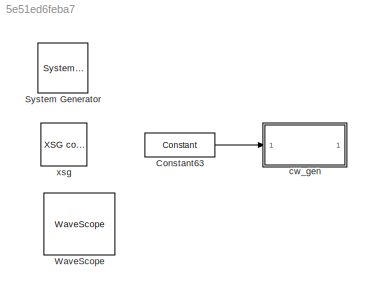
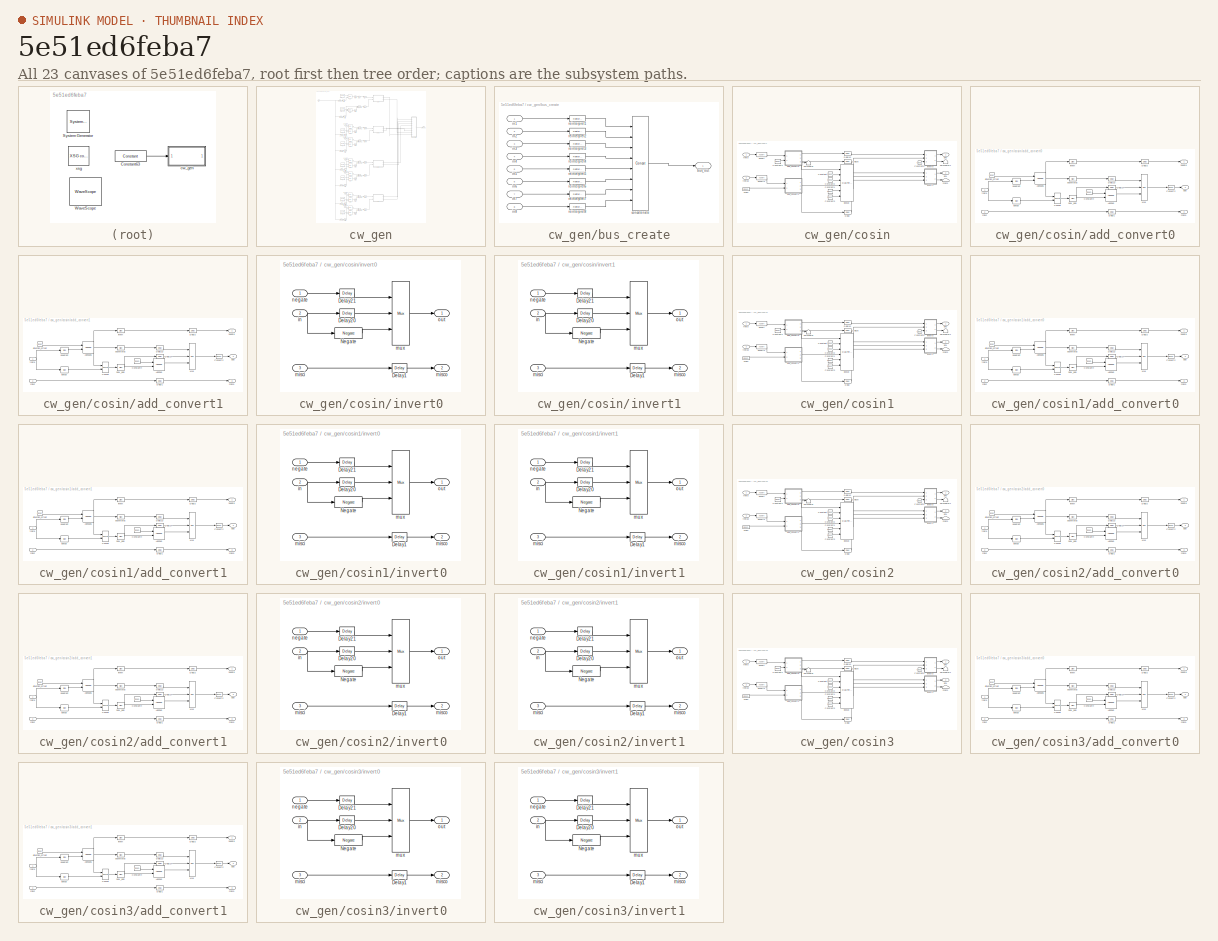
[diagram: thumbnail index - all 23 canvases of the model, root first then tree order]
MODEL slx_5e51ed6feba7
KIND model
BLOCK [Reference]  System Generator  REF=xbsIndex_r4/ System Generator
  AttributesFormatString = System\nGenerator
  Impl_file = ISE Defaults
  Ports = []
  SourceBlock = xbsIndex_r4/ System Generator
  SourceType = Xilinx System Generator Block
  Synth_file = XST Defaults
  Tag = genX
  UserDataPersistent = on
  block_type = sysgen
  clock_wrapper = Clock Enables
  core_generation = According to Block Masks
  dbl_ovrd = According to Block Masks
  dcm_input_clock_period = 100
  deprecated_control = off
  directory = ./r2_deng_tvg/sysgen
  eval_field = 0
  has_advanced_control = 0
  incr_netlist = off
  infoedit = System Generator
  package = ff1759
  part = xc6vsx475t
  proj_type = Project Navigator
  run_coregen = off
  sg_icon_stat = 50,50,0,0,token,white,0,58c5b5770fe5f7c311f53dbc6e73f0f6,right,,[ ],[ ]
  sg_mask_display = fprintf('','COMMENT: begin icon graphics');\npatch([0 50 50 0 0 ],[0 0 50 50 0 ],[1 1 1 ]);\npatch([1.6375 16.81 27.31 37.81 48.31 27.31 12.1375 1.6375 ],[36.655 36.655 47.155 36.655 47.155 47.155 47.155 36.655 ],[0.933333 0.203922 0.141176 ]);\npatch([12.1375 27.31 16.81 1.6375 12.1375 ],[26.155 26.155 36.655 36.655 26.155 ],[0.698039 0.0313725 0.219608 ]);\npatch([1.6375 16.81 27.31 12.1375 1.6375 ]...<+327ch>
  sggui_pos = 326,241,464,470
  simulink_period = 1
  speed = -1
  synthesis_tool = XST
  sysclk_period = 4.6729
  testbench = off
  trim_vbits = Everywhere in SubSystem
  xilinxfamily = virtex6
BLOCK [Reference] Constant63  REF=xbsIndex_r4/Constant
  Ports = [0, 1]
  SourceBlock = xbsIndex_r4/Constant
  SourceType = Xilinx Constant Block Block
  arith_type = Unsigned
  bin_pt = 0
  block_type = constant
  block_version = 10.1.3
  carry = CIN
  const = 2^29+100
  dbl_ovrd = off
  dsp48_infoedit = The use of this block for DSP48 instructions is deprecated.  Please use the Opmode block.
  equ = P=C
  exp_width = 8
  explicit_period = on
  frac_width = 24
  gui_display_data_type = Fixed-point
  has_advanced_control = 0
  inp1 = P
  inp2 = PCIN>>17
  n_bits = 32
  opr = +
  opselect = C
  period = 1
  preci_type = Single
  sg_icon_stat = 70,24,0,1,white,blue,0,d91d25b8,right,,[ ],[ ]
  sg_mask_display = fprintf('','COMMENT: begin icon graphics');\npatch([0 70 70 0 0 ],[0 0 24 24 0 ],[0.77 0.82 0.91 ]);\nplot([0 70 70 0 0 ],[0 0 24 24 0 ]);\npatch([28.325 32.66 35.66 38.66 41.66 35.66 31.325 28.325 ],[15.33 15.33 18.33 15.33 18.33 18.33 18.33 15.33 ],[1 1 1 ]);\npatch([31.325 35.66 32.66 28.325 31.325 ],[12.33 12.33 15.33 15.33 12.33 ],[0.931 0.946 0.973 ]);\npatch([28.325 32.66 35.66 31.325 28.325 ],[...<+325ch>
  sggui_pos = 1325,454,400,491
BLOCK [Reference] WaveScope  REF=xbsIndex_r4/WaveScope
  Ports = []
  SourceBlock = xbsIndex_r4/WaveScope
  SourceType = Xilinx WaveScope Block
  UserDataPersistent = on
  block_type = wavescope
  has_advanced_control = 0
  infoedit = WaveScope
  sg_icon_stat = 71,62,-1,-1,blue,white,0,07734,right,,[ ],[ ]
  sg_mask_display = fprintf('','COMMENT: begin icon graphics');\npatch([0 71 71 0 0 ],[0 0 62 62 0 ],[1 1 1 ]);\nplot([0 71 71 0 0 ],[0 0 62 62 0 ]);\npatch([17.2 28.76 36.76 44.76 52.76 36.76 25.2 17.2 ],[39.88 39.88 47.88 39.88 47.88 47.88 47.88 39.88 ],[0.839 0.874 0.937 ]);\npatch([25.2 36.76 28.76 17.2 25.2 ],[31.88 31.88 39.88 39.88 31.88 ],[0.77 0.82 0.91 ]);\npatch([17.2 28.76 36.76 25.2 17.2 ],[23.88 23.88 31.88 ...<+536ch>
  sggui_pos = -1,-1,-1,-1
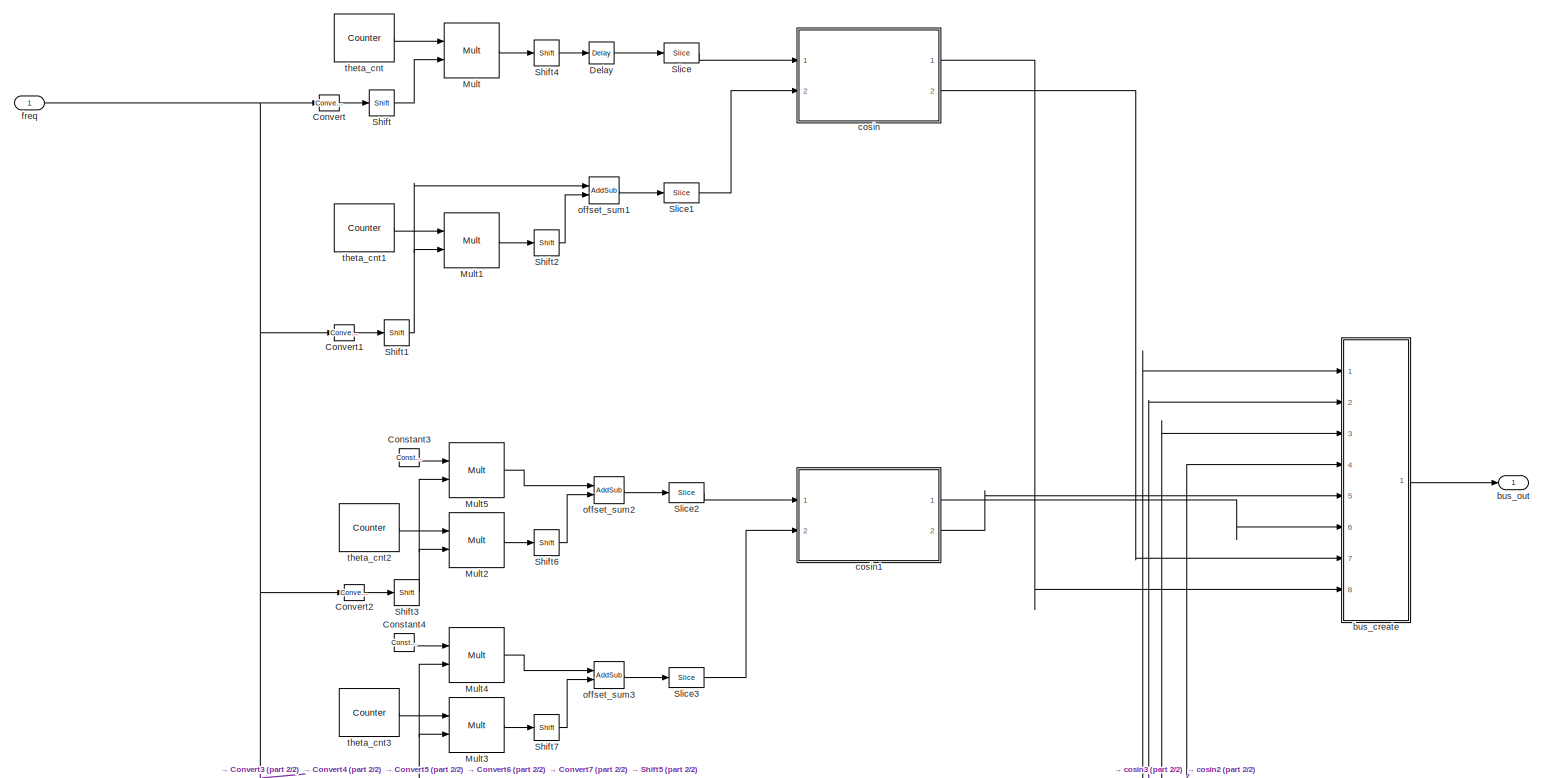
[diagram: cw_gen - part 1/2, full width, top band]
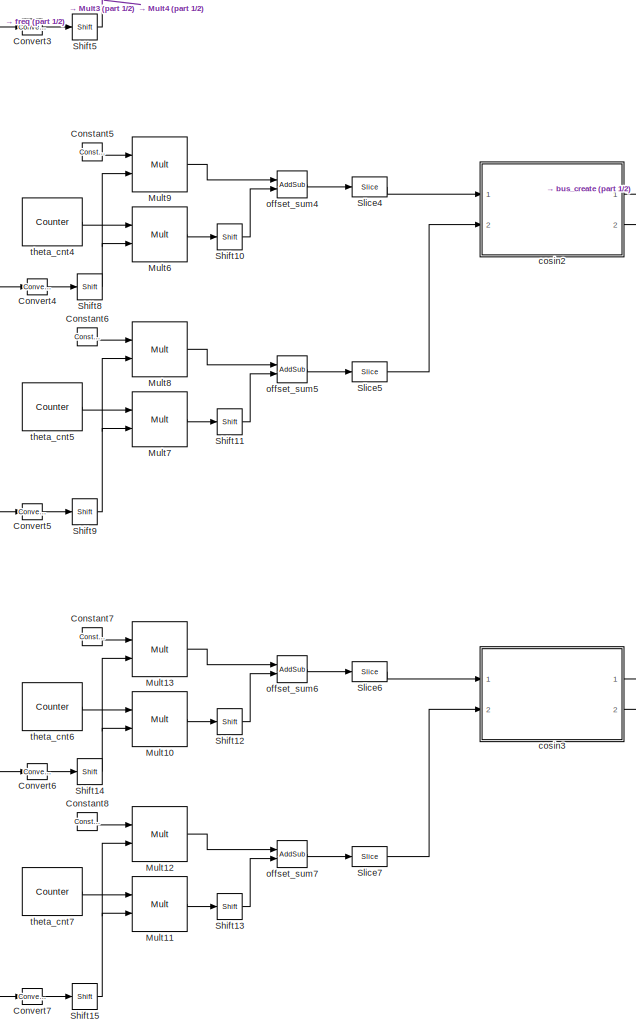
[diagram: cw_gen - part 2/2, bottom center region]
BLOCK [SubSystem] cw_gen
  FunctionWithSeparateData = off
  MaskHideContents = off
  MinAlgLoopOccurrences = off
  Opaque = off
  Ports = [1, 1]
  PropExecContextOutsideSubsystem = off
  RTWSystemCode = Auto
  RequestExecContextInheritance = off
BLOCK [Reference] cw_gen/Constant3  REF=xbsIndex_r4/Constant
  Ports = [0, 1]
  SourceBlock = xbsIndex_r4/Constant
  SourceType = Xilinx Constant Block Block
  arith_type = Unsigned
  bin_pt = 0
  block_type = constant
  block_version = 10.1.3
  carry = CIN
  const = 2
  dbl_ovrd = off
  dsp48_infoedit = The use of this block for DSP48 instructions is deprecated.  Please use the Opmode block.
  equ = P=C
  exp_width = 8
  explicit_period = on
  frac_width = 24
  gui_display_data_type = Fixed-point
  has_advanced_control = 0
  inp1 = P
  inp2 = PCIN>>17
  n_bits = 4
  opr = +
  opselect = C
  period = 1
  preci_type = Single
  sg_icon_stat = 20,18,0,1,white,blue,0,fca86624,right,,[ ],[ ]
  sg_mask_display = fprintf('','COMMENT: begin icon graphics');\npatch([0 20 20 0 0 ],[0 0 18 18 0 ],[0.77 0.82 0.91 ]);\nplot([0 20 20 0 0 ],[0 0 18 18 0 ]);\npatch([5.55 8.44 10.44 12.44 14.44 10.44 7.55 5.55 ],[11.22 11.22 13.22 11.22 13.22 13.22 13.22 11.22 ],[1 1 1 ]);\npatch([7.55 10.44 8.44 5.55 7.55 ],[9.22 9.22 11.22 11.22 9.22 ],[0.931 0.946 0.973 ]);\npatch([5.55 8.44 10.44 7.55 5.55 ],[7.22 7.22 9.22 9.22 7.22...<+284ch>  <repeated x6 — deduplicated; at blocks: Constant3, Constant4, Constant5, Constant6, Constant7, Constant8>
  sggui_pos = 55,14,400,491
BLOCK [Reference] cw_gen/Constant4  REF=xbsIndex_r4/Constant
  Ports = [0, 1]
  SourceBlock = xbsIndex_r4/Constant
  SourceType = Xilinx Constant Block Block
  arith_type = Unsigned
  bin_pt = 0
  block_type = constant
  block_version = 10.1.3
  carry = CIN
  const = 3
  dbl_ovrd = off
  dsp48_infoedit = The use of this block for DSP48 instructions is deprecated.  Please use the Opmode block.
  equ = P=C
  exp_width = 8
  explicit_period = on
  frac_width = 24
  gui_display_data_type = Fixed-point
  has_advanced_control = 0
  inp1 = P
  inp2 = PCIN>>17
  n_bits = 4
  opr = +
  opselect = C
  period = 1
  preci_type = Single
  sg_icon_stat = 20,18,0,1,white,blue,0,279a71c8,right,,[ ],[ ]
  sggui_pos = 55,14,400,491
BLOCK [Reference] cw_gen/Constant5  REF=xbsIndex_r4/Constant
  Ports = [0, 1]
  SourceBlock = xbsIndex_r4/Constant
  SourceType = Xilinx Constant Block Block
  arith_type = Unsigned
  bin_pt = 0
  block_type = constant
  block_version = 10.1.3
  carry = CIN
  const = 4
  dbl_ovrd = off
  dsp48_infoedit = The use of this block for DSP48 instructions is deprecated.  Please use the Opmode block.
  equ = P=C
  exp_width = 8
  explicit_period = on
  frac_width = 24
  gui_display_data_type = Fixed-point
  has_advanced_control = 0
  inp1 = P
  inp2 = PCIN>>17
  n_bits = 4
  opr = +
  opselect = C
  period = 1
  preci_type = Single
  sg_icon_stat = 20,18,0,1,white,blue,0,85f36853,right,,[ ],[ ]
  sggui_pos = 55,14,400,491
BLOCK [Reference] cw_gen/Constant6  REF=xbsIndex_r4/Constant
  Ports = [0, 1]
  SourceBlock = xbsIndex_r4/Constant
  SourceType = Xilinx Constant Block Block
  arith_type = Unsigned
  bin_pt = 0
  block_type = constant
  block_version = 10.1.3
  carry = CIN
  const = 5
  dbl_ovrd = off
  dsp48_infoedit = The use of this block for DSP48 instructions is deprecated.  Please use the Opmode block.
  equ = P=C
  exp_width = 8
  explicit_period = on
  frac_width = 24
  gui_display_data_type = Fixed-point
  has_advanced_control = 0
  inp1 = P
  inp2 = PCIN>>17
  n_bits = 4
  opr = +
  opselect = C
  period = 1
  preci_type = Single
  sg_icon_stat = 20,18,0,1,white,blue,0,98872051,right,,[ ],[ ]
  sggui_pos = 55,14,400,491
BLOCK [Reference] cw_gen/Constant7  REF=xbsIndex_r4/Constant
  Ports = [0, 1]
  SourceBlock = xbsIndex_r4/Constant
  SourceType = Xilinx Constant Block Block
  arith_type = Unsigned
  bin_pt = 0
  block_type = constant
  block_version = 10.1.3
  carry = CIN
  const = 6
  dbl_ovrd = off
  dsp48_infoedit = The use of this block for DSP48 instructions is deprecated.  Please use the Opmode block.
  equ = P=C
  exp_width = 8
  explicit_period = on
  frac_width = 24
  gui_display_data_type = Fixed-point
  has_advanced_control = 0
  inp1 = P
  inp2 = PCIN>>17
  n_bits = 4
  opr = +
  opselect = C
  period = 1
  preci_type = Single
  sg_icon_stat = 20,18,0,1,white,blue,0,f0403ad7,right,,[ ],[ ]
  sggui_pos = 55,14,400,491
BLOCK [Reference] cw_gen/Constant8  REF=xbsIndex_r4/Constant
  Ports = [0, 1]
  SourceBlock = xbsIndex_r4/Constant
  SourceType = Xilinx Constant Block Block
  arith_type = Unsigned
  bin_pt = 0
  block_type = constant
  block_version = 10.1.3
  carry = CIN
  const = 7
  dbl_ovrd = off
  dsp48_infoedit = The use of this block for DSP48 instructions is deprecated.  Please use the Opmode block.
  equ = P=C
  exp_width = 8
  explicit_period = on
  frac_width = 24
  gui_display_data_type = Fixed-point
  has_advanced_control = 0
  inp1 = P
  inp2 = PCIN>>17
  n_bits = 4
  opr = +
  opselect = C
  period = 1
  preci_type = Single
  sg_icon_stat = 20,18,0,1,white,blue,0,2a6960a5,right,,[ ],[ ]
  sggui_pos = 55,14,400,491
BLOCK [Reference] cw_gen/Convert  REF=xbsIndex_r4/Convert
  Ports = [1, 1]
  SourceBlock = xbsIndex_r4/Convert
  SourceType = Xilinx Type Converter Block
  arith_type = Unsigned
  bin_pt = 0
  block_type = convert
  dbl_ovrd = off
  en = off
  exp_bits = 8
  float_type = Single
  fraction_bits = 24
  gui_display_data_type = Fixed-point
  has_advanced_control = 0
  infoedit = Hardware notes: rounding and saturating require hardware resources; truncating and wrapping do not.
  latency = 0
  n_bits = 48
  overflow = Wrap
  pipeline = off
  quantization = Truncate
  sg_icon_stat = 20,16,1,1,white,blue,0,edca21da,right,,[ ],[ ]
  sg_mask_display = fprintf('','COMMENT: begin icon graphics');\npatch([0 20 20 0 0 ],[0 0 16 16 0 ],[0.77 0.82 0.91 ]);\nplot([0 20 20 0 0 ],[0 0 16 16 0 ]);\npatch([5.55 8.44 10.44 12.44 14.44 10.44 7.55 5.55 ],[10.22 10.22 12.22 10.22 12.22 12.22 12.22 10.22 ],[1 1 1 ]);\npatch([7.55 10.44 8.44 5.55 7.55 ],[8.22 8.22 10.22 10.22 8.22 ],[0.931 0.946 0.973 ]);\npatch([5.55 8.44 10.44 7.55 5.55 ],[6.22 6.22 8.22 8.22 6.22...<+288ch>  <repeated x8 — deduplicated; at blocks: Convert, Convert1, Convert2, Convert3, Convert4, Convert5, Convert6, Convert7>
  sggui_pos = 55,14,524,624
  xl_area = [0,0,0,0,0,0,0]
  xl_use_area = off
BLOCK [Reference] cw_gen/Convert1  REF=xbsIndex_r4/Convert
  Ports = [1, 1]
  SourceBlock = xbsIndex_r4/Convert
  SourceType = Xilinx Type Converter Block
  arith_type = Unsigned
  bin_pt = 0
  block_type = convert
  dbl_ovrd = off
  en = off
  exp_bits = 8
  float_type = Single
  fraction_bits = 24
  gui_display_data_type = Fixed-point
  has_advanced_control = 0
  infoedit = Hardware notes: rounding and saturating require hardware resources; truncating and wrapping do not.
  latency = 0
  n_bits = 48
  overflow = Wrap
  pipeline = off
  quantization = Truncate
  sg_icon_stat = 20,16,1,1,white,blue,0,edca21da,right,,[ ],[ ]
  sggui_pos = 55,14,524,624
  xl_area = [0,0,0,0,0,0,0]
  xl_use_area = off
BLOCK [Reference] cw_gen/Convert2  REF=xbsIndex_r4/Convert
  Ports = [1, 1]
  SourceBlock = xbsIndex_r4/Convert
  SourceType = Xilinx Type Converter Block
  arith_type = Unsigned
  bin_pt = 0
  block_type = convert
  dbl_ovrd = off
  en = off
  exp_bits = 8
  float_type = Single
  fraction_bits = 24
  gui_display_data_type = Fixed-point
  has_advanced_control = 0
  infoedit = Hardware notes: rounding and saturating require hardware resources; truncating and wrapping do not.
  latency = 0
  n_bits = 48
  overflow = Wrap
  pipeline = off
  quantization = Truncate
  sg_icon_stat = 20,16,1,1,white,blue,0,edca21da,right,,[ ],[ ]
  sggui_pos = 55,14,524,624
  xl_area = [0,0,0,0,0,0,0]
  xl_use_area = off
BLOCK [Reference] cw_gen/Convert3  REF=xbsIndex_r4/Convert
  Ports = [1, 1]
  SourceBlock = xbsIndex_r4/Convert
  SourceType = Xilinx Type Converter Block
  arith_type = Unsigned
  bin_pt = 0
  block_type = convert
  dbl_ovrd = off
  en = off
  exp_bits = 8
  float_type = Single
  fraction_bits = 24
  gui_display_data_type = Fixed-point
  has_advanced_control = 0
  infoedit = Hardware notes: rounding and saturating require hardware resources; truncating and wrapping do not.
  latency = 0
  n_bits = 48
  overflow = Wrap
  pipeline = off
  quantization = Truncate
  sg_icon_stat = 20,16,1,1,white,blue,0,edca21da,right,,[ ],[ ]
  sggui_pos = 55,14,524,624
  xl_area = [0,0,0,0,0,0,0]
  xl_use_area = off
BLOCK [Reference] cw_gen/Convert4  REF=xbsIndex_r4/Convert
  Ports = [1, 1]
  SourceBlock = xbsIndex_r4/Convert
  SourceType = Xilinx Type Converter Block
  arith_type = Unsigned
  bin_pt = 0
  block_type = convert
  dbl_ovrd = off
  en = off
  exp_bits = 8
  float_type = Single
  fraction_bits = 24
  gui_display_data_type = Fixed-point
  has_advanced_control = 0
  infoedit = Hardware notes: rounding and saturating require hardware resources; truncating and wrapping do not.
  latency = 0
  n_bits = 48
  overflow = Wrap
  pipeline = off
  quantization = Truncate
  sg_icon_stat = 20,16,1,1,white,blue,0,edca21da,right,,[ ],[ ]
  sggui_pos = 55,14,524,624
  xl_area = [0,0,0,0,0,0,0]
  xl_use_area = off
BLOCK [Reference] cw_gen/Convert5  REF=xbsIndex_r4/Convert
  Ports = [1, 1]
  SourceBlock = xbsIndex_r4/Convert
  SourceType = Xilinx Type Converter Block
  arith_type = Unsigned
  bin_pt = 0
  block_type = convert
  dbl_ovrd = off
  en = off
  exp_bits = 8
  float_type = Single
  fraction_bits = 24
  gui_display_data_type = Fixed-point
  has_advanced_control = 0
  infoedit = Hardware notes: rounding and saturating require hardware resources; truncating and wrapping do not.
  latency = 0
  n_bits = 48
  overflow = Wrap
  pipeline = off
  quantization = Truncate
  sg_icon_stat = 20,16,1,1,white,blue,0,edca21da,right,,[ ],[ ]
  sggui_pos = 55,14,524,624
  xl_area = [0,0,0,0,0,0,0]
  xl_use_area = off
BLOCK [Reference] cw_gen/Convert6  REF=xbsIndex_r4/Convert
  Ports = [1, 1]
  SourceBlock = xbsIndex_r4/Convert
  SourceType = Xilinx Type Converter Block
  arith_type = Unsigned
  bin_pt = 0
  block_type = convert
  dbl_ovrd = off
  en = off
  exp_bits = 8
  float_type = Single
  fraction_bits = 24
  gui_display_data_type = Fixed-point
  has_advanced_control = 0
  infoedit = Hardware notes: rounding and saturating require hardware resources; truncating and wrapping do not.
  latency = 0
  n_bits = 48
  overflow = Wrap
  pipeline = off
  quantization = Truncate
  sg_icon_stat = 20,16,1,1,white,blue,0,edca21da,right,,[ ],[ ]
  sggui_pos = 55,14,524,624
  xl_area = [0,0,0,0,0,0,0]
  xl_use_area = off
BLOCK [Reference] cw_gen/Convert7  REF=xbsIndex_r4/Convert
  Ports = [1, 1]
  SourceBlock = xbsIndex_r4/Convert
  SourceType = Xilinx Type Converter Block
  arith_type = Unsigned
  bin_pt = 0
  block_type = convert
  dbl_ovrd = off
  en = off
  exp_bits = 8
  float_type = Single
  fraction_bits = 24
  gui_display_data_type = Fixed-point
  has_advanced_control = 0
  infoedit = Hardware notes: rounding and saturating require hardware resources; truncating and wrapping do not.
  latency = 0
  n_bits = 48
  overflow = Wrap
  pipeline = off
  quantization = Truncate
  sg_icon_stat = 20,16,1,1,white,blue,0,edca21da,right,,[ ],[ ]
  sggui_pos = 55,14,524,624
  xl_area = [0,0,0,0,0,0,0]
  xl_use_area = off
BLOCK [Reference] cw_gen/Delay  REF=xbsIndex_r4/Delay
  Ports = [1, 1]
  SourceBlock = xbsIndex_r4/Delay
  SourceType = Xilinx Delay Block
  block_type = delay
  dbl_ovrd = off
  en = off
  has_advanced_control = 0
  infoedit = Hardware notes: A delay line is a chain, each link of which is an SRL16 followed by a flip-flop.
  infoeditControl = Selection of Reset will increase slice count due to use of real FFs and instead of SRLs
  latency = 4
  reg_retiming = off
  rst = off
  sg_icon_stat = 25,22,1,1,white,blue,0,d390c2d8,right,,[ ],[ ]
  sg_mask_display = fprintf('','COMMENT: begin icon graphics');\npatch([0 25 25 0 0 ],[0 0 22 22 0 ],[0.77 0.82 0.91 ]);\nplot([0 25 25 0 0 ],[0 0 22 22 0 ]);\npatch([5.325 9.66 12.66 15.66 18.66 12.66 8.325 5.325 ],[14.33 14.33 17.33 14.33 17.33 17.33 17.33 14.33 ],[1 1 1 ]);\npatch([8.325 12.66 9.66 5.325 8.325 ],[11.33 11.33 14.33 14.33 11.33 ],[0.931 0.946 0.973 ]);\npatch([5.325 9.66 12.66 8.325 5.325 ],[8.33 8.33 11...<+306ch>
  sggui_pos = 55,14,416,361
  xl_area = [0,0,0,0,0,0,0]
  xl_use_area = off
BLOCK [Reference] cw_gen/Mult  REF=xbsIndex_r4/Mult
  Ports = [2, 1]
  SourceBlock = xbsIndex_r4/Mult
  SourceType = Xilinx Multiplier Block
  arith_type = Unsigned
  bin_pt = 0
  block_type = mult
  dbl_ovrd = off
  en = off
  has_advanced_control = 0
  infoedit = Hardware notes: To check for the optimum internal pipeline stages of the dedicated multiplier you must select 'Test for optimum pipelining'.<br><br>Optimization Goal: For implementation into device fabric (LUTs), the Speed or Area optimization will take effect only if it's supported by IP for the particular device family. Otherwise, the results will be identical regardless of the selection.  <repeated x14 — deduplicated; at blocks: Mult, Mult1, Mult10, Mult11, Mult12, Mult13, Mult2, Mult3, Mult4, Mult5, Mult6, Mult7, Mult8, Mult9>
  latency = 7
  n_bits = 48
  opt = Speed
  optimum_pipeline = off
  overflow = Wrap
  pipeline = on
  placement_style = Triangular
  precision = User Defined
  quantization = Truncate
  sg_icon_stat = 55,55,2,1,white,blue,0,553c6386,right,,[ ],[ ]
  sg_mask_display = fprintf('','COMMENT: begin icon graphics');\npatch([0 55 55 0 0 ],[0 0 55 55 0 ],[0.77 0.82 0.91 ]);\nplot([0 55 55 0 0 ],[0 0 55 55 0 ]);\npatch([11.425 21.54 28.54 35.54 42.54 28.54 18.425 11.425 ],[34.77 34.77 41.77 34.77 41.77 41.77 41.77 34.77 ],[1 1 1 ]);\npatch([18.425 28.54 21.54 11.425 18.425 ],[27.77 27.77 34.77 34.77 27.77 ],[0.931 0.946 0.973 ]);\npatch([11.425 21.54 28.54 18.425 11.425 ],[...<+522ch>  <repeated x14 — deduplicated; at blocks: Mult, Mult1, Mult10, Mult11, Mult12, Mult13, Mult2, Mult3, Mult4, Mult5, Mult6, Mult7, Mult8, Mult9>
  sggui_pos = 55,14,416,660
  use_behavioral_HDL = off
  use_embedded = on
  use_rpm = on
  xl_area = [0,0,0,0,0,0,0]
  xl_use_area = off
BLOCK [Reference] cw_gen/Mult1  REF=xbsIndex_r4/Mult
  Ports = [2, 1]
  SourceBlock = xbsIndex_r4/Mult
  SourceType = Xilinx Multiplier Block
  arith_type = Unsigned
  bin_pt = 0
  block_type = mult
  dbl_ovrd = off
  en = off
  has_advanced_control = 0
  latency = 7
  n_bits = 48
  opt = Speed
  optimum_pipeline = off
  overflow = Wrap
  pipeline = on
  placement_style = Triangular
  precision = User Defined
  quantization = Truncate
  sg_icon_stat = 55,55,2,1,white,blue,0,553c6386,right,,[ ],[ ]
  sggui_pos = 55,14,416,660
  use_behavioral_HDL = off
  use_embedded = on
  use_rpm = on
  xl_area = [0,0,0,0,0,0,0]
  xl_use_area = off
BLOCK [Reference] cw_gen/Mult10  REF=xbsIndex_r4/Mult
  Ports = [2, 1]
  SourceBlock = xbsIndex_r4/Mult
  SourceType = Xilinx Multiplier Block
  arith_type = Unsigned
  bin_pt = 0
  block_type = mult
  dbl_ovrd = off
  en = off
  has_advanced_control = 0
  latency = 7
  n_bits = 48
  opt = Speed
  optimum_pipeline = off
  overflow = Wrap
  pipeline = on
  placement_style = Triangular
  precision = User Defined
  quantization = Truncate
  sg_icon_stat = 55,55,2,1,white,blue,0,553c6386,right,,[ ],[ ]
  sggui_pos = 55,14,416,660
  use_behavioral_HDL = off
  use_embedded = on
  use_rpm = on
  xl_area = [0,0,0,0,0,0,0]
  xl_use_area = off
BLOCK [Reference] cw_gen/Mult11  REF=xbsIndex_r4/Mult
  Ports = [2, 1]
  SourceBlock = xbsIndex_r4/Mult
  SourceType = Xilinx Multiplier Block
  arith_type = Unsigned
  bin_pt = 0
  block_type = mult
  dbl_ovrd = off
  en = off
  has_advanced_control = 0
  latency = 7
  n_bits = 48
  opt = Speed
  optimum_pipeline = off
  overflow = Wrap
  pipeline = on
  placement_style = Triangular
  precision = User Defined
  quantization = Truncate
  sg_icon_stat = 55,55,2,1,white,blue,0,553c6386,right,,[ ],[ ]
  sggui_pos = 55,14,416,660
  use_behavioral_HDL = off
  use_embedded = on
  use_rpm = on
  xl_area = [0,0,0,0,0,0,0]
  xl_use_area = off
BLOCK [Reference] cw_gen/Mult12  REF=xbsIndex_r4/Mult
  Ports = [2, 1]
  SourceBlock = xbsIndex_r4/Mult
  SourceType = Xilinx Multiplier Block
  arith_type = Unsigned
  bin_pt = 0
  block_type = mult
  dbl_ovrd = off
  en = off
  has_advanced_control = 0
  latency = 7
  n_bits = 48
  opt = Speed
  optimum_pipeline = off
  overflow = Wrap
  pipeline = on
  placement_style = Triangular
  precision = User Defined
  quantization = Truncate
  sg_icon_stat = 55,55,2,1,white,blue,0,553c6386,right,,[ ],[ ]
  sggui_pos = 55,14,416,660
  use_behavioral_HDL = off
  use_embedded = on
  use_rpm = on
  xl_area = [0,0,0,0,0,0,0]
  xl_use_area = off
BLOCK [Reference] cw_gen/Mult13  REF=xbsIndex_r4/Mult
  Ports = [2, 1]
  SourceBlock = xbsIndex_r4/Mult
  SourceType = Xilinx Multiplier Block
  arith_type = Unsigned
  bin_pt = 0
  block_type = mult
  dbl_ovrd = off
  en = off
  has_advanced_control = 0
  latency = 7
  n_bits = 48
  opt = Speed
  optimum_pipeline = off
  overflow = Wrap
  pipeline = on
  placement_style = Triangular
  precision = User Defined
  quantization = Truncate
  sg_icon_stat = 55,55,2,1,white,blue,0,553c6386,right,,[ ],[ ]
  sggui_pos = 55,14,416,660
  use_behavioral_HDL = off
  use_embedded = on
  use_rpm = on
  xl_area = [0,0,0,0,0,0,0]
  xl_use_area = off
BLOCK [Reference] cw_gen/Mult2  REF=xbsIndex_r4/Mult
  Ports = [2, 1]
  SourceBlock = xbsIndex_r4/Mult
  SourceType = Xilinx Multiplier Block
  arith_type = Unsigned
  bin_pt = 0
  block_type = mult
  dbl_ovrd = off
  en = off
  has_advanced_control = 0
  latency = 7
  n_bits = 48
  opt = Speed
  optimum_pipeline = off
  overflow = Wrap
  pipeline = on
  placement_style = Triangular
  precision = User Defined
  quantization = Truncate
  sg_icon_stat = 55,55,2,1,white,blue,0,553c6386,right,,[ ],[ ]
  sggui_pos = 55,14,416,660
  use_behavioral_HDL = off
  use_embedded = on
  use_rpm = on
  xl_area = [0,0,0,0,0,0,0]
  xl_use_area = off
BLOCK [Reference] cw_gen/Mult3  REF=xbsIndex_r4/Mult
  Ports = [2, 1]
  SourceBlock = xbsIndex_r4/Mult
  SourceType = Xilinx Multiplier Block
  arith_type = Unsigned
  bin_pt = 0
  block_type = mult
  dbl_ovrd = off
  en = off
  has_advanced_control = 0
  latency = 7
  n_bits = 48
  opt = Speed
  optimum_pipeline = off
  overflow = Wrap
  pipeline = on
  placement_style = Triangular
  precision = User Defined
  quantization = Truncate
  sg_icon_stat = 55,55,2,1,white,blue,0,553c6386,right,,[ ],[ ]
  sggui_pos = 55,14,416,660
  use_behavioral_HDL = off
  use_embedded = on
  use_rpm = on
  xl_area = [0,0,0,0,0,0,0]
  xl_use_area = off
BLOCK [Reference] cw_gen/Mult4  REF=xbsIndex_r4/Mult
  Ports = [2, 1]
  SourceBlock = xbsIndex_r4/Mult
  SourceType = Xilinx Multiplier Block
  arith_type = Unsigned
  bin_pt = 0
  block_type = mult
  dbl_ovrd = off
  en = off
  has_advanced_control = 0
  latency = 7
  n_bits = 48
  opt = Speed
  optimum_pipeline = off
  overflow = Wrap
  pipeline = on
  placement_style = Triangular
  precision = User Defined
  quantization = Truncate
  sg_icon_stat = 55,55,2,1,white,blue,0,553c6386,right,,[ ],[ ]
  sggui_pos = 55,14,416,660
  use_behavioral_HDL = off
  use_embedded = on
  use_rpm = on
  xl_area = [0,0,0,0,0,0,0]
  xl_use_area = off
BLOCK [Reference] cw_gen/Mult5  REF=xbsIndex_r4/Mult
  Ports = [2, 1]
  SourceBlock = xbsIndex_r4/Mult
  SourceType = Xilinx Multiplier Block
  arith_type = Unsigned
  bin_pt = 0
  block_type = mult
  dbl_ovrd = off
  en = off
  has_advanced_control = 0
  latency = 7
  n_bits = 48
  opt = Speed
  optimum_pipeline = off
  overflow = Wrap
  pipeline = on
  placement_style = Triangular
  precision = User Defined
  quantization = Truncate
  sg_icon_stat = 55,55,2,1,white,blue,0,553c6386,right,,[ ],[ ]
  sggui_pos = 55,14,416,660
  use_behavioral_HDL = off
  use_embedded = on
  use_rpm = on
  xl_area = [0,0,0,0,0,0,0]
  xl_use_area = off
BLOCK [Reference] cw_gen/Mult6  REF=xbsIndex_r4/Mult
  Ports = [2, 1]
  SourceBlock = xbsIndex_r4/Mult
  SourceType = Xilinx Multiplier Block
  arith_type = Unsigned
  bin_pt = 0
  block_type = mult
  dbl_ovrd = off
  en = off
  has_advanced_control = 0
  latency = 7
  n_bits = 48
  opt = Speed
  optimum_pipeline = off
  overflow = Wrap
  pipeline = on
  placement_style = Triangular
  precision = User Defined
  quantization = Truncate
  sg_icon_stat = 55,55,2,1,white,blue,0,553c6386,right,,[ ],[ ]
  sggui_pos = 55,14,416,660
  use_behavioral_HDL = off
  use_embedded = on
  use_rpm = on
  xl_area = [0,0,0,0,0,0,0]
  xl_use_area = off
BLOCK [Reference] cw_gen/Mult7  REF=xbsIndex_r4/Mult
  Ports = [2, 1]
  SourceBlock = xbsIndex_r4/Mult
  SourceType = Xilinx Multiplier Block
  arith_type = Unsigned
  bin_pt = 0
  block_type = mult
  dbl_ovrd = off
  en = off
  has_advanced_control = 0
  latency = 7
  n_bits = 48
  opt = Speed
  optimum_pipeline = off
  overflow = Wrap
  pipeline = on
  placement_style = Triangular
  precision = User Defined
  quantization = Truncate
  sg_icon_stat = 55,55,2,1,white,blue,0,553c6386,right,,[ ],[ ]
  sggui_pos = 55,14,416,660
  use_behavioral_HDL = off
  use_embedded = on
  use_rpm = on
  xl_area = [0,0,0,0,0,0,0]
  xl_use_area = off
BLOCK [Reference] cw_gen/Mult8  REF=xbsIndex_r4/Mult
  Ports = [2, 1]
  SourceBlock = xbsIndex_r4/Mult
  SourceType = Xilinx Multiplier Block
  arith_type = Unsigned
  bin_pt = 0
  block_type = mult
  dbl_ovrd = off
  en = off
  has_advanced_control = 0
  latency = 7
  n_bits = 48
  opt = Speed
  optimum_pipeline = off
  overflow = Wrap
  pipeline = on
  placement_style = Triangular
  precision = User Defined
  quantization = Truncate
  sg_icon_stat = 55,55,2,1,white,blue,0,553c6386,right,,[ ],[ ]
  sggui_pos = 55,14,416,660
  use_behavioral_HDL = off
  use_embedded = on
  use_rpm = on
  xl_area = [0,0,0,0,0,0,0]
  xl_use_area = off
BLOCK [Reference] cw_gen/Mult9  REF=xbsIndex_r4/Mult
  Ports = [2, 1]
  SourceBlock = xbsIndex_r4/Mult
  SourceType = Xilinx Multiplier Block
  arith_type = Unsigned
  bin_pt = 0
  block_type = mult
  dbl_ovrd = off
  en = off
  has_advanced_control = 0
  latency = 7
  n_bits = 48
  opt = Speed
  optimum_pipeline = off
  overflow = Wrap
  pipeline = on
  placement_style = Triangular
  precision = User Defined
  quantization = Truncate
  sg_icon_stat = 55,55,2,1,white,blue,0,553c6386,right,,[ ],[ ]
  sggui_pos = 55,14,416,660
  use_behavioral_HDL = off
  use_embedded = on
  use_rpm = on
  xl_area = [0,0,0,0,0,0,0]
  xl_use_area = off
BLOCK [Reference] cw_gen/Shift  REF=xbsIndex_r4/Shift
  Ports = [1, 1]
  SourceBlock = xbsIndex_r4/Shift
  SourceType = Xilinx Binary Shift Operator Block
  arith_type = Signed  (2's comp)
  bin_pt = 14
  block_type = shift
  dbl_ovrd = off
  en = off
  has_advanced_control = 0
  infoedit = Hardware notes: In hardware this block costs nothing if full output precision is used.
  latency = 0
  n_bits = 16
  overflow = Wrap
  precision = Full
  quantization = Truncate
  sg_icon_stat = 25,26,1,1,white,blue,0,03693c74,right,,[ ],[ ]
  sg_mask_display = fprintf('','COMMENT: begin icon graphics');\npatch([0 25 25 0 0 ],[0 0 26 26 0 ],[0.77 0.82 0.91 ]);\nplot([0 25 25 0 0 ],[0 0 26 26 0 ]);\npatch([5.325 9.66 12.66 15.66 18.66 12.66 8.325 5.325 ],[16.33 16.33 19.33 16.33 19.33 19.33 19.33 16.33 ],[1 1 1 ]);\npatch([8.325 12.66 9.66 5.325 8.325 ],[13.33 13.33 16.33 16.33 13.33 ],[0.931 0.946 0.973 ]);\npatch([5.325 9.66 12.66 8.325 5.325 ],[10.33 10.33 ...<+318ch>  <repeated x8 — deduplicated; at blocks: Shift, Shift1, Shift14, Shift15, Shift3, Shift5, Shift8, Shift9>
  sggui_pos = 55,14,416,422
  shift_bits = 18-1-3
  shift_dir = Left
  xl_area = [0,0,0,0,0,0,0]
  xl_use_area = off
BLOCK [Reference] cw_gen/Shift1  REF=xbsIndex_r4/Shift
  Ports = [1, 1]
  SourceBlock = xbsIndex_r4/Shift
  SourceType = Xilinx Binary Shift Operator Block
  arith_type = Signed  (2's comp)
  bin_pt = 14
  block_type = shift
  dbl_ovrd = off
  en = off
  has_advanced_control = 0
  infoedit = Hardware notes: In hardware this block costs nothing if full output precision is used.
  latency = 0
  n_bits = 16
  overflow = Wrap
  precision = Full
  quantization = Truncate
  sg_icon_stat = 25,26,1,1,white,blue,0,03693c74,right,,[ ],[ ]
  sggui_pos = 55,14,416,422
  shift_bits = 18-1-3
  shift_dir = Left
  xl_area = [0,0,0,0,0,0,0]
  xl_use_area = off
BLOCK [Reference] cw_gen/Shift10  REF=xbsIndex_r4/Shift
  Ports = [1, 1]
  SourceBlock = xbsIndex_r4/Shift
  SourceType = Xilinx Binary Shift Operator Block
  arith_type = Signed  (2's comp)
  bin_pt = 14
  block_type = shift
  dbl_ovrd = off
  en = off
  has_advanced_control = 0
  infoedit = Hardware notes: In hardware this block costs nothing if full output precision is used.
  latency = 0
  n_bits = 16
  overflow = Wrap
  precision = Full
  quantization = Truncate
  sg_icon_stat = 25,26,1,1,white,blue,0,2cc77cbe,right,,[ ],[ ]
  sg_mask_display = fprintf('','COMMENT: begin icon graphics');\npatch([0 25 25 0 0 ],[0 0 26 26 0 ],[0.77 0.82 0.91 ]);\nplot([0 25 25 0 0 ],[0 0 26 26 0 ]);\npatch([5.325 9.66 12.66 15.66 18.66 12.66 8.325 5.325 ],[16.33 16.33 19.33 16.33 19.33 19.33 19.33 16.33 ],[1 1 1 ]);\npatch([8.325 12.66 9.66 5.325 8.325 ],[13.33 13.33 16.33 16.33 13.33 ],[0.931 0.946 0.973 ]);\npatch([5.325 9.66 12.66 8.325 5.325 ],[10.33 10.33 ...<+317ch>  <repeated x8 — deduplicated; at blocks: Shift10, Shift11, Shift12, Shift13, Shift2, Shift4, Shift6, Shift7>
  sggui_pos = 55,14,416,422
  shift_bits = 3
  shift_dir = Left
  xl_area = [0,0,0,0,0,0,0]
  xl_use_area = off
BLOCK [Reference] cw_gen/Shift11  REF=xbsIndex_r4/Shift
  Ports = [1, 1]
  SourceBlock = xbsIndex_r4/Shift
  SourceType = Xilinx Binary Shift Operator Block
  arith_type = Signed  (2's comp)
  bin_pt = 14
  block_type = shift
  dbl_ovrd = off
  en = off
  has_advanced_control = 0
  infoedit = Hardware notes: In hardware this block costs nothing if full output precision is used.
  latency = 0
  n_bits = 16
  overflow = Wrap
  precision = Full
  quantization = Truncate
  sg_icon_stat = 25,26,1,1,white,blue,0,2cc77cbe,right,,[ ],[ ]
  sggui_pos = 55,14,416,422
  shift_bits = 3
  shift_dir = Left
  xl_area = [0,0,0,0,0,0,0]
  xl_use_area = off
BLOCK [Reference] cw_gen/Shift12  REF=xbsIndex_r4/Shift
  Ports = [1, 1]
  SourceBlock = xbsIndex_r4/Shift
  SourceType = Xilinx Binary Shift Operator Block
  arith_type = Signed  (2's comp)
  bin_pt = 14
  block_type = shift
  dbl_ovrd = off
  en = off
  has_advanced_control = 0
  infoedit = Hardware notes: In hardware this block costs nothing if full output precision is used.
  latency = 0
  n_bits = 16
  overflow = Wrap
  precision = Full
  quantization = Truncate
  sg_icon_stat = 25,26,1,1,white,blue,0,2cc77cbe,right,,[ ],[ ]
  sggui_pos = 55,14,416,422
  shift_bits = 3
  shift_dir = Left
  xl_area = [0,0,0,0,0,0,0]
  xl_use_area = off
BLOCK [Reference] cw_gen/Shift13  REF=xbsIndex_r4/Shift
  Ports = [1, 1]
  SourceBlock = xbsIndex_r4/Shift
  SourceType = Xilinx Binary Shift Operator Block
  arith_type = Signed  (2's comp)
  bin_pt = 14
  block_type = shift
  dbl_ovrd = off
  en = off
  has_advanced_control = 0
  infoedit = Hardware notes: In hardware this block costs nothing if full output precision is used.
  latency = 0
  n_bits = 16
  overflow = Wrap
  precision = Full
  quantization = Truncate
  sg_icon_stat = 25,26,1,1,white,blue,0,2cc77cbe,right,,[ ],[ ]
  sggui_pos = 55,14,416,422
  shift_bits = 3
  shift_dir = Left
  xl_area = [0,0,0,0,0,0,0]
  xl_use_area = off
BLOCK [Reference] cw_gen/Shift14  REF=xbsIndex_r4/Shift
  Ports = [1, 1]
  SourceBlock = xbsIndex_r4/Shift
  SourceType = Xilinx Binary Shift Operator Block
  arith_type = Signed  (2's comp)
  bin_pt = 14
  block_type = shift
  dbl_ovrd = off
  en = off
  has_advanced_control = 0
  infoedit = Hardware notes: In hardware this block costs nothing if full output precision is used.
  latency = 0
  n_bits = 16
  overflow = Wrap
  precision = Full
  quantization = Truncate
  sg_icon_stat = 25,26,1,1,white,blue,0,03693c74,right,,[ ],[ ]
  sggui_pos = 55,14,416,422
  shift_bits = 18-1-3
  shift_dir = Left
  xl_area = [0,0,0,0,0,0,0]
  xl_use_area = off
BLOCK [Reference] cw_gen/Shift15  REF=xbsIndex_r4/Shift
  Ports = [1, 1]
  SourceBlock = xbsIndex_r4/Shift
  SourceType = Xilinx Binary Shift Operator Block
  arith_type = Signed  (2's comp)
  bin_pt = 14
  block_type = shift
  dbl_ovrd = off
  en = off
  has_advanced_control = 0
  infoedit = Hardware notes: In hardware this block costs nothing if full output precision is used.
  latency = 0
  n_bits = 16
  overflow = Wrap
  precision = Full
  quantization = Truncate
  sg_icon_stat = 25,26,1,1,white,blue,0,03693c74,right,,[ ],[ ]
  sggui_pos = 55,14,416,422
  shift_bits = 18-1-3
  shift_dir = Left
  xl_area = [0,0,0,0,0,0,0]
  xl_use_area = off
BLOCK [Reference] cw_gen/Shift2  REF=xbsIndex_r4/Shift
  Ports = [1, 1]
  SourceBlock = xbsIndex_r4/Shift
  SourceType = Xilinx Binary Shift Operator Block
  arith_type = Signed  (2's comp)
  bin_pt = 14
  block_type = shift
  dbl_ovrd = off
  en = off
  has_advanced_control = 0
  infoedit = Hardware notes: In hardware this block costs nothing if full output precision is used.
  latency = 0
  n_bits = 16
  overflow = Wrap
  precision = Full
  quantization = Truncate
  sg_icon_stat = 25,26,1,1,white,blue,0,2cc77cbe,right,,[ ],[ ]
  sggui_pos = 55,14,416,422
  shift_bits = 3
  shift_dir = Left
  xl_area = [0,0,0,0,0,0,0]
  xl_use_area = off
BLOCK [Reference] cw_gen/Shift3  REF=xbsIndex_r4/Shift
  Ports = [1, 1]
  SourceBlock = xbsIndex_r4/Shift
  SourceType = Xilinx Binary Shift Operator Block
  arith_type = Signed  (2's comp)
  bin_pt = 14
  block_type = shift
  dbl_ovrd = off
  en = off
  has_advanced_control = 0
  infoedit = Hardware notes: In hardware this block costs nothing if full output precision is used.
  latency = 0
  n_bits = 16
  overflow = Wrap
  precision = Full
  quantization = Truncate
  sg_icon_stat = 25,26,1,1,white,blue,0,03693c74,right,,[ ],[ ]
  sggui_pos = 55,14,416,422
  shift_bits = 18-1-3
  shift_dir = Left
  xl_area = [0,0,0,0,0,0,0]
  xl_use_area = off
BLOCK [Reference] cw_gen/Shift4  REF=xbsIndex_r4/Shift
  Ports = [1, 1]
  SourceBlock = xbsIndex_r4/Shift
  SourceType = Xilinx Binary Shift Operator Block
  arith_type = Signed  (2's comp)
  bin_pt = 14
  block_type = shift
  dbl_ovrd = off
  en = off
  has_advanced_control = 0
  infoedit = Hardware notes: In hardware this block costs nothing if full output precision is used.
  latency = 0
  n_bits = 16
  overflow = Wrap
  precision = Full
  quantization = Truncate
  sg_icon_stat = 25,26,1,1,white,blue,0,2cc77cbe,right,,[ ],[ ]
  sggui_pos = 55,14,416,422
  shift_bits = 3
  shift_dir = Left
  xl_area = [0,0,0,0,0,0,0]
  xl_use_area = off
BLOCK [Reference] cw_gen/Shift5  REF=xbsIndex_r4/Shift
  Ports = [1, 1]
  SourceBlock = xbsIndex_r4/Shift
  SourceType = Xilinx Binary Shift Operator Block
  arith_type = Signed  (2's comp)
  bin_pt = 14
  block_type = shift
  dbl_ovrd = off
  en = off
  has_advanced_control = 0
  infoedit = Hardware notes: In hardware this block costs nothing if full output precision is used.
  latency = 0
  n_bits = 16
  overflow = Wrap
  precision = Full
  quantization = Truncate
  sg_icon_stat = 25,26,1,1,white,blue,0,03693c74,right,,[ ],[ ]
  sggui_pos = 55,14,416,422
  shift_bits = 18-1-3
  shift_dir = Left
  xl_area = [0,0,0,0,0,0,0]
  xl_use_area = off
BLOCK [Reference] cw_gen/Shift6  REF=xbsIndex_r4/Shift
  Ports = [1, 1]
  SourceBlock = xbsIndex_r4/Shift
  SourceType = Xilinx Binary Shift Operator Block
  arith_type = Signed  (2's comp)
  bin_pt = 14
  block_type = shift
  dbl_ovrd = off
  en = off
  has_advanced_control = 0
  infoedit = Hardware notes: In hardware this block costs nothing if full output precision is used.
  latency = 0
  n_bits = 16
  overflow = Wrap
  precision = Full
  quantization = Truncate
  sg_icon_stat = 25,26,1,1,white,blue,0,2cc77cbe,right,,[ ],[ ]
  sggui_pos = 55,14,416,422
  shift_bits = 3
  shift_dir = Left
  xl_area = [0,0,0,0,0,0,0]
  xl_use_area = off
BLOCK [Reference] cw_gen/Shift7  REF=xbsIndex_r4/Shift
  Ports = [1, 1]
  SourceBlock = xbsIndex_r4/Shift
  SourceType = Xilinx Binary Shift Operator Block
  arith_type = Signed  (2's comp)
  bin_pt = 14
  block_type = shift
  dbl_ovrd = off
  en = off
  has_advanced_control = 0
  infoedit = Hardware notes: In hardware this block costs nothing if full output precision is used.
  latency = 0
  n_bits = 16
  overflow = Wrap
  precision = Full
  quantization = Truncate
  sg_icon_stat = 25,26,1,1,white,blue,0,2cc77cbe,right,,[ ],[ ]
  sggui_pos = 55,14,416,422
  shift_bits = 3
  shift_dir = Left
  xl_area = [0,0,0,0,0,0,0]
  xl_use_area = off
BLOCK [Reference] cw_gen/Shift8  REF=xbsIndex_r4/Shift
  Ports = [1, 1]
  SourceBlock = xbsIndex_r4/Shift
  SourceType = Xilinx Binary Shift Operator Block
  arith_type = Signed  (2's comp)
  bin_pt = 14
  block_type = shift
  dbl_ovrd = off
  en = off
  has_advanced_control = 0
  infoedit = Hardware notes: In hardware this block costs nothing if full output precision is used.
  latency = 0
  n_bits = 16
  overflow = Wrap
  precision = Full
  quantization = Truncate
  sg_icon_stat = 25,26,1,1,white,blue,0,03693c74,right,,[ ],[ ]
  sggui_pos = 55,14,416,422
  shift_bits = 18-1-3
  shift_dir = Left
  xl_area = [0,0,0,0,0,0,0]
  xl_use_area = off
BLOCK [Reference] cw_gen/Shift9  REF=xbsIndex_r4/Shift
  Ports = [1, 1]
  SourceBlock = xbsIndex_r4/Shift
  SourceType = Xilinx Binary Shift Operator Block
  arith_type = Signed  (2's comp)
  bin_pt = 14
  block_type = shift
  dbl_ovrd = off
  en = off
  has_advanced_control = 0
  infoedit = Hardware notes: In hardware this block costs nothing if full output precision is used.
  latency = 0
  n_bits = 16
  overflow = Wrap
  precision = Full
  quantization = Truncate
  sg_icon_stat = 25,26,1,1,white,blue,0,03693c74,right,,[ ],[ ]
  sggui_pos = 55,14,416,422
  shift_bits = 18-1-3
  shift_dir = Left
  xl_area = [0,0,0,0,0,0,0]
  xl_use_area = off
BLOCK [Reference] cw_gen/Slice  REF=xbsIndex_r4/Slice
  Ports = [1, 1]
  SourceBlock = xbsIndex_r4/Slice
  SourceType = Xilinx Bit Slice Extractor Block
  base0 = LSB of Input
  base1 = MSB of Input
  bit0 = 0
  bit1 = 0
  block_type = slice
  boolean_output = off
  dbl_ovrd = off
  has_advanced_control = 0
  infoedit = Extracts a given range of bits from each input sample and presents it at the output.  The output type is ordinarily unsigned with binary point at zero, but can be Boolean when the slice is one bit wide.<br><br>Hardware notes: In hardware this block costs nothing.  <repeated x48 — deduplicated; at blocks: Slice, Slice1, Slice2, Slice3, Slice4, Slice5, Slice6, Slice7, backwards, invert, lookup, new_add, quadrant>
  mode = Upper Bit Location + Width
  nbits = 18
  sg_icon_stat = 35,20,1,1,white,blue,0,1fd851a7,right,,[ ],[ ]
  sg_mask_display = fprintf('','COMMENT: begin icon graphics');\npatch([0 35 35 0 0 ],[0 0 20 20 0 ],[0.77 0.82 0.91 ]);\nplot([0 35 35 0 0 ],[0 0 20 20 0 ]);\npatch([12.55 15.44 17.44 19.44 21.44 17.44 14.55 12.55 ],[12.22 12.22 14.22 12.22 14.22 14.22 14.22 12.22 ],[1 1 1 ]);\npatch([14.55 17.44 15.44 12.55 14.55 ],[10.22 10.22 12.22 12.22 10.22 ],[0.931 0.946 0.973 ]);\npatch([12.55 15.44 17.44 14.55 12.55 ],[8.22 8.22...<+310ch>  <repeated x8 — deduplicated; at blocks: Slice, Slice1, Slice2, Slice3, Slice4, Slice5, Slice6, Slice7>
  sggui_pos = 55,14,543,459
BLOCK [Reference] cw_gen/Slice1  REF=xbsIndex_r4/Slice
  Ports = [1, 1]
  SourceBlock = xbsIndex_r4/Slice
  SourceType = Xilinx Bit Slice Extractor Block
  base0 = LSB of Input
  base1 = MSB of Input
  bit0 = 0
  bit1 = 0
  block_type = slice
  boolean_output = off
  dbl_ovrd = off
  has_advanced_control = 0
  mode = Upper Bit Location + Width
  nbits = 18
  sg_icon_stat = 35,20,1,1,white,blue,0,1fd851a7,right,,[ ],[ ]
  sggui_pos = 55,14,543,459
BLOCK [Reference] cw_gen/Slice2  REF=xbsIndex_r4/Slice
  Ports = [1, 1]
  SourceBlock = xbsIndex_r4/Slice
  SourceType = Xilinx Bit Slice Extractor Block
  base0 = LSB of Input
  base1 = MSB of Input
  bit0 = 0
  bit1 = 0
  block_type = slice
  boolean_output = off
  dbl_ovrd = off
  has_advanced_control = 0
  mode = Upper Bit Location + Width
  nbits = 18
  sg_icon_stat = 35,20,1,1,white,blue,0,1fd851a7,right,,[ ],[ ]
  sggui_pos = 55,14,543,459
BLOCK [Reference] cw_gen/Slice3  REF=xbsIndex_r4/Slice
  Ports = [1, 1]
  SourceBlock = xbsIndex_r4/Slice
  SourceType = Xilinx Bit Slice Extractor Block
  base0 = LSB of Input
  base1 = MSB of Input
  bit0 = 0
  bit1 = 0
  block_type = slice
  boolean_output = off
  dbl_ovrd = off
  has_advanced_control = 0
  mode = Upper Bit Location + Width
  nbits = 18
  sg_icon_stat = 35,20,1,1,white,blue,0,1fd851a7,right,,[ ],[ ]
  sggui_pos = 55,14,543,459
BLOCK [Reference] cw_gen/Slice4  REF=xbsIndex_r4/Slice
  Ports = [1, 1]
  SourceBlock = xbsIndex_r4/Slice
  SourceType = Xilinx Bit Slice Extractor Block
  base0 = LSB of Input
  base1 = MSB of Input
  bit0 = 0
  bit1 = 0
  block_type = slice
  boolean_output = off
  dbl_ovrd = off
  has_advanced_control = 0
  mode = Upper Bit Location + Width
  nbits = 18
  sg_icon_stat = 35,20,1,1,white,blue,0,1fd851a7,right,,[ ],[ ]
  sggui_pos = 55,14,543,459
BLOCK [Reference] cw_gen/Slice5  REF=xbsIndex_r4/Slice
  Ports = [1, 1]
  SourceBlock = xbsIndex_r4/Slice
  SourceType = Xilinx Bit Slice Extractor Block
  base0 = LSB of Input
  base1 = MSB of Input
  bit0 = 0
  bit1 = 0
  block_type = slice
  boolean_output = off
  dbl_ovrd = off
  has_advanced_control = 0
  mode = Upper Bit Location + Width
  nbits = 18
  sg_icon_stat = 35,20,1,1,white,blue,0,1fd851a7,right,,[ ],[ ]
  sggui_pos = 55,14,543,459
BLOCK [Reference] cw_gen/Slice6  REF=xbsIndex_r4/Slice
  Ports = [1, 1]
  SourceBlock = xbsIndex_r4/Slice
  SourceType = Xilinx Bit Slice Extractor Block
  base0 = LSB of Input
  base1 = MSB of Input
  bit0 = 0
  bit1 = 0
  block_type = slice
  boolean_output = off
  dbl_ovrd = off
  has_advanced_control = 0
  mode = Upper Bit Location + Width
  nbits = 18
  sg_icon_stat = 35,20,1,1,white,blue,0,1fd851a7,right,,[ ],[ ]
  sggui_pos = 55,14,543,459
BLOCK [Reference] cw_gen/Slice7  REF=xbsIndex_r4/Slice
  Ports = [1, 1]
  SourceBlock = xbsIndex_r4/Slice
  SourceType = Xilinx Bit Slice Extractor Block
  base0 = LSB of Input
  base1 = MSB of Input
  bit0 = 0
  bit1 = 0
  block_type = slice
  boolean_output = off
  dbl_ovrd = off
  has_advanced_control = 0
  mode = Upper Bit Location + Width
  nbits = 18
  sg_icon_stat = 35,20,1,1,white,blue,0,1fd851a7,right,,[ ],[ ]
  sggui_pos = 55,14,543,459
BLOCK [SubSystem] cw_gen/bus_create
  AncestorBlock = casper_library_flow_control/bus_create
  FunctionWithSeparateData = off
  MaskHideContents = off
  MinAlgLoopOccurrences = off
  Opaque = off
  Ports = [8, 1]
  PropExecContextOutsideSubsystem = off
  RTWSystemCode = Auto
  RequestExecContextInheritance = off
  UserDataPersistent = on
BLOCK [Outport] cw_gen/bus_create/bus_out
  IconDisplay = Port number
BLOCK [Reference] cw_gen/bus_create/concatenate  REF=xbsIndex_r4/Concat
  Ports = [8, 1]
  SourceBlock = xbsIndex_r4/Concat
  SourceType = Xilinx Bus Concatenator Block
  block_type = concat
  block_version = 11.4
  dbl_ovrd = off
  has_advanced_control = 0
  infoedit = Concatenates two or more inputs.  Output will be cast to an unsigned value with the binary point at zero.
  num_inputs = 8
  sg_icon_stat = 50,301,8,1,white,blue,0,6fe74153,right,,[ ],[ ]
  sg_mask_display = fprintf('','COMMENT: begin icon graphics');\npatch([0 50 50 0 0 ],[0 0 301 301 0 ],[0.77 0.82 0.91 ]);\nplot([0 50 50 0 0 ],[0 0 301 301 0 ]);\npatch([9.425 19.54 26.54 33.54 40.54 26.54 16.425 9.425 ],[157.77 157.77 164.77 157.77 164.77 164.77 164.77 157.77 ],[1 1 1 ]);\npatch([16.425 26.54 19.54 9.425 16.425 ],[150.77 150.77 157.77 157.77 150.77 ],[0.931 0.946 0.973 ]);\npatch([9.425 19.54 26.54 16.4...<+455ch>
  sggui_pos = -1,-1,-1,-1
BLOCK [Inport] cw_gen/bus_create/in1
  IconDisplay = Port number
BLOCK [Inport] cw_gen/bus_create/in2
  IconDisplay = Port number
  Port = 2
BLOCK [Inport] cw_gen/bus_create/in3
  IconDisplay = Port number
  Port = 3
BLOCK [Inport] cw_gen/bus_create/in4
  IconDisplay = Port number
  Port = 4
BLOCK [Inport] cw_gen/bus_create/in5
  IconDisplay = Port number
  Port = 5
BLOCK [Inport] cw_gen/bus_create/in6
  IconDisplay = Port number
  Port = 6
BLOCK [Inport] cw_gen/bus_create/in7
  IconDisplay = Port number
  Port = 7
BLOCK [Inport] cw_gen/bus_create/in8
  IconDisplay = Port number
  Port = 8
BLOCK [Reference] cw_gen/bus_create/reinterpret1  REF=xbsIndex_r4/Reinterpret
  Ports = [1, 1]
  SourceBlock = xbsIndex_r4/Reinterpret
  SourceType = Xilinx Type Reinterpreter Block
  arith_type = Unsigned
  bin_pt = 0
  block_type = reinterpret
  block_version = 11.4
  force_arith_type = on
  force_bin_pt = on
  has_advanced_control = 0
  infoedit = Changes signal type without altering the binary representation.   You can changed the signal between signed and unsigned, and relocate the binary point.<br><br>Hardware notes: In hardware this block costs nothing.<br><br>Example:  Suppose the input is 6 bits wide, signed, with 2 fractional bits, and the output is forced to unsigned with 0 fractional bits.  Then an input of -2.0 (1110.00 in binary ...<+59ch>
  sg_icon_stat = 50,20,1,1,white,blue,0,6b04d0b0,right,,[ ],[ ]
  sg_mask_display = fprintf('','COMMENT: begin icon graphics');\npatch([0 50 50 0 0 ],[0 0 20 20 0 ],[0.77 0.82 0.91 ]);\nplot([0 50 50 0 0 ],[0 0 20 20 0 ]);\npatch([20.55 23.44 25.44 27.44 29.44 25.44 22.55 20.55 ],[12.22 12.22 14.22 12.22 14.22 14.22 14.22 12.22 ],[1 1 1 ]);\npatch([22.55 25.44 23.44 20.55 22.55 ],[10.22 10.22 12.22 12.22 10.22 ],[0.931 0.946 0.973 ]);\npatch([20.55 23.44 25.44 22.55 20.55 ],[8.22 8.22...<+300ch>  <repeated x8 — deduplicated; at blocks: reinterpret1, reinterpret2, reinterpret3, reinterpret4, reinterpret5, reinterpret6, reinterpret7, reinterpret8>
  sggui_pos = -1,-1,-1,-1
BLOCK [Reference] cw_gen/bus_create/reinterpret2  REF=xbsIndex_r4/Reinterpret
  Ports = [1, 1]
  SourceBlock = xbsIndex_r4/Reinterpret
  SourceType = Xilinx Type Reinterpreter Block
  arith_type = Unsigned
  bin_pt = 0
  block_type = reinterpret
  block_version = 11.4
  force_arith_type = on
  force_bin_pt = on
  has_advanced_control = 0
  infoedit = Changes signal type without altering the binary representation.   You can changed the signal between signed and unsigned, and relocate the binary point.<br><br>Hardware notes: In hardware this block costs nothing.<br><br>Example:  Suppose the input is 6 bits wide, signed, with 2 fractional bits, and the output is forced to unsigned with 0 fractional bits.  Then an input of -2.0 (1110.00 in binary ...<+59ch>
  sg_icon_stat = 50,20,1,1,white,blue,0,6b04d0b0,right,,[ ],[ ]
  sggui_pos = 281,224,671,460
BLOCK [Reference] cw_gen/bus_create/reinterpret3  REF=xbsIndex_r4/Reinterpret
  Ports = [1, 1]
  SourceBlock = xbsIndex_r4/Reinterpret
  SourceType = Xilinx Type Reinterpreter Block
  arith_type = Unsigned
  bin_pt = 0
  block_type = reinterpret
  force_arith_type = on
  force_bin_pt = on
  has_advanced_control = 0
  infoedit = Changes signal type without altering the binary representation.   You can change the signal between signed and unsigned, and relocate the binary point.<br><br>Hardware notes: In hardware this block costs nothing.<br><br>Example:  Suppose the input is 6 bits wide, signed, with 2 fractional bits, and the output is forced to unsigned with 0 fractional bits.  Then an input of -2.0 (1110.00 in binary 2...<+58ch>  <repeated x6 — deduplicated; at blocks: reinterpret3, reinterpret4, reinterpret5, reinterpret6, reinterpret7, reinterpret8>
  sg_icon_stat = 50,20,1,1,white,blue,0,6b04d0b0,right,,[ ],[ ]
  sggui_pos = -1,-1,-1,-1
BLOCK [Reference] cw_gen/bus_create/reinterpret4  REF=xbsIndex_r4/Reinterpret
  Ports = [1, 1]
  SourceBlock = xbsIndex_r4/Reinterpret
  SourceType = Xilinx Type Reinterpreter Block
  arith_type = Unsigned
  bin_pt = 0
  block_type = reinterpret
  force_arith_type = on
  force_bin_pt = on
  has_advanced_control = 0
  sg_icon_stat = 50,20,1,1,white,blue,0,6b04d0b0,right,,[ ],[ ]
  sggui_pos = -1,-1,-1,-1
BLOCK [Reference] cw_gen/bus_create/reinterpret5  REF=xbsIndex_r4/Reinterpret
  Ports = [1, 1]
  SourceBlock = xbsIndex_r4/Reinterpret
  SourceType = Xilinx Type Reinterpreter Block
  arith_type = Unsigned
  bin_pt = 0
  block_type = reinterpret
  force_arith_type = on
  force_bin_pt = on
  has_advanced_control = 0
  sg_icon_stat = 50,20,1,1,white,blue,0,6b04d0b0,right,,[ ],[ ]
  sggui_pos = -1,-1,-1,-1
BLOCK [Reference] cw_gen/bus_create/reinterpret6  REF=xbsIndex_r4/Reinterpret
  Ports = [1, 1]
  SourceBlock = xbsIndex_r4/Reinterpret
  SourceType = Xilinx Type Reinterpreter Block
  arith_type = Unsigned
  bin_pt = 0
  block_type = reinterpret
  force_arith_type = on
  force_bin_pt = on
  has_advanced_control = 0
  sg_icon_stat = 50,20,1,1,white,blue,0,6b04d0b0,right,,[ ],[ ]
  sggui_pos = -1,-1,-1,-1
BLOCK [Reference] cw_gen/bus_create/reinterpret7  REF=xbsIndex_r4/Reinterpret
  Ports = [1, 1]
  SourceBlock = xbsIndex_r4/Reinterpret
  SourceType = Xilinx Type Reinterpreter Block
  arith_type = Unsigned
  bin_pt = 0
  block_type = reinterpret
  force_arith_type = on
  force_bin_pt = on
  has_advanced_control = 0
  sg_icon_stat = 50,20,1,1,white,blue,0,6b04d0b0,right,,[ ],[ ]
  sggui_pos = -1,-1,-1,-1
BLOCK [Reference] cw_gen/bus_create/reinterpret8  REF=xbsIndex_r4/Reinterpret
  Ports = [1, 1]
  SourceBlock = xbsIndex_r4/Reinterpret
  SourceType = Xilinx Type Reinterpreter Block
  arith_type = Unsigned
  bin_pt = 0
  block_type = reinterpret
  force_arith_type = on
  force_bin_pt = on
  has_advanced_control = 0
  sg_icon_stat = 50,20,1,1,white,blue,0,6b04d0b0,right,,[ ],[ ]
  sggui_pos = -1,-1,-1,-1
BLOCK [Outport] cw_gen/bus_out
  IconDisplay = Port number
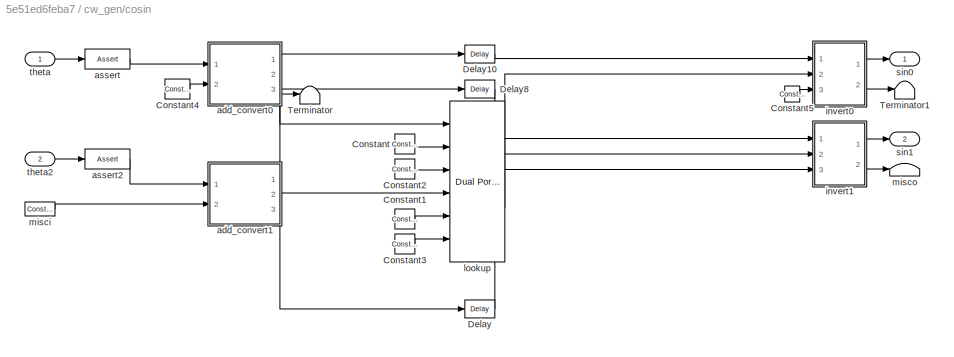
BLOCK [SubSystem] cw_gen/cosin
  AncestorBlock = casper_library_downconverter/cosin
  FunctionWithSeparateData = off
  MaskHideContents = off
  MinAlgLoopOccurrences = off
  Opaque = off
  Ports = [2, 2]
  PropExecContextOutsideSubsystem = off
  RTWSystemCode = Auto
  RequestExecContextInheritance = off
  Tag = casper:cosin
  UserDataPersistent = on
BLOCK [Reference] cw_gen/cosin/Constant  REF=xbsIndex_r4/Constant
  Ports = [0, 1]
  SourceBlock = xbsIndex_r4/Constant
  SourceType = Xilinx Constant Block Block
  arith_type = Signed (2's comp)
  bin_pt = bin_pt
  block_type = constant
  carry = CIN
  const = 0
  dbl_ovrd = off
  dsp48_infoedit = The use of this block for DSP48 instructions is deprecated.  Please use the Opmode block.
  equ = P=C
  exp_width = 8
  explicit_period = off
  frac_width = 24
  gui_display_data_type = Fixed-point
  has_advanced_control = 0
  inp1 = P
  inp2 = PCIN>>17
  n_bits = n_bits
  opr = +
  opselect = C
  period = 1
  preci_type = Single
  sg_icon_stat = 20,20,0,1,white,blue,0,bf4ddd8b,right,,[ ],[ ]
  sg_mask_display = fprintf('','COMMENT: begin icon graphics');\npatch([0 20 20 0 0 ],[0 0 20 20 0 ],[0.77 0.82 0.91 ]);\nplot([0 20 20 0 0 ],[0 0 20 20 0 ]);\npatch([5.55 8.44 10.44 12.44 14.44 10.44 7.55 5.55 ],[12.22 12.22 14.22 12.22 14.22 14.22 14.22 12.22 ],[1 1 1 ]);\npatch([7.55 10.44 8.44 5.55 7.55 ],[10.22 10.22 12.22 12.22 10.22 ],[0.931 0.946 0.973 ]);\npatch([5.55 8.44 10.44 7.55 5.55 ],[8.22 8.22 10.22 10.22...<+289ch>  <repeated x24 — deduplicated; at blocks: Constant, Constant1, Constant2, Constant3, direction_offset>
  sggui_pos = -1,-1,-1,-1
BLOCK [Reference] cw_gen/cosin/Constant1  REF=xbsIndex_r4/Constant
  Ports = [0, 1]
  SourceBlock = xbsIndex_r4/Constant
  SourceType = Xilinx Constant Block Block
  arith_type = Signed (2's comp)
  bin_pt = bin_pt
  block_type = constant
  carry = CIN
  const = 0
  dbl_ovrd = off
  dsp48_infoedit = The use of this block for DSP48 instructions is deprecated.  Please use the Opmode block.
  equ = P=C
  exp_width = 8
  explicit_period = off
  frac_width = 24
  gui_display_data_type = Fixed-point
  has_advanced_control = 0
  inp1 = P
  inp2 = PCIN>>17
  n_bits = n_bits
  opr = +
  opselect = C
  period = 1
  preci_type = Single
  sg_icon_stat = 20,20,0,1,white,blue,0,bf4ddd8b,right,,[ ],[ ]
  sggui_pos = -1,-1,-1,-1
BLOCK [Reference] cw_gen/cosin/Constant2  REF=xbsIndex_r4/Constant
  Ports = [0, 1]
  SourceBlock = xbsIndex_r4/Constant
  SourceType = Xilinx Constant Block Block
  arith_type = Boolean
  bin_pt = bin_pt
  block_type = constant
  carry = CIN
  const = 0
  dbl_ovrd = off
  dsp48_infoedit = The use of this block for DSP48 instructions is deprecated.  Please use the Opmode block.
  equ = P=C
  exp_width = 8
  explicit_period = off
  frac_width = 24
  gui_display_data_type = Fixed-point
  has_advanced_control = 0
  inp1 = P
  inp2 = PCIN>>17
  n_bits = n_bits
  opr = +
  opselect = C
  period = 1
  preci_type = Single
  sg_icon_stat = 20,20,0,1,white,blue,0,bf4ddd8b,right,,[ ],[ ]
  sggui_pos = -1,-1,-1,-1
BLOCK [Reference] cw_gen/cosin/Constant3  REF=xbsIndex_r4/Constant
  Ports = [0, 1]
  SourceBlock = xbsIndex_r4/Constant
  SourceType = Xilinx Constant Block Block
  arith_type = Boolean
  bin_pt = bin_pt
  block_type = constant
  carry = CIN
  const = 0
  dbl_ovrd = off
  dsp48_infoedit = The use of this block for DSP48 instructions is deprecated.  Please use the Opmode block.
  equ = P=C
  exp_width = 8
  explicit_period = off
  frac_width = 24
  gui_display_data_type = Fixed-point
  has_advanced_control = 0
  inp1 = P
  inp2 = PCIN>>17
  n_bits = n_bits
  opr = +
  opselect = C
  period = 1
  preci_type = Single
  sg_icon_stat = 20,20,0,1,white,blue,0,bf4ddd8b,right,,[ ],[ ]
  sggui_pos = -1,-1,-1,-1
BLOCK [Reference] cw_gen/cosin/Constant4  REF=xbsIndex_r4/Constant
  Ports = [0, 1]
  SourceBlock = xbsIndex_r4/Constant
  SourceType = Xilinx Constant Block Block
  arith_type = Unsigned
  bin_pt = 0
  block_type = constant
  carry = CIN
  const = 0
  dbl_ovrd = off
  dsp48_infoedit = The use of this block for DSP48 instructions is deprecated.  Please use the Opmode block.
  equ = P=C
  exp_width = 8
  explicit_period = on
  frac_width = 24
  gui_display_data_type = Fixed-point
  has_advanced_control = 0
  inp1 = P
  inp2 = PCIN>>17
  n_bits = 1
  opr = +
  opselect = C
  period = 1
  preci_type = Single
  sg_icon_stat = 25,20,0,1,white,blue,0,bf4ddd8b,right,,[ ],[ ]
  sg_mask_display = fprintf('','COMMENT: begin icon graphics');\npatch([0 25 25 0 0 ],[0 0 20 20 0 ],[0.77 0.82 0.91 ]);\nplot([0 25 25 0 0 ],[0 0 20 20 0 ]);\npatch([7.55 10.44 12.44 14.44 16.44 12.44 9.55 7.55 ],[12.22 12.22 14.22 12.22 14.22 14.22 14.22 12.22 ],[1 1 1 ]);\npatch([9.55 12.44 10.44 7.55 9.55 ],[10.22 10.22 12.22 12.22 10.22 ],[0.931 0.946 0.973 ]);\npatch([7.55 10.44 12.44 9.55 7.55 ],[8.22 8.22 10.22 10...<+293ch>  <repeated x4 — deduplicated; at blocks: Constant4>
  sggui_pos = -1,-1,-1,-1
BLOCK [Reference] cw_gen/cosin/Constant5  REF=xbsIndex_r4/Constant
  Ports = [0, 1]
  SourceBlock = xbsIndex_r4/Constant
  SourceType = Xilinx Constant Block Block
  arith_type = Unsigned
  bin_pt = 0
  block_type = constant
  carry = CIN
  const = 0
  dbl_ovrd = off
  dsp48_infoedit = The use of this block for DSP48 instructions is deprecated.  Please use the Opmode block.
  equ = P=C
  exp_width = 8
  explicit_period = on
  frac_width = 24
  gui_display_data_type = Fixed-point
  has_advanced_control = 0
  inp1 = P
  inp2 = PCIN>>17
  n_bits = 1
  opr = +
  opselect = C
  period = 1
  preci_type = Single
  sg_icon_stat = 15,16,0,1,white,blue,0,bf4ddd8b,right,,[ ],[ ]
  sg_mask_display = fprintf('','COMMENT: begin icon graphics');\npatch([0 15 15 0 0 ],[0 0 16 16 0 ],[0.77 0.82 0.91 ]);\nplot([0 15 15 0 0 ],[0 0 16 16 0 ]);\npatch([2.55 5.44 7.44 9.44 11.44 7.44 4.55 2.55 ],[10.22 10.22 12.22 10.22 12.22 12.22 12.22 10.22 ],[1 1 1 ]);\npatch([4.55 7.44 5.44 2.55 4.55 ],[8.22 8.22 10.22 10.22 8.22 ],[0.931 0.946 0.973 ]);\npatch([2.55 5.44 7.44 4.55 2.55 ],[6.22 6.22 8.22 8.22 6.22 ],[1...<+277ch>  <repeated x4 — deduplicated; at blocks: Constant5>
  sggui_pos = -1,-1,-1,-1
BLOCK [Reference] cw_gen/cosin/Delay  REF=xbsIndex_r4/Delay
  Ports = [1, 1]
  SourceBlock = xbsIndex_r4/Delay
  SourceType = Xilinx Delay Block
  block_type = delay
  dbl_ovrd = off
  en = off
  has_advanced_control = 0
  infoedit = Hardware notes: A delay line is a chain, each link of which is an SRL16 followed by a flip-flop.
  infoeditControl = Selection of Reset will increase slice count due to use of real FFs and instead of SRLs
  latency = bram_latency
  reg_retiming = on
  rst = off
  sg_icon_stat = 30,18,1,1,white,blue,0,8c471295,right,,[ ],[ ]
  sg_mask_display = fprintf('','COMMENT: begin icon graphics');\npatch([0 30 30 0 0 ],[0 0 18 18 0 ],[0.77 0.82 0.91 ]);\nplot([0 30 30 0 0 ],[0 0 18 18 0 ]);\npatch([10.55 13.44 15.44 17.44 19.44 15.44 12.55 10.55 ],[11.22 11.22 13.22 11.22 13.22 13.22 13.22 11.22 ],[1 1 1 ]);\npatch([12.55 15.44 13.44 10.55 12.55 ],[9.22 9.22 11.22 11.22 9.22 ],[0.931 0.946 0.973 ]);\npatch([10.55 13.44 15.44 12.55 10.55 ],[7.22 7.22 9....<+306ch>  <repeated x28 — deduplicated; at blocks: Delay, Delay10, Delay8, Delay1, Delay2>
  sggui_pos = -1,-1,-1,-1
  xl_area = [0,0,0,0,0,0,0]
  xl_use_area = off
BLOCK [Reference] cw_gen/cosin/Delay10  REF=xbsIndex_r4/Delay
  Ports = [1, 1]
  SourceBlock = xbsIndex_r4/Delay
  SourceType = Xilinx Delay Block
  block_type = delay
  dbl_ovrd = off
  en = off
  has_advanced_control = 0
  infoedit = Hardware notes: A delay line is a chain, each link of which is an SRL16 followed by a flip-flop.
  infoeditControl = Selection of Reset will increase slice count due to use of real FFs and instead of SRLs
  latency = bram_latency
  reg_retiming = on
  rst = off
  sg_icon_stat = 30,18,1,1,white,blue,0,8c471295,right,,[ ],[ ]
  sggui_pos = -1,-1,-1,-1
  xl_area = [0,0,0,0,0,0,0]
  xl_use_area = off
BLOCK [Reference] cw_gen/cosin/Delay8  REF=xbsIndex_r4/Delay
  Ports = [1, 1]
  SourceBlock = xbsIndex_r4/Delay
  SourceType = Xilinx Delay Block
  block_type = delay
  dbl_ovrd = off
  en = off
  has_advanced_control = 0
  infoedit = Hardware notes: A delay line is a chain, each link of which is an SRL16 followed by a flip-flop.
  infoeditControl = Selection of Reset will increase slice count due to use of real FFs and instead of SRLs
  latency = bram_latency
  reg_retiming = on
  rst = off
  sg_icon_stat = 30,18,1,1,white,blue,0,8c471295,right,,[ ],[ ]
  sggui_pos = -1,-1,-1,-1
  xl_area = [0,0,0,0,0,0,0]
  xl_use_area = off
BLOCK [Terminator] cw_gen/cosin/Terminator
BLOCK [Terminator] cw_gen/cosin/Terminator1
BLOCK [SubSystem] cw_gen/cosin/add_convert0
  FunctionWithSeparateData = off
  MaskHideContents = off
  MinAlgLoopOccurrences = off
  Opaque = off
  Ports = [2, 3]
  PropExecContextOutsideSubsystem = off
  RTWSystemCode = Auto
  RequestExecContextInheritance = off
BLOCK [Reference] cw_gen/cosin/add_convert0/AddSub  REF=xbsIndex_r4/AddSub
  Ports = [2, 1]
  SourceBlock = xbsIndex_r4/AddSub
  SourceType = Xilinx Adder/Subtracter Block
  arith_type = Unsigned
  bin_pt = 0
  block_type = addsub
  dbl_ovrd = off
  en = off
  has_advanced_control = 0
  hw_selection = Fabric
  latency = add_latency
  mode = Subtraction
  n_bits = 17
  overflow = Wrap
  pipelined = on
  precision = User Defined
  quantization = Truncate
  sg_icon_stat = 45,51,2,1,white,blue,0,3905c83f,right,,[ ],[ ]
  sg_mask_display = fprintf('','COMMENT: begin icon graphics');\npatch([0 45 45 0 0 ],[0 0 51 51 0 ],[0.77 0.82 0.91 ]);\nplot([0 45 45 0 0 ],[0 0 51 51 0 ]);\npatch([8.65 17.32 23.32 29.32 35.32 23.32 14.65 8.65 ],[31.66 31.66 37.66 31.66 37.66 37.66 37.66 31.66 ],[1 1 1 ]);\npatch([14.65 23.32 17.32 8.65 14.65 ],[25.66 25.66 31.66 31.66 25.66 ],[0.931 0.946 0.973 ]);\npatch([8.65 17.32 23.32 14.65 8.65 ],[19.66 19.66 25...<+526ch>  <repeated x8 — deduplicated; at blocks: AddSub>
  sggui_pos = -1,-1,-1,-1
  use_behavioral_HDL = off
  use_carryin = off
  use_carryout = off
  xl_area = [0,0,0,0,0,0,0]
  xl_use_area = off
BLOCK [Reference] cw_gen/cosin/add_convert0/AddSub5  REF=xbsIndex_r4/AddSub
  Ports = [2, 1]
  SourceBlock = xbsIndex_r4/AddSub
  SourceType = Xilinx Adder/Subtracter Block
  arith_type = Unsigned
  bin_pt = 0
  block_type = addsub
  dbl_ovrd = off
  en = off
  has_advanced_control = 0
  hw_selection = Fabric
  latency = 0
  mode = Addition
  n_bits = 2
  overflow = Wrap
  pipelined = off
  precision = User Defined
  quantization = Truncate
  sg_icon_stat = 60,58,2,1,white,blue,0,e139daf6,right,,[ ],[ ]
  sg_mask_display = fprintf('','COMMENT: begin icon graphics');\npatch([0 60 60 0 0 ],[0 0 58 58 0 ],[0.77 0.82 0.91 ]);\nplot([0 60 60 0 0 ],[0 0 58 58 0 ]);\npatch([12.2 23.76 31.76 39.76 47.76 31.76 20.2 12.2 ],[37.88 37.88 45.88 37.88 45.88 45.88 45.88 37.88 ],[1 1 1 ]);\npatch([20.2 31.76 23.76 12.2 20.2 ],[29.88 29.88 37.88 37.88 29.88 ],[0.931 0.946 0.973 ]);\npatch([12.2 23.76 31.76 20.2 12.2 ],[21.88 21.88 29.88 ...<+411ch>  <repeated x8 — deduplicated; at blocks: AddSub5>
  sggui_pos = -1,-1,-1,-1
  use_behavioral_HDL = on
  use_carryin = off
  use_carryout = off
  xl_area = [0,0,0,0,0,0,0]
  xl_use_area = off
BLOCK [Reference] cw_gen/cosin/add_convert0/Concat  REF=xbsIndex_r4/Concat
  Ports = [2, 1]
  SourceBlock = xbsIndex_r4/Concat
  SourceType = Xilinx Bus Concatenator Block
  block_type = concat
  dbl_ovrd = off
  has_advanced_control = 0
  infoedit = Concatenates two or more inputs.  Output will be cast to an unsigned value with the binary point at zero.
  num_inputs = 2
  sg_icon_stat = 60,60,2,1,white,blue,0,16398980,right,,[ ],[ ]
  sg_mask_display = fprintf('','COMMENT: begin icon graphics');\npatch([0 60 60 0 0 ],[0 0 60 60 0 ],[0.77 0.82 0.91 ]);\nplot([0 60 60 0 0 ],[0 0 60 60 0 ]);\npatch([12.2 23.76 31.76 39.76 47.76 31.76 20.2 12.2 ],[38.88 38.88 46.88 38.88 46.88 46.88 46.88 38.88 ],[1 1 1 ]);\npatch([20.2 31.76 23.76 12.2 20.2 ],[30.88 30.88 38.88 38.88 30.88 ],[0.931 0.946 0.973 ]);\npatch([12.2 23.76 31.76 20.2 12.2 ],[22.88 22.88 30.88 ...<+402ch>  <repeated x8 — deduplicated; at blocks: Concat>
  sggui_pos = -1,-1,-1,-1
BLOCK [Reference] cw_gen/cosin/add_convert0/Constant4  REF=xbsIndex_r4/Constant
  Ports = [0, 1]
  SourceBlock = xbsIndex_r4/Constant
  SourceType = Xilinx Constant Block Block
  arith_type = Unsigned
  bin_pt = 0
  block_type = constant
  carry = CIN
  const = 65536
  dbl_ovrd = off
  dsp48_infoedit = The use of this block for DSP48 instructions is deprecated.  Please use the Opmode block.
  equ = P=C
  exp_width = 8
  explicit_period = off
  frac_width = 24
  gui_display_data_type = Fixed-point
  has_advanced_control = 0
  inp1 = P
  inp2 = PCIN>>17
  n_bits = 17
  opr = +
  opselect = C
  period = 1
  preci_type = Single
  sg_icon_stat = 25,20,0,1,white,blue,0,7befbfa1,right,,[ ],[ ]
  sg_mask_display = fprintf('','COMMENT: begin icon graphics');\npatch([0 25 25 0 0 ],[0 0 20 20 0 ],[0.77 0.82 0.91 ]);\nplot([0 25 25 0 0 ],[0 0 20 20 0 ]);\npatch([7.55 10.44 12.44 14.44 16.44 12.44 9.55 7.55 ],[12.22 12.22 14.22 12.22 14.22 14.22 14.22 12.22 ],[1 1 1 ]);\npatch([9.55 12.44 10.44 7.55 9.55 ],[10.22 10.22 12.22 12.22 10.22 ],[0.931 0.946 0.973 ]);\npatch([7.55 10.44 12.44 9.55 7.55 ],[8.22 8.22 10.22 10...<+297ch>  <repeated x8 — deduplicated; at blocks: Constant4>
  sggui_pos = -1,-1,-1,-1
BLOCK [Reference] cw_gen/cosin/add_convert0/Convert2  REF=xbsIndex_r4/Convert
  Ports = [1, 1]
  SourceBlock = xbsIndex_r4/Convert
  SourceType = Xilinx Type Converter Block
  arith_type = Unsigned
  bin_pt = 0
  block_type = convert
  dbl_ovrd = off
  en = off
  exp_bits = 8
  float_type = Single
  fraction_bits = 24
  gui_display_data_type = Fixed-point
  has_advanced_control = 0
  infoedit = Hardware notes: rounding and saturating require hardware resources; truncating and wrapping do not.
  latency = conv_latency
  n_bits = 16
  overflow = Saturate
  pipeline = on
  quantization = Truncate
  sg_icon_stat = 25,18,1,1,white,blue,0,b61d041b,right,,[ ],[ ]
  sg_mask_display = fprintf('','COMMENT: begin icon graphics');\npatch([0 25 25 0 0 ],[0 0 18 18 0 ],[0.77 0.82 0.91 ]);\nplot([0 25 25 0 0 ],[0 0 18 18 0 ]);\npatch([7.55 10.44 12.44 14.44 16.44 12.44 9.55 7.55 ],[11.22 11.22 13.22 11.22 13.22 13.22 13.22 11.22 ],[1 1 1 ]);\npatch([9.55 12.44 10.44 7.55 9.55 ],[9.22 9.22 11.22 11.22 9.22 ],[0.931 0.946 0.973 ]);\npatch([7.55 10.44 12.44 9.55 7.55 ],[7.22 7.22 9.22 9.22 7...<+376ch>  <repeated x8 — deduplicated; at blocks: Convert2>
  sggui_pos = -1,-1,-1,-1
  xl_area = [0,0,0,0,0,0,0]
  xl_use_area = off
BLOCK [Reference] cw_gen/cosin/add_convert0/Delay1  REF=xbsIndex_r4/Delay
  Ports = [1, 1]
  SourceBlock = xbsIndex_r4/Delay
  SourceType = Xilinx Delay Block
  block_type = delay
  dbl_ovrd = off
  en = off
  has_advanced_control = 0
  infoedit = Hardware notes: A delay line is a chain, each link of which is an SRL16 followed by a flip-flop.
  infoeditControl = Selection of Reset will increase slice count due to use of real FFs and instead of SRLs
  latency = mux_latency+add_latency+conv_latency
  reg_retiming = on
  rst = off
  sg_icon_stat = 30,18,1,1,white,blue,0,1a71059f,right,,[ ],[ ]
  sggui_pos = -1,-1,-1,-1
  xl_area = [0,0,0,0,0,0,0]
  xl_use_area = off
BLOCK [Reference] cw_gen/cosin/add_convert0/Delay13  REF=xbsIndex_r4/Delay
  Ports = [1, 1]
  SourceBlock = xbsIndex_r4/Delay
  SourceType = Xilinx Delay Block
  block_type = delay
  dbl_ovrd = off
  en = off
  has_advanced_control = 0
  infoedit = Hardware notes: A delay line is a chain, each link of which is an SRL16 followed by a flip-flop.
  infoeditControl = Selection of Reset will increase slice count due to use of real FFs and instead of SRLs
  latency = add_latency
  reg_retiming = on
  rst = off
  sg_icon_stat = 30,18,1,1,white,blue,0,d93bb731,right,,[ ],[ ]
  sg_mask_display = fprintf('','COMMENT: begin icon graphics');\npatch([0 30 30 0 0 ],[0 0 18 18 0 ],[0.77 0.82 0.91 ]);\nplot([0 30 30 0 0 ],[0 0 18 18 0 ]);\npatch([10.55 13.44 15.44 17.44 19.44 15.44 12.55 10.55 ],[11.22 11.22 13.22 11.22 13.22 13.22 13.22 11.22 ],[1 1 1 ]);\npatch([12.55 15.44 13.44 10.55 12.55 ],[9.22 9.22 11.22 11.22 9.22 ],[0.931 0.946 0.973 ]);\npatch([10.55 13.44 15.44 12.55 10.55 ],[7.22 7.22 9....<+305ch>  <repeated x40 — deduplicated; at blocks: Delay13, Delay14, Delay1, Delay20, Delay21>
  sggui_pos = -1,-1,-1,-1
  xl_area = [0,0,0,0,0,0,0]
  xl_use_area = off
BLOCK [Reference] cw_gen/cosin/add_convert0/Delay14  REF=xbsIndex_r4/Delay
  Ports = [1, 1]
  SourceBlock = xbsIndex_r4/Delay
  SourceType = Xilinx Delay Block
  block_type = delay
  dbl_ovrd = off
  en = off
  has_advanced_control = 0
  infoedit = Hardware notes: A delay line is a chain, each link of which is an SRL16 followed by a flip-flop.
  infoeditControl = Selection of Reset will increase slice count due to use of real FFs and instead of SRLs
  latency = add_latency
  reg_retiming = on
  rst = off
  sg_icon_stat = 30,18,1,1,white,blue,0,d93bb731,right,,[ ],[ ]
  sggui_pos = -1,-1,-1,-1
  xl_area = [0,0,0,0,0,0,0]
  xl_use_area = off
BLOCK [Reference] cw_gen/cosin/add_convert0/Delay2  REF=xbsIndex_r4/Delay
  Ports = [1, 1]
  SourceBlock = xbsIndex_r4/Delay
  SourceType = Xilinx Delay Block
  block_type = delay
  dbl_ovrd = off
  en = off
  has_advanced_control = 0
  infoedit = Hardware notes: A delay line is a chain, each link of which is an SRL16 followed by a flip-flop.
  infoeditControl = Selection of Reset will increase slice count due to use of real FFs and instead of SRLs
  latency = add_latency+mux_latency+conv_latency
  reg_retiming = on
  rst = off
  sg_icon_stat = 30,18,1,1,white,blue,0,1a71059f,right,,[ ],[ ]
  sggui_pos = -1,-1,-1,-1
  xl_area = [0,0,0,0,0,0,0]
  xl_use_area = off
BLOCK [Reference] cw_gen/cosin/add_convert0/Mux  REF=xbsIndex_r4/Mux
  Ports = [3, 1]
  SourceBlock = xbsIndex_r4/Mux
  SourceType = Xilinx Bus Multiplexer Block
  arith_type = Unsigned
  bin_pt = 14
  block_type = mux
  dbl_ovrd = off
  en = off
  has_advanced_control = 0
  inputs = 2
  latency = mux_latency
  n_bits = 16
  overflow = Wrap
  precision = Full
  quantization = Truncate
  sg_icon_stat = 25,108,3,1,white,blue,3,7e8e053c,right,,[ ],[ ]
  sg_mask_display = fprintf('','COMMENT: begin icon graphics');\npatch([0 25 25 0 0 ],[0 15.4286 92.5714 108 0 ],[0.77 0.82 0.91 ]);\nplot([0 25 25 0 0 ],[0 15.4286 92.5714 108 0 ]);\npatch([5.325 9.66 12.66 15.66 18.66 12.66 8.325 5.325 ],[57.33 57.33 60.33 57.33 60.33 60.33 60.33 57.33 ],[1 1 1 ]);\npatch([8.325 12.66 9.66 5.325 8.325 ],[54.33 54.33 57.33 57.33 54.33 ],[0.931 0.946 0.973 ]);\npatch([5.325 9.66 12.66 8.3...<+476ch>  <repeated x8 — deduplicated; at blocks: Mux>
  sggui_pos = -1,-1,-1,-1
  xl_area = [0,0,0,0,0,0,0]
  xl_use_area = off
BLOCK [Outport] cw_gen/cosin/add_convert0/add
  IconDisplay = Port number
  Port = 2
BLOCK [Reference] cw_gen/cosin/add_convert0/backwards  REF=xbsIndex_r4/Slice
  Ports = [1, 1]
  SourceBlock = xbsIndex_r4/Slice
  SourceType = Xilinx Bit Slice Extractor Block
  base0 = LSB of Input
  base1 = MSB of Input
  bit0 = 0
  bit1 = 0
  block_type = slice
  boolean_output = on
  dbl_ovrd = off
  has_advanced_control = 0
  mode = Lower Bit Location + Width
  nbits = 1
  sg_icon_stat = 60,30,1,1,white,blue,0,1fd851a7,right,,[ ],[ ]
  sg_mask_display = fprintf('','COMMENT: begin icon graphics');\npatch([0 60 60 0 0 ],[0 0 30 30 0 ],[0.77 0.82 0.91 ]);\nplot([0 60 60 0 0 ],[0 0 30 30 0 ]);\npatch([21.1 26.88 30.88 34.88 38.88 30.88 25.1 21.1 ],[19.44 19.44 23.44 19.44 23.44 23.44 23.44 19.44 ],[1 1 1 ]);\npatch([25.1 30.88 26.88 21.1 25.1 ],[15.44 15.44 19.44 19.44 15.44 ],[0.931 0.946 0.973 ]);\npatch([21.1 26.88 30.88 25.1 21.1 ],[11.44 11.44 15.44 ...<+304ch>  <repeated x40 — deduplicated; at blocks: backwards, invert, lookup, new_add, quadrant>
  sggui_pos = -1,-1,-1,-1
BLOCK [Reference] cw_gen/cosin/add_convert0/direction_offset  REF=xbsIndex_r4/Constant
  Ports = [0, 1]
  SourceBlock = xbsIndex_r4/Constant
  SourceType = Xilinx Constant Block Block
  arith_type = Unsigned
  bin_pt = 0
  block_type = constant
  carry = CIN
  const = 0
  dbl_ovrd = off
  dsp48_infoedit = The use of this block for DSP48 instructions is deprecated.  Please use the Opmode block.
  equ = P=C
  exp_width = 8
  explicit_period = off
  frac_width = 24
  gui_display_data_type = Fixed-point
  has_advanced_control = 0
  inp1 = P
  inp2 = PCIN>>17
  n_bits = 2
  opr = +
  opselect = C
  period = 1
  preci_type = Single
  sg_icon_stat = 20,20,0,1,white,blue,0,bf4ddd8b,right,,[ ],[ ]
  sggui_pos = -1,-1,-1,-1
BLOCK [Reference] cw_gen/cosin/add_convert0/invert  REF=xbsIndex_r4/Slice
  Ports = [1, 1]
  SourceBlock = xbsIndex_r4/Slice
  SourceType = Xilinx Bit Slice Extractor Block
  base0 = LSB of Input
  base1 = MSB of Input
  bit0 = 0
  bit1 = 0
  block_type = slice
  boolean_output = on
  dbl_ovrd = off
  has_advanced_control = 0
  mode = Upper Bit Location + Width
  nbits = 1
  sg_icon_stat = 60,30,1,1,white,blue,0,1fd851a7,right,,[ ],[ ]
  sggui_pos = -1,-1,-1,-1
BLOCK [Reference] cw_gen/cosin/add_convert0/lookup  REF=xbsIndex_r4/Slice
  Ports = [1, 1]
  SourceBlock = xbsIndex_r4/Slice
  SourceType = Xilinx Bit Slice Extractor Block
  base0 = LSB of Input
  base1 = MSB of Input
  bit0 = 0
  bit1 = 0
  block_type = slice
  boolean_output = off
  dbl_ovrd = off
  has_advanced_control = 0
  mode = Lower Bit Location + Width
  nbits = 16
  sg_icon_stat = 60,30,1,1,white,blue,0,1fd851a7,right,,[ ],[ ]
  sggui_pos = -1,-1,-1,-1
BLOCK [Inport] cw_gen/cosin/add_convert0/misci
  IconDisplay = Port number
  Port = 2
BLOCK [Outport] cw_gen/cosin/add_convert0/misco
  IconDisplay = Port number
  Port = 3
BLOCK [Outport] cw_gen/cosin/add_convert0/negate
  IconDisplay = Port number
BLOCK [Reference] cw_gen/cosin/add_convert0/new_add  REF=xbsIndex_r4/Slice
  Ports = [1, 1]
  SourceBlock = xbsIndex_r4/Slice
  SourceType = Xilinx Bit Slice Extractor Block
  base0 = LSB of Input
  base1 = MSB of Input
  bit0 = 0
  bit1 = 0
  block_type = slice
  boolean_output = off
  dbl_ovrd = off
  has_advanced_control = 0
  mode = Lower Bit Location + Width
  nbits = 16
  sg_icon_stat = 60,30,1,1,white,blue,0,1fd851a7,right,,[ ],[ ]
  sggui_pos = -1,-1,-1,-1
BLOCK [Reference] cw_gen/cosin/add_convert0/quadrant  REF=xbsIndex_r4/Slice
  Ports = [1, 1]
  SourceBlock = xbsIndex_r4/Slice
  SourceType = Xilinx Bit Slice Extractor Block
  base0 = LSB of Input
  base1 = MSB of Input
  bit0 = 0
  bit1 = 0
  block_type = slice
  boolean_output = off
  dbl_ovrd = off
  has_advanced_control = 0
  mode = Upper Bit Location + Width
  nbits = 2
  sg_icon_stat = 60,30,1,1,white,blue,0,1fd851a7,right,,[ ],[ ]
  sggui_pos = -1,-1,-1,-1
BLOCK [Inport] cw_gen/cosin/add_convert0/theta
  IconDisplay = Port number
BLOCK [SubSystem] cw_gen/cosin/add_convert1
  FunctionWithSeparateData = off
  MaskHideContents = off
  MinAlgLoopOccurrences = off
  Opaque = off
  Ports = [2, 3]
  PropExecContextOutsideSubsystem = off
  RTWSystemCode = Auto
  RequestExecContextInheritance = off
BLOCK [Reference] cw_gen/cosin/add_convert1/AddSub  REF=xbsIndex_r4/AddSub
  Ports = [2, 1]
  SourceBlock = xbsIndex_r4/AddSub
  SourceType = Xilinx Adder/Subtracter Block
  arith_type = Unsigned
  bin_pt = 0
  block_type = addsub
  dbl_ovrd = off
  en = off
  has_advanced_control = 0
  hw_selection = Fabric
  latency = add_latency
  mode = Subtraction
  n_bits = 17
  overflow = Wrap
  pipelined = on
  precision = User Defined
  quantization = Truncate
  sg_icon_stat = 45,51,2,1,white,blue,0,3905c83f,right,,[ ],[ ]
  sggui_pos = -1,-1,-1,-1
  use_behavioral_HDL = off
  use_carryin = off
  use_carryout = off
  xl_area = [0,0,0,0,0,0,0]
  xl_use_area = off
BLOCK [Reference] cw_gen/cosin/add_convert1/AddSub5  REF=xbsIndex_r4/AddSub
  Ports = [2, 1]
  SourceBlock = xbsIndex_r4/AddSub
  SourceType = Xilinx Adder/Subtracter Block
  arith_type = Unsigned
  bin_pt = 0
  block_type = addsub
  dbl_ovrd = off
  en = off
  has_advanced_control = 0
  hw_selection = Fabric
  latency = 0
  mode = Addition
  n_bits = 2
  overflow = Wrap
  pipelined = off
  precision = User Defined
  quantization = Truncate
  sg_icon_stat = 60,58,2,1,white,blue,0,e139daf6,right,,[ ],[ ]
  sggui_pos = -1,-1,-1,-1
  use_behavioral_HDL = on
  use_carryin = off
  use_carryout = off
  xl_area = [0,0,0,0,0,0,0]
  xl_use_area = off
BLOCK [Reference] cw_gen/cosin/add_convert1/Concat  REF=xbsIndex_r4/Concat
  Ports = [2, 1]
  SourceBlock = xbsIndex_r4/Concat
  SourceType = Xilinx Bus Concatenator Block
  block_type = concat
  dbl_ovrd = off
  has_advanced_control = 0
  infoedit = Concatenates two or more inputs.  Output will be cast to an unsigned value with the binary point at zero.
  num_inputs = 2
  sg_icon_stat = 60,60,2,1,white,blue,0,16398980,right,,[ ],[ ]
  sggui_pos = -1,-1,-1,-1
BLOCK [Reference] cw_gen/cosin/add_convert1/Constant4  REF=xbsIndex_r4/Constant
  Ports = [0, 1]
  SourceBlock = xbsIndex_r4/Constant
  SourceType = Xilinx Constant Block Block
  arith_type = Unsigned
  bin_pt = 0
  block_type = constant
  carry = CIN
  const = 65536
  dbl_ovrd = off
  dsp48_infoedit = The use of this block for DSP48 instructions is deprecated.  Please use the Opmode block.
  equ = P=C
  exp_width = 8
  explicit_period = off
  frac_width = 24
  gui_display_data_type = Fixed-point
  has_advanced_control = 0
  inp1 = P
  inp2 = PCIN>>17
  n_bits = 17
  opr = +
  opselect = C
  period = 1
  preci_type = Single
  sg_icon_stat = 25,20,0,1,white,blue,0,7befbfa1,right,,[ ],[ ]
  sggui_pos = -1,-1,-1,-1
BLOCK [Reference] cw_gen/cosin/add_convert1/Convert2  REF=xbsIndex_r4/Convert
  Ports = [1, 1]
  SourceBlock = xbsIndex_r4/Convert
  SourceType = Xilinx Type Converter Block
  arith_type = Unsigned
  bin_pt = 0
  block_type = convert
  dbl_ovrd = off
  en = off
  exp_bits = 8
  float_type = Single
  fraction_bits = 24
  gui_display_data_type = Fixed-point
  has_advanced_control = 0
  infoedit = Hardware notes: rounding and saturating require hardware resources; truncating and wrapping do not.
  latency = conv_latency
  n_bits = 16
  overflow = Saturate
  pipeline = on
  quantization = Truncate
  sg_icon_stat = 25,18,1,1,white,blue,0,b61d041b,right,,[ ],[ ]
  sggui_pos = -1,-1,-1,-1
  xl_area = [0,0,0,0,0,0,0]
  xl_use_area = off
BLOCK [Reference] cw_gen/cosin/add_convert1/Delay1  REF=xbsIndex_r4/Delay
  Ports = [1, 1]
  SourceBlock = xbsIndex_r4/Delay
  SourceType = Xilinx Delay Block
  block_type = delay
  dbl_ovrd = off
  en = off
  has_advanced_control = 0
  infoedit = Hardware notes: A delay line is a chain, each link of which is an SRL16 followed by a flip-flop.
  infoeditControl = Selection of Reset will increase slice count due to use of real FFs and instead of SRLs
  latency = mux_latency+add_latency+conv_latency
  reg_retiming = on
  rst = off
  sg_icon_stat = 30,18,1,1,white,blue,0,1a71059f,right,,[ ],[ ]
  sggui_pos = -1,-1,-1,-1
  xl_area = [0,0,0,0,0,0,0]
  xl_use_area = off
BLOCK [Reference] cw_gen/cosin/add_convert1/Delay13  REF=xbsIndex_r4/Delay
  Ports = [1, 1]
  SourceBlock = xbsIndex_r4/Delay
  SourceType = Xilinx Delay Block
  block_type = delay
  dbl_ovrd = off
  en = off
  has_advanced_control = 0
  infoedit = Hardware notes: A delay line is a chain, each link of which is an SRL16 followed by a flip-flop.
  infoeditControl = Selection of Reset will increase slice count due to use of real FFs and instead of SRLs
  latency = add_latency
  reg_retiming = on
  rst = off
  sg_icon_stat = 30,18,1,1,white,blue,0,d93bb731,right,,[ ],[ ]
  sggui_pos = -1,-1,-1,-1
  xl_area = [0,0,0,0,0,0,0]
  xl_use_area = off
BLOCK [Reference] cw_gen/cosin/add_convert1/Delay14  REF=xbsIndex_r4/Delay
  Ports = [1, 1]
  SourceBlock = xbsIndex_r4/Delay
  SourceType = Xilinx Delay Block
  block_type = delay
  dbl_ovrd = off
  en = off
  has_advanced_control = 0
  infoedit = Hardware notes: A delay line is a chain, each link of which is an SRL16 followed by a flip-flop.
  infoeditControl = Selection of Reset will increase slice count due to use of real FFs and instead of SRLs
  latency = add_latency
  reg_retiming = on
  rst = off
  sg_icon_stat = 30,18,1,1,white,blue,0,d93bb731,right,,[ ],[ ]
  sggui_pos = -1,-1,-1,-1
  xl_area = [0,0,0,0,0,0,0]
  xl_use_area = off
BLOCK [Reference] cw_gen/cosin/add_convert1/Delay2  REF=xbsIndex_r4/Delay
  Ports = [1, 1]
  SourceBlock = xbsIndex_r4/Delay
  SourceType = Xilinx Delay Block
  block_type = delay
  dbl_ovrd = off
  en = off
  has_advanced_control = 0
  infoedit = Hardware notes: A delay line is a chain, each link of which is an SRL16 followed by a flip-flop.
  infoeditControl = Selection of Reset will increase slice count due to use of real FFs and instead of SRLs
  latency = add_latency+mux_latency+conv_latency
  reg_retiming = on
  rst = off
  sg_icon_stat = 30,18,1,1,white,blue,0,1a71059f,right,,[ ],[ ]
  sggui_pos = -1,-1,-1,-1
  xl_area = [0,0,0,0,0,0,0]
  xl_use_area = off
BLOCK [Reference] cw_gen/cosin/add_convert1/Mux  REF=xbsIndex_r4/Mux
  Ports = [3, 1]
  SourceBlock = xbsIndex_r4/Mux
  SourceType = Xilinx Bus Multiplexer Block
  arith_type = Unsigned
  bin_pt = 14
  block_type = mux
  dbl_ovrd = off
  en = off
  has_advanced_control = 0
  inputs = 2
  latency = mux_latency
  n_bits = 16
  overflow = Wrap
  precision = Full
  quantization = Truncate
  sg_icon_stat = 25,108,3,1,white,blue,3,7e8e053c,right,,[ ],[ ]
  sggui_pos = -1,-1,-1,-1
  xl_area = [0,0,0,0,0,0,0]
  xl_use_area = off
BLOCK [Outport] cw_gen/cosin/add_convert1/add
  IconDisplay = Port number
  Port = 2
BLOCK [Reference] cw_gen/cosin/add_convert1/backwards  REF=xbsIndex_r4/Slice
  Ports = [1, 1]
  SourceBlock = xbsIndex_r4/Slice
  SourceType = Xilinx Bit Slice Extractor Block
  base0 = LSB of Input
  base1 = MSB of Input
  bit0 = 0
  bit1 = 0
  block_type = slice
  boolean_output = on
  dbl_ovrd = off
  has_advanced_control = 0
  mode = Lower Bit Location + Width
  nbits = 1
  sg_icon_stat = 60,30,1,1,white,blue,0,1fd851a7,right,,[ ],[ ]
  sggui_pos = -1,-1,-1,-1
BLOCK [Reference] cw_gen/cosin/add_convert1/direction_offset  REF=xbsIndex_r4/Constant
  Ports = [0, 1]
  SourceBlock = xbsIndex_r4/Constant
  SourceType = Xilinx Constant Block Block
  arith_type = Unsigned
  bin_pt = 0
  block_type = constant
  carry = CIN
  const = 0
  dbl_ovrd = off
  dsp48_infoedit = The use of this block for DSP48 instructions is deprecated.  Please use the Opmode block.
  equ = P=C
  exp_width = 8
  explicit_period = off
  frac_width = 24
  gui_display_data_type = Fixed-point
  has_advanced_control = 0
  inp1 = P
  inp2 = PCIN>>17
  n_bits = 2
  opr = +
  opselect = C
  period = 1
  preci_type = Single
  sg_icon_stat = 20,20,0,1,white,blue,0,bf4ddd8b,right,,[ ],[ ]
  sggui_pos = -1,-1,-1,-1
BLOCK [Reference] cw_gen/cosin/add_convert1/invert  REF=xbsIndex_r4/Slice
  Ports = [1, 1]
  SourceBlock = xbsIndex_r4/Slice
  SourceType = Xilinx Bit Slice Extractor Block
  base0 = LSB of Input
  base1 = MSB of Input
  bit0 = 0
  bit1 = 0
  block_type = slice
  boolean_output = on
  dbl_ovrd = off
  has_advanced_control = 0
  mode = Upper Bit Location + Width
  nbits = 1
  sg_icon_stat = 60,30,1,1,white,blue,0,1fd851a7,right,,[ ],[ ]
  sggui_pos = -1,-1,-1,-1
BLOCK [Reference] cw_gen/cosin/add_convert1/lookup  REF=xbsIndex_r4/Slice
  Ports = [1, 1]
  SourceBlock = xbsIndex_r4/Slice
  SourceType = Xilinx Bit Slice Extractor Block
  base0 = LSB of Input
  base1 = MSB of Input
  bit0 = 0
  bit1 = 0
  block_type = slice
  boolean_output = off
  dbl_ovrd = off
  has_advanced_control = 0
  mode = Lower Bit Location + Width
  nbits = 16
  sg_icon_stat = 60,30,1,1,white,blue,0,1fd851a7,right,,[ ],[ ]
  sggui_pos = -1,-1,-1,-1
BLOCK [Inport] cw_gen/cosin/add_convert1/misci
  IconDisplay = Port number
  Port = 2
BLOCK [Outport] cw_gen/cosin/add_convert1/misco
  IconDisplay = Port number
  Port = 3
BLOCK [Outport] cw_gen/cosin/add_convert1/negate
  IconDisplay = Port number
BLOCK [Reference] cw_gen/cosin/add_convert1/new_add  REF=xbsIndex_r4/Slice
  Ports = [1, 1]
  SourceBlock = xbsIndex_r4/Slice
  SourceType = Xilinx Bit Slice Extractor Block
  base0 = LSB of Input
  base1 = MSB of Input
  bit0 = 0
  bit1 = 0
  block_type = slice
  boolean_output = off
  dbl_ovrd = off
  has_advanced_control = 0
  mode = Lower Bit Location + Width
  nbits = 16
  sg_icon_stat = 60,30,1,1,white,blue,0,1fd851a7,right,,[ ],[ ]
  sggui_pos = -1,-1,-1,-1
BLOCK [Reference] cw_gen/cosin/add_convert1/quadrant  REF=xbsIndex_r4/Slice
  Ports = [1, 1]
  SourceBlock = xbsIndex_r4/Slice
  SourceType = Xilinx Bit Slice Extractor Block
  base0 = LSB of Input
  base1 = MSB of Input
  bit0 = 0
  bit1 = 0
  block_type = slice
  boolean_output = off
  dbl_ovrd = off
  has_advanced_control = 0
  mode = Upper Bit Location + Width
  nbits = 2
  sg_icon_stat = 60,30,1,1,white,blue,0,1fd851a7,right,,[ ],[ ]
  sggui_pos = -1,-1,-1,-1
BLOCK [Inport] cw_gen/cosin/add_convert1/theta
  IconDisplay = Port number
BLOCK [Reference] cw_gen/cosin/assert  REF=xbsIndex_r4/Assert
  Ports = [1, 1]
  SourceBlock = xbsIndex_r4/Assert
  SourceType = Xilinx Assert Block
  arith_type = Unsigned
  assert_rate = off
  assert_type = on
  bin_pt = 0
  block_type = assert
  exp_width = 8
  frac_width = 24
  gui_display_data_type = Fixed-point
  has_advanced_control = 0
  infoedit = Asserts a user-defined sample rate and/or type on a signal.<br><br>Hardware notes: In hardware this block costs nothing.
  n_bits = 18
  output_port = on
  period = 1
  preci_type = Single
  rate_source = Explicitly
  sg_icon_stat = 45,20,1,1,white,blue,0,9657e937,right,,[ ],[ ]
  sg_mask_display = fprintf('','COMMENT: begin icon graphics');\npatch([0 45 45 0 0 ],[0 0 20 20 0 ],[0.77 0.82 0.91 ]);\nplot([0 45 45 0 0 ],[0 0 20 20 0 ]);\npatch([17.55 20.44 22.44 24.44 26.44 22.44 19.55 17.55 ],[12.22 12.22 14.22 12.22 14.22 14.22 14.22 12.22 ],[1 1 1 ]);\npatch([19.55 22.44 20.44 17.55 19.55 ],[10.22 10.22 12.22 12.22 10.22 ],[0.931 0.946 0.973 ]);\npatch([17.55 20.44 22.44 19.55 17.55 ],[8.22 8.22...<+295ch>  <repeated x8 — deduplicated; at blocks: assert, assert2>
  sggui_pos = -1,-1,-1,-1
  type_source = Explicitly
BLOCK [Reference] cw_gen/cosin/assert2  REF=xbsIndex_r4/Assert
  Ports = [1, 1]
  SourceBlock = xbsIndex_r4/Assert
  SourceType = Xilinx Assert Block
  arith_type = Unsigned
  assert_rate = off
  assert_type = on
  bin_pt = 0
  block_type = assert
  exp_width = 8
  frac_width = 24
  gui_display_data_type = Fixed-point
  has_advanced_control = 0
  infoedit = Asserts a user-defined sample rate and/or type on a signal.<br><br>Hardware notes: In hardware this block costs nothing.
  n_bits = 18
  output_port = on
  period = 1
  preci_type = Single
  rate_source = Explicitly
  sg_icon_stat = 45,20,1,1,white,blue,0,9657e937,right,,[ ],[ ]
  sggui_pos = -1,-1,-1,-1
  type_source = Explicitly
BLOCK [SubSystem] cw_gen/cosin/invert0
  FunctionWithSeparateData = off
  MaskHideContents = off
  MinAlgLoopOccurrences = off
  Opaque = off
  Ports = [3, 2]
  PropExecContextOutsideSubsystem = off
  RTWSystemCode = Auto
  RequestExecContextInheritance = off
BLOCK [Reference] cw_gen/cosin/invert0/Delay1  REF=xbsIndex_r4/Delay
  Ports = [1, 1]
  SourceBlock = xbsIndex_r4/Delay
  SourceType = Xilinx Delay Block
  block_type = delay
  dbl_ovrd = off
  en = off
  has_advanced_control = 0
  infoedit = Hardware notes: A delay line is a chain, each link of which is an SRL16 followed by a flip-flop.
  infoeditControl = Selection of Reset will increase slice count due to use of real FFs and instead of SRLs
  latency = mux_latency+neg_latency
  reg_retiming = on
  rst = off
  sg_icon_stat = 30,18,1,1,white,blue,0,d390c2d8,right,,[ ],[ ]
  sggui_pos = -1,-1,-1,-1
  xl_area = [0,0,0,0,0,0,0]
  xl_use_area = off
BLOCK [Reference] cw_gen/cosin/invert0/Delay20  REF=xbsIndex_r4/Delay
  Ports = [1, 1]
  SourceBlock = xbsIndex_r4/Delay
  SourceType = Xilinx Delay Block
  block_type = delay
  dbl_ovrd = off
  en = off
  has_advanced_control = 0
  infoedit = Hardware notes: A delay line is a chain, each link of which is an SRL16 followed by a flip-flop.
  infoeditControl = Selection of Reset will increase slice count due to use of real FFs and instead of SRLs
  latency = neg_latency
  reg_retiming = on
  rst = off
  sg_icon_stat = 30,18,1,1,white,blue,0,85ce9542,right,,[ ],[ ]
  sggui_pos = -1,-1,-1,-1
  xl_area = [0,0,0,0,0,0,0]
  xl_use_area = off
BLOCK [Reference] cw_gen/cosin/invert0/Delay21  REF=xbsIndex_r4/Delay
  Ports = [1, 1]
  SourceBlock = xbsIndex_r4/Delay
  SourceType = Xilinx Delay Block
  block_type = delay
  dbl_ovrd = off
  en = off
  has_advanced_control = 0
  infoedit = Hardware notes: A delay line is a chain, each link of which is an SRL16 followed by a flip-flop.
  infoeditControl = Selection of Reset will increase slice count due to use of real FFs and instead of SRLs
  latency = neg_latency
  reg_retiming = on
  rst = off
  sg_icon_stat = 30,18,1,1,white,blue,0,85ce9542,right,,[ ],[ ]
  sggui_pos = -1,-1,-1,-1
  xl_area = [0,0,0,0,0,0,0]
  xl_use_area = off
BLOCK [Reference] cw_gen/cosin/invert0/Negate  REF=xbsIndex_r4/Negate
  Ports = [1, 1]
  SourceBlock = xbsIndex_r4/Negate
  SourceType = Xilinx Negate Block Block
  arith_type = Signed  (2's comp)
  bin_pt = bin_pt
  block_type = negate
  dbl_ovrd = off
  en = off
  has_advanced_control = 0
  latency = neg_latency
  n_bits = n_bits
  overflow = Saturate
  precision = User Defined
  quantization = Truncate
  sg_icon_stat = 55,22,1,1,white,blue,0,d6d3ab9d,right,,[ ],[ ]
  sg_mask_display = fprintf('','COMMENT: begin icon graphics');\npatch([0 55 55 0 0 ],[0 0 22 22 0 ],[0.77 0.82 0.91 ]);\nplot([0 55 55 0 0 ],[0 0 22 22 0 ]);\npatch([20.325 24.66 27.66 30.66 33.66 27.66 23.325 20.325 ],[14.33 14.33 17.33 14.33 17.33 17.33 17.33 14.33 ],[1 1 1 ]);\npatch([23.325 27.66 24.66 20.325 23.325 ],[11.33 11.33 14.33 14.33 11.33 ],[0.931 0.946 0.973 ]);\npatch([20.325 24.66 27.66 23.325 20.325 ],[...<+390ch>  <repeated x8 — deduplicated; at blocks: Negate>
  sggui_pos = -1,-1,-1,-1
  xl_area = [0,0,0,0,0,0,0]
  xl_use_area = off
BLOCK [Inport] cw_gen/cosin/invert0/in
  IconDisplay = Port number
  Port = 2
BLOCK [Inport] cw_gen/cosin/invert0/misci
  IconDisplay = Port number
  Port = 3
BLOCK [Outport] cw_gen/cosin/invert0/misco
  IconDisplay = Port number
  Port = 2
BLOCK [Reference] cw_gen/cosin/invert0/mux  REF=xbsIndex_r4/Mux
  Ports = [3, 1]
  SourceBlock = xbsIndex_r4/Mux
  SourceType = Xilinx Bus Multiplexer Block
  arith_type = Unsigned
  bin_pt = 14
  block_type = mux
  dbl_ovrd = off
  en = off
  has_advanced_control = 0
  inputs = 2
  latency = mux_latency
  n_bits = 16
  overflow = Wrap
  precision = Full
  quantization = Truncate
  sg_icon_stat = 35,128,3,1,white,blue,3,7e8e053c,right,,[ ],[ ]
  sg_mask_display = fprintf('','COMMENT: begin icon graphics');\npatch([0 35 35 0 0 ],[0 18.2857 109.714 128 0 ],[0.77 0.82 0.91 ]);\nplot([0 35 35 0 0 ],[0 18.2857 109.714 128 0 ]);\npatch([5.875 13.1 18.1 23.1 28.1 18.1 10.875 5.875 ],[69.55 69.55 74.55 69.55 74.55 74.55 74.55 69.55 ],[1 1 1 ]);\npatch([10.875 18.1 13.1 5.875 10.875 ],[64.55 64.55 69.55 69.55 64.55 ],[0.931 0.946 0.973 ]);\npatch([5.875 13.1 18.1 10.875...<+473ch>  <repeated x8 — deduplicated; at blocks: mux>
  sggui_pos = -1,-1,-1,-1
  xl_area = [0,0,0,0,0,0,0]
  xl_use_area = off
BLOCK [Inport] cw_gen/cosin/invert0/negate
  IconDisplay = Port number
BLOCK [Outport] cw_gen/cosin/invert0/out
  IconDisplay = Port number
BLOCK [SubSystem] cw_gen/cosin/invert1
  FunctionWithSeparateData = off
  MaskHideContents = off
  MinAlgLoopOccurrences = off
  Opaque = off
  Ports = [3, 2]
  PropExecContextOutsideSubsystem = off
  RTWSystemCode = Auto
  RequestExecContextInheritance = off
BLOCK [Reference] cw_gen/cosin/invert1/Delay1  REF=xbsIndex_r4/Delay
  Ports = [1, 1]
  SourceBlock = xbsIndex_r4/Delay
  SourceType = Xilinx Delay Block
  block_type = delay
  dbl_ovrd = off
  en = off
  has_advanced_control = 0
  infoedit = Hardware notes: A delay line is a chain, each link of which is an SRL16 followed by a flip-flop.
  infoeditControl = Selection of Reset will increase slice count due to use of real FFs and instead of SRLs
  latency = mux_latency+neg_latency
  reg_retiming = on
  rst = off
  sg_icon_stat = 30,18,1,1,white,blue,0,d390c2d8,right,,[ ],[ ]
  sggui_pos = -1,-1,-1,-1
  xl_area = [0,0,0,0,0,0,0]
  xl_use_area = off
BLOCK [Reference] cw_gen/cosin/invert1/Delay20  REF=xbsIndex_r4/Delay
  Ports = [1, 1]
  SourceBlock = xbsIndex_r4/Delay
  SourceType = Xilinx Delay Block
  block_type = delay
  dbl_ovrd = off
  en = off
  has_advanced_control = 0
  infoedit = Hardware notes: A delay line is a chain, each link of which is an SRL16 followed by a flip-flop.
  infoeditControl = Selection of Reset will increase slice count due to use of real FFs and instead of SRLs
  latency = neg_latency
  reg_retiming = on
  rst = off
  sg_icon_stat = 30,18,1,1,white,blue,0,85ce9542,right,,[ ],[ ]
  sggui_pos = -1,-1,-1,-1
  xl_area = [0,0,0,0,0,0,0]
  xl_use_area = off
BLOCK [Reference] cw_gen/cosin/invert1/Delay21  REF=xbsIndex_r4/Delay
  Ports = [1, 1]
  SourceBlock = xbsIndex_r4/Delay
  SourceType = Xilinx Delay Block
  block_type = delay
  dbl_ovrd = off
  en = off
  has_advanced_control = 0
  infoedit = Hardware notes: A delay line is a chain, each link of which is an SRL16 followed by a flip-flop.
  infoeditControl = Selection of Reset will increase slice count due to use of real FFs and instead of SRLs
  latency = neg_latency
  reg_retiming = on
  rst = off
  sg_icon_stat = 30,18,1,1,white,blue,0,85ce9542,right,,[ ],[ ]
  sggui_pos = -1,-1,-1,-1
  xl_area = [0,0,0,0,0,0,0]
  xl_use_area = off
BLOCK [Reference] cw_gen/cosin/invert1/Negate  REF=xbsIndex_r4/Negate
  Ports = [1, 1]
  SourceBlock = xbsIndex_r4/Negate
  SourceType = Xilinx Negate Block Block
  arith_type = Signed  (2's comp)
  bin_pt = bin_pt
  block_type = negate
  dbl_ovrd = off
  en = off
  has_advanced_control = 0
  latency = neg_latency
  n_bits = n_bits
  overflow = Saturate
  precision = User Defined
  quantization = Truncate
  sg_icon_stat = 55,22,1,1,white,blue,0,d6d3ab9d,right,,[ ],[ ]
  sggui_pos = -1,-1,-1,-1
  xl_area = [0,0,0,0,0,0,0]
  xl_use_area = off
BLOCK [Inport] cw_gen/cosin/invert1/in
  IconDisplay = Port number
  Port = 2
BLOCK [Inport] cw_gen/cosin/invert1/misci
  IconDisplay = Port number
  Port = 3
BLOCK [Outport] cw_gen/cosin/invert1/misco
  IconDisplay = Port number
  Port = 2
BLOCK [Reference] cw_gen/cosin/invert1/mux  REF=xbsIndex_r4/Mux
  Ports = [3, 1]
  SourceBlock = xbsIndex_r4/Mux
  SourceType = Xilinx Bus Multiplexer Block
  arith_type = Unsigned
  bin_pt = 14
  block_type = mux
  dbl_ovrd = off
  en = off
  has_advanced_control = 0
  inputs = 2
  latency = mux_latency
  n_bits = 16
  overflow = Wrap
  precision = Full
  quantization = Truncate
  sg_icon_stat = 35,128,3,1,white,blue,3,7e8e053c,right,,[ ],[ ]
  sggui_pos = -1,-1,-1,-1
  xl_area = [0,0,0,0,0,0,0]
  xl_use_area = off
BLOCK [Inport] cw_gen/cosin/invert1/negate
  IconDisplay = Port number
BLOCK [Outport] cw_gen/cosin/invert1/out
  IconDisplay = Port number
BLOCK [Reference] cw_gen/cosin/lookup  REF=xbsIndex_r4/Dual Port RAM
  Ports = [6, 2]
  SourceBlock = xbsIndex_r4/Dual Port RAM
  SourceType = Xilinx Dual Port Random Access Memory Block
  block_type = dpram
  dbl_ovrd = off
  depth = 2^(16)
  distributed_mem = Block RAM
  en_a = off
  en_b = off
  has_advanced_control = 0
  initVector = sin((0*(2*pi))+(2*pi)/(2^18)*(0:(2^16)-1))
  init_a = 0
  init_b = 0
  latency = bram_latency
  optimize = Area
  rst_a = off
  rst_b = off
  sg_icon_stat = 55,161,6,2,white,blue,0,28af736d,right,,[ ],[ ]
  sg_mask_display = fprintf('','COMMENT: begin icon graphics');\npatch([0 55 55 0 0 ],[0 0 161 161 0 ],[0.77 0.82 0.91 ]);\nplot([0 55 55 0 0 ],[0 0 161 161 0 ]);\npatch([11.425 21.54 28.54 35.54 42.54 28.54 18.425 11.425 ],[87.77 87.77 94.77 87.77 94.77 94.77 94.77 87.77 ],[1 1 1 ]);\npatch([18.425 28.54 21.54 11.425 18.425 ],[80.77 80.77 87.77 87.77 80.77 ],[0.931 0.946 0.973 ]);\npatch([11.425 21.54 28.54 18.425 11.425...<+644ch>  <repeated x4 — deduplicated; at blocks: lookup>
  sggui_pos = -1,-1,-1,-1
  write_mode_A = Read After Write
  write_mode_B = Read After Write
  xl_area = [0,0,0,0,0,0,0]
  xl_use_area = off
BLOCK [Reference] cw_gen/cosin/misci  REF=xbsIndex_r4/Constant
  Ports = [0, 1]
  SourceBlock = xbsIndex_r4/Constant
  SourceType = Xilinx Constant Block Block
  arith_type = Unsigned
  bin_pt = 0
  block_type = constant
  carry = CIN
  const = 0
  dbl_ovrd = off
  dsp48_infoedit = The use of this block for DSP48 instructions is deprecated.  Please use the Opmode block.
  equ = P=C
  exp_width = 8
  explicit_period = on
  frac_width = 24
  gui_display_data_type = Fixed-point
  has_advanced_control = 0
  inp1 = P
  inp2 = PCIN>>17
  n_bits = 1
  opr = +
  opselect = C
  period = 1
  preci_type = Single
  sg_icon_stat = 30,14,0,1,white,blue,0,bf4ddd8b,right,,[ ],[ ]
  sg_mask_display = fprintf('','COMMENT: begin icon graphics');\npatch([0 30 30 0 0 ],[0 0 14 14 0 ],[0.77 0.82 0.91 ]);\nplot([0 30 30 0 0 ],[0 0 14 14 0 ]);\npatch([10.55 13.44 15.44 17.44 19.44 15.44 12.55 10.55 ],[9.22 9.22 11.22 9.22 11.22 11.22 11.22 9.22 ],[1 1 1 ]);\npatch([12.55 15.44 13.44 10.55 12.55 ],[7.22 7.22 9.22 9.22 7.22 ],[0.931 0.946 0.973 ]);\npatch([10.55 13.44 15.44 12.55 10.55 ],[5.22 5.22 7.22 7.2...<+294ch>  <repeated x4 — deduplicated; at blocks: misci>
  sggui_pos = -1,-1,-1,-1
BLOCK [Terminator] cw_gen/cosin/misco
BLOCK [Outport] cw_gen/cosin/sin0
  IconDisplay = Port number
BLOCK [Outport] cw_gen/cosin/sin1
  IconDisplay = Port number
  Port = 2
BLOCK [Inport] cw_gen/cosin/theta
  IconDisplay = Port number
BLOCK [Inport] cw_gen/cosin/theta2
  IconDisplay = Port number
  Port = 2
BLOCK [SubSystem] cw_gen/cosin1
  AncestorBlock = casper_library_downconverter/cosin
  FunctionWithSeparateData = off
  MaskHideContents = off
  MinAlgLoopOccurrences = off
  Opaque = off
  Ports = [2, 2]
  PropExecContextOutsideSubsystem = off
  RTWSystemCode = Auto
  RequestExecContextInheritance = off
  Tag = casper:cosin
  UserDataPersistent = on
BLOCK [Reference] cw_gen/cosin1/Constant  REF=xbsIndex_r4/Constant
  Ports = [0, 1]
  SourceBlock = xbsIndex_r4/Constant
  SourceType = Xilinx Constant Block Block
  arith_type = Signed (2's comp)
  bin_pt = bin_pt
  block_type = constant
  carry = CIN
  const = 0
  dbl_ovrd = off
  dsp48_infoedit = The use of this block for DSP48 instructions is deprecated.  Please use the Opmode block.
  equ = P=C
  exp_width = 8
  explicit_period = off
  frac_width = 24
  gui_display_data_type = Fixed-point
  has_advanced_control = 0
  inp1 = P
  inp2 = PCIN>>17
  n_bits = n_bits
  opr = +
  opselect = C
  period = 1
  preci_type = Single
  sg_icon_stat = 20,20,0,1,white,blue,0,bf4ddd8b,right,,[ ],[ ]
  sggui_pos = -1,-1,-1,-1
BLOCK [Reference] cw_gen/cosin1/Constant1  REF=xbsIndex_r4/Constant
  Ports = [0, 1]
  SourceBlock = xbsIndex_r4/Constant
  SourceType = Xilinx Constant Block Block
  arith_type = Signed (2's comp)
  bin_pt = bin_pt
  block_type = constant
  carry = CIN
  const = 0
  dbl_ovrd = off
  dsp48_infoedit = The use of this block for DSP48 instructions is deprecated.  Please use the Opmode block.
  equ = P=C
  exp_width = 8
  explicit_period = off
  frac_width = 24
  gui_display_data_type = Fixed-point
  has_advanced_control = 0
  inp1 = P
  inp2 = PCIN>>17
  n_bits = n_bits
  opr = +
  opselect = C
  period = 1
  preci_type = Single
  sg_icon_stat = 20,20,0,1,white,blue,0,bf4ddd8b,right,,[ ],[ ]
  sggui_pos = -1,-1,-1,-1
BLOCK [Reference] cw_gen/cosin1/Constant2  REF=xbsIndex_r4/Constant
  Ports = [0, 1]
  SourceBlock = xbsIndex_r4/Constant
  SourceType = Xilinx Constant Block Block
  arith_type = Boolean
  bin_pt = bin_pt
  block_type = constant
  carry = CIN
  const = 0
  dbl_ovrd = off
  dsp48_infoedit = The use of this block for DSP48 instructions is deprecated.  Please use the Opmode block.
  equ = P=C
  exp_width = 8
  explicit_period = off
  frac_width = 24
  gui_display_data_type = Fixed-point
  has_advanced_control = 0
  inp1 = P
  inp2 = PCIN>>17
  n_bits = n_bits
  opr = +
  opselect = C
  period = 1
  preci_type = Single
  sg_icon_stat = 20,20,0,1,white,blue,0,bf4ddd8b,right,,[ ],[ ]
  sggui_pos = -1,-1,-1,-1
BLOCK [Reference] cw_gen/cosin1/Constant3  REF=xbsIndex_r4/Constant
  Ports = [0, 1]
  SourceBlock = xbsIndex_r4/Constant
  SourceType = Xilinx Constant Block Block
  arith_type = Boolean
  bin_pt = bin_pt
  block_type = constant
  carry = CIN
  const = 0
  dbl_ovrd = off
  dsp48_infoedit = The use of this block for DSP48 instructions is deprecated.  Please use the Opmode block.
  equ = P=C
  exp_width = 8
  explicit_period = off
  frac_width = 24
  gui_display_data_type = Fixed-point
  has_advanced_control = 0
  inp1 = P
  inp2 = PCIN>>17
  n_bits = n_bits
  opr = +
  opselect = C
  period = 1
  preci_type = Single
  sg_icon_stat = 20,20,0,1,white,blue,0,bf4ddd8b,right,,[ ],[ ]
  sggui_pos = -1,-1,-1,-1
BLOCK [Reference] cw_gen/cosin1/Constant4  REF=xbsIndex_r4/Constant
  Ports = [0, 1]
  SourceBlock = xbsIndex_r4/Constant
  SourceType = Xilinx Constant Block Block
  arith_type = Unsigned
  bin_pt = 0
  block_type = constant
  carry = CIN
  const = 0
  dbl_ovrd = off
  dsp48_infoedit = The use of this block for DSP48 instructions is deprecated.  Please use the Opmode block.
  equ = P=C
  exp_width = 8
  explicit_period = on
  frac_width = 24
  gui_display_data_type = Fixed-point
  has_advanced_control = 0
  inp1 = P
  inp2 = PCIN>>17
  n_bits = 1
  opr = +
  opselect = C
  period = 1
  preci_type = Single
  sg_icon_stat = 25,20,0,1,white,blue,0,bf4ddd8b,right,,[ ],[ ]
  sggui_pos = -1,-1,-1,-1
BLOCK [Reference] cw_gen/cosin1/Constant5  REF=xbsIndex_r4/Constant
  Ports = [0, 1]
  SourceBlock = xbsIndex_r4/Constant
  SourceType = Xilinx Constant Block Block
  arith_type = Unsigned
  bin_pt = 0
  block_type = constant
  carry = CIN
  const = 0
  dbl_ovrd = off
  dsp48_infoedit = The use of this block for DSP48 instructions is deprecated.  Please use the Opmode block.
  equ = P=C
  exp_width = 8
  explicit_period = on
  frac_width = 24
  gui_display_data_type = Fixed-point
  has_advanced_control = 0
  inp1 = P
  inp2 = PCIN>>17
  n_bits = 1
  opr = +
  opselect = C
  period = 1
  preci_type = Single
  sg_icon_stat = 15,16,0,1,white,blue,0,bf4ddd8b,right,,[ ],[ ]
  sggui_pos = -1,-1,-1,-1
BLOCK [Reference] cw_gen/cosin1/Delay  REF=xbsIndex_r4/Delay
  Ports = [1, 1]
  SourceBlock = xbsIndex_r4/Delay
  SourceType = Xilinx Delay Block
  block_type = delay
  dbl_ovrd = off
  en = off
  has_advanced_control = 0
  infoedit = Hardware notes: A delay line is a chain, each link of which is an SRL16 followed by a flip-flop.
  infoeditControl = Selection of Reset will increase slice count due to use of real FFs and instead of SRLs
  latency = bram_latency
  reg_retiming = on
  rst = off
  sg_icon_stat = 30,18,1,1,white,blue,0,8c471295,right,,[ ],[ ]
  sggui_pos = -1,-1,-1,-1
  xl_area = [0,0,0,0,0,0,0]
  xl_use_area = off
BLOCK [Reference] cw_gen/cosin1/Delay10  REF=xbsIndex_r4/Delay
  Ports = [1, 1]
  SourceBlock = xbsIndex_r4/Delay
  SourceType = Xilinx Delay Block
  block_type = delay
  dbl_ovrd = off
  en = off
  has_advanced_control = 0
  infoedit = Hardware notes: A delay line is a chain, each link of which is an SRL16 followed by a flip-flop.
  infoeditControl = Selection of Reset will increase slice count due to use of real FFs and instead of SRLs
  latency = bram_latency
  reg_retiming = on
  rst = off
  sg_icon_stat = 30,18,1,1,white,blue,0,8c471295,right,,[ ],[ ]
  sggui_pos = -1,-1,-1,-1
  xl_area = [0,0,0,0,0,0,0]
  xl_use_area = off
BLOCK [Reference] cw_gen/cosin1/Delay8  REF=xbsIndex_r4/Delay
  Ports = [1, 1]
  SourceBlock = xbsIndex_r4/Delay
  SourceType = Xilinx Delay Block
  block_type = delay
  dbl_ovrd = off
  en = off
  has_advanced_control = 0
  infoedit = Hardware notes: A delay line is a chain, each link of which is an SRL16 followed by a flip-flop.
  infoeditControl = Selection of Reset will increase slice count due to use of real FFs and instead of SRLs
  latency = bram_latency
  reg_retiming = on
  rst = off
  sg_icon_stat = 30,18,1,1,white,blue,0,8c471295,right,,[ ],[ ]
  sggui_pos = -1,-1,-1,-1
  xl_area = [0,0,0,0,0,0,0]
  xl_use_area = off
BLOCK [Terminator] cw_gen/cosin1/Terminator
BLOCK [Terminator] cw_gen/cosin1/Terminator1
BLOCK [SubSystem] cw_gen/cosin1/add_convert0
  FunctionWithSeparateData = off
  MaskHideContents = off
  MinAlgLoopOccurrences = off
  Opaque = off
  Ports = [2, 3]
  PropExecContextOutsideSubsystem = off
  RTWSystemCode = Auto
  RequestExecContextInheritance = off
BLOCK [Reference] cw_gen/cosin1/add_convert0/AddSub  REF=xbsIndex_r4/AddSub
  Ports = [2, 1]
  SourceBlock = xbsIndex_r4/AddSub
  SourceType = Xilinx Adder/Subtracter Block
  arith_type = Unsigned
  bin_pt = 0
  block_type = addsub
  dbl_ovrd = off
  en = off
  has_advanced_control = 0
  hw_selection = Fabric
  latency = add_latency
  mode = Subtraction
  n_bits = 17
  overflow = Wrap
  pipelined = on
  precision = User Defined
  quantization = Truncate
  sg_icon_stat = 45,51,2,1,white,blue,0,3905c83f,right,,[ ],[ ]
  sggui_pos = -1,-1,-1,-1
  use_behavioral_HDL = off
  use_carryin = off
  use_carryout = off
  xl_area = [0,0,0,0,0,0,0]
  xl_use_area = off
BLOCK [Reference] cw_gen/cosin1/add_convert0/AddSub5  REF=xbsIndex_r4/AddSub
  Ports = [2, 1]
  SourceBlock = xbsIndex_r4/AddSub
  SourceType = Xilinx Adder/Subtracter Block
  arith_type = Unsigned
  bin_pt = 0
  block_type = addsub
  dbl_ovrd = off
  en = off
  has_advanced_control = 0
  hw_selection = Fabric
  latency = 0
  mode = Addition
  n_bits = 2
  overflow = Wrap
  pipelined = off
  precision = User Defined
  quantization = Truncate
  sg_icon_stat = 60,58,2,1,white,blue,0,e139daf6,right,,[ ],[ ]
  sggui_pos = -1,-1,-1,-1
  use_behavioral_HDL = on
  use_carryin = off
  use_carryout = off
  xl_area = [0,0,0,0,0,0,0]
  xl_use_area = off
BLOCK [Reference] cw_gen/cosin1/add_convert0/Concat  REF=xbsIndex_r4/Concat
  Ports = [2, 1]
  SourceBlock = xbsIndex_r4/Concat
  SourceType = Xilinx Bus Concatenator Block
  block_type = concat
  dbl_ovrd = off
  has_advanced_control = 0
  infoedit = Concatenates two or more inputs.  Output will be cast to an unsigned value with the binary point at zero.
  num_inputs = 2
  sg_icon_stat = 60,60,2,1,white,blue,0,16398980,right,,[ ],[ ]
  sggui_pos = -1,-1,-1,-1
BLOCK [Reference] cw_gen/cosin1/add_convert0/Constant4  REF=xbsIndex_r4/Constant
  Ports = [0, 1]
  SourceBlock = xbsIndex_r4/Constant
  SourceType = Xilinx Constant Block Block
  arith_type = Unsigned
  bin_pt = 0
  block_type = constant
  carry = CIN
  const = 65536
  dbl_ovrd = off
  dsp48_infoedit = The use of this block for DSP48 instructions is deprecated.  Please use the Opmode block.
  equ = P=C
  exp_width = 8
  explicit_period = off
  frac_width = 24
  gui_display_data_type = Fixed-point
  has_advanced_control = 0
  inp1 = P
  inp2 = PCIN>>17
  n_bits = 17
  opr = +
  opselect = C
  period = 1
  preci_type = Single
  sg_icon_stat = 25,20,0,1,white,blue,0,7befbfa1,right,,[ ],[ ]
  sggui_pos = -1,-1,-1,-1
BLOCK [Reference] cw_gen/cosin1/add_convert0/Convert2  REF=xbsIndex_r4/Convert
  Ports = [1, 1]
  SourceBlock = xbsIndex_r4/Convert
  SourceType = Xilinx Type Converter Block
  arith_type = Unsigned
  bin_pt = 0
  block_type = convert
  dbl_ovrd = off
  en = off
  exp_bits = 8
  float_type = Single
  fraction_bits = 24
  gui_display_data_type = Fixed-point
  has_advanced_control = 0
  infoedit = Hardware notes: rounding and saturating require hardware resources; truncating and wrapping do not.
  latency = conv_latency
  n_bits = 16
  overflow = Saturate
  pipeline = on
  quantization = Truncate
  sg_icon_stat = 25,18,1,1,white,blue,0,b61d041b,right,,[ ],[ ]
  sggui_pos = -1,-1,-1,-1
  xl_area = [0,0,0,0,0,0,0]
  xl_use_area = off
BLOCK [Reference] cw_gen/cosin1/add_convert0/Delay1  REF=xbsIndex_r4/Delay
  Ports = [1, 1]
  SourceBlock = xbsIndex_r4/Delay
  SourceType = Xilinx Delay Block
  block_type = delay
  dbl_ovrd = off
  en = off
  has_advanced_control = 0
  infoedit = Hardware notes: A delay line is a chain, each link of which is an SRL16 followed by a flip-flop.
  infoeditControl = Selection of Reset will increase slice count due to use of real FFs and instead of SRLs
  latency = mux_latency+add_latency+conv_latency
  reg_retiming = on
  rst = off
  sg_icon_stat = 30,18,1,1,white,blue,0,1a71059f,right,,[ ],[ ]
  sggui_pos = -1,-1,-1,-1
  xl_area = [0,0,0,0,0,0,0]
  xl_use_area = off
BLOCK [Reference] cw_gen/cosin1/add_convert0/Delay13  REF=xbsIndex_r4/Delay
  Ports = [1, 1]
  SourceBlock = xbsIndex_r4/Delay
  SourceType = Xilinx Delay Block
  block_type = delay
  dbl_ovrd = off
  en = off
  has_advanced_control = 0
  infoedit = Hardware notes: A delay line is a chain, each link of which is an SRL16 followed by a flip-flop.
  infoeditControl = Selection of Reset will increase slice count due to use of real FFs and instead of SRLs
  latency = add_latency
  reg_retiming = on
  rst = off
  sg_icon_stat = 30,18,1,1,white,blue,0,d93bb731,right,,[ ],[ ]
  sggui_pos = -1,-1,-1,-1
  xl_area = [0,0,0,0,0,0,0]
  xl_use_area = off
BLOCK [Reference] cw_gen/cosin1/add_convert0/Delay14  REF=xbsIndex_r4/Delay
  Ports = [1, 1]
  SourceBlock = xbsIndex_r4/Delay
  SourceType = Xilinx Delay Block
  block_type = delay
  dbl_ovrd = off
  en = off
  has_advanced_control = 0
  infoedit = Hardware notes: A delay line is a chain, each link of which is an SRL16 followed by a flip-flop.
  infoeditControl = Selection of Reset will increase slice count due to use of real FFs and instead of SRLs
  latency = add_latency
  reg_retiming = on
  rst = off
  sg_icon_stat = 30,18,1,1,white,blue,0,d93bb731,right,,[ ],[ ]
  sggui_pos = -1,-1,-1,-1
  xl_area = [0,0,0,0,0,0,0]
  xl_use_area = off
BLOCK [Reference] cw_gen/cosin1/add_convert0/Delay2  REF=xbsIndex_r4/Delay
  Ports = [1, 1]
  SourceBlock = xbsIndex_r4/Delay
  SourceType = Xilinx Delay Block
  block_type = delay
  dbl_ovrd = off
  en = off
  has_advanced_control = 0
  infoedit = Hardware notes: A delay line is a chain, each link of which is an SRL16 followed by a flip-flop.
  infoeditControl = Selection of Reset will increase slice count due to use of real FFs and instead of SRLs
  latency = add_latency+mux_latency+conv_latency
  reg_retiming = on
  rst = off
  sg_icon_stat = 30,18,1,1,white,blue,0,1a71059f,right,,[ ],[ ]
  sggui_pos = -1,-1,-1,-1
  xl_area = [0,0,0,0,0,0,0]
  xl_use_area = off
BLOCK [Reference] cw_gen/cosin1/add_convert0/Mux  REF=xbsIndex_r4/Mux
  Ports = [3, 1]
  SourceBlock = xbsIndex_r4/Mux
  SourceType = Xilinx Bus Multiplexer Block
  arith_type = Unsigned
  bin_pt = 14
  block_type = mux
  dbl_ovrd = off
  en = off
  has_advanced_control = 0
  inputs = 2
  latency = mux_latency
  n_bits = 16
  overflow = Wrap
  precision = Full
  quantization = Truncate
  sg_icon_stat = 25,108,3,1,white,blue,3,7e8e053c,right,,[ ],[ ]
  sggui_pos = -1,-1,-1,-1
  xl_area = [0,0,0,0,0,0,0]
  xl_use_area = off
BLOCK [Outport] cw_gen/cosin1/add_convert0/add
  IconDisplay = Port number
  Port = 2
BLOCK [Reference] cw_gen/cosin1/add_convert0/backwards  REF=xbsIndex_r4/Slice
  Ports = [1, 1]
  SourceBlock = xbsIndex_r4/Slice
  SourceType = Xilinx Bit Slice Extractor Block
  base0 = LSB of Input
  base1 = MSB of Input
  bit0 = 0
  bit1 = 0
  block_type = slice
  boolean_output = on
  dbl_ovrd = off
  has_advanced_control = 0
  mode = Lower Bit Location + Width
  nbits = 1
  sg_icon_stat = 60,30,1,1,white,blue,0,1fd851a7,right,,[ ],[ ]
  sggui_pos = -1,-1,-1,-1
BLOCK [Reference] cw_gen/cosin1/add_convert0/direction_offset  REF=xbsIndex_r4/Constant
  Ports = [0, 1]
  SourceBlock = xbsIndex_r4/Constant
  SourceType = Xilinx Constant Block Block
  arith_type = Unsigned
  bin_pt = 0
  block_type = constant
  carry = CIN
  const = 0
  dbl_ovrd = off
  dsp48_infoedit = The use of this block for DSP48 instructions is deprecated.  Please use the Opmode block.
  equ = P=C
  exp_width = 8
  explicit_period = off
  frac_width = 24
  gui_display_data_type = Fixed-point
  has_advanced_control = 0
  inp1 = P
  inp2 = PCIN>>17
  n_bits = 2
  opr = +
  opselect = C
  period = 1
  preci_type = Single
  sg_icon_stat = 20,20,0,1,white,blue,0,bf4ddd8b,right,,[ ],[ ]
  sggui_pos = -1,-1,-1,-1
BLOCK [Reference] cw_gen/cosin1/add_convert0/invert  REF=xbsIndex_r4/Slice
  Ports = [1, 1]
  SourceBlock = xbsIndex_r4/Slice
  SourceType = Xilinx Bit Slice Extractor Block
  base0 = LSB of Input
  base1 = MSB of Input
  bit0 = 0
  bit1 = 0
  block_type = slice
  boolean_output = on
  dbl_ovrd = off
  has_advanced_control = 0
  mode = Upper Bit Location + Width
  nbits = 1
  sg_icon_stat = 60,30,1,1,white,blue,0,1fd851a7,right,,[ ],[ ]
  sggui_pos = -1,-1,-1,-1
BLOCK [Reference] cw_gen/cosin1/add_convert0/lookup  REF=xbsIndex_r4/Slice
  Ports = [1, 1]
  SourceBlock = xbsIndex_r4/Slice
  SourceType = Xilinx Bit Slice Extractor Block
  base0 = LSB of Input
  base1 = MSB of Input
  bit0 = 0
  bit1 = 0
  block_type = slice
  boolean_output = off
  dbl_ovrd = off
  has_advanced_control = 0
  mode = Lower Bit Location + Width
  nbits = 16
  sg_icon_stat = 60,30,1,1,white,blue,0,1fd851a7,right,,[ ],[ ]
  sggui_pos = -1,-1,-1,-1
BLOCK [Inport] cw_gen/cosin1/add_convert0/misci
  IconDisplay = Port number
  Port = 2
BLOCK [Outport] cw_gen/cosin1/add_convert0/misco
  IconDisplay = Port number
  Port = 3
BLOCK [Outport] cw_gen/cosin1/add_convert0/negate
  IconDisplay = Port number
BLOCK [Reference] cw_gen/cosin1/add_convert0/new_add  REF=xbsIndex_r4/Slice
  Ports = [1, 1]
  SourceBlock = xbsIndex_r4/Slice
  SourceType = Xilinx Bit Slice Extractor Block
  base0 = LSB of Input
  base1 = MSB of Input
  bit0 = 0
  bit1 = 0
  block_type = slice
  boolean_output = off
  dbl_ovrd = off
  has_advanced_control = 0
  mode = Lower Bit Location + Width
  nbits = 16
  sg_icon_stat = 60,30,1,1,white,blue,0,1fd851a7,right,,[ ],[ ]
  sggui_pos = -1,-1,-1,-1
BLOCK [Reference] cw_gen/cosin1/add_convert0/quadrant  REF=xbsIndex_r4/Slice
  Ports = [1, 1]
  SourceBlock = xbsIndex_r4/Slice
  SourceType = Xilinx Bit Slice Extractor Block
  base0 = LSB of Input
  base1 = MSB of Input
  bit0 = 0
  bit1 = 0
  block_type = slice
  boolean_output = off
  dbl_ovrd = off
  has_advanced_control = 0
  mode = Upper Bit Location + Width
  nbits = 2
  sg_icon_stat = 60,30,1,1,white,blue,0,1fd851a7,right,,[ ],[ ]
  sggui_pos = -1,-1,-1,-1
BLOCK [Inport] cw_gen/cosin1/add_convert0/theta
  IconDisplay = Port number
BLOCK [SubSystem] cw_gen/cosin1/add_convert1
  FunctionWithSeparateData = off
  MaskHideContents = off
  MinAlgLoopOccurrences = off
  Opaque = off
  Ports = [2, 3]
  PropExecContextOutsideSubsystem = off
  RTWSystemCode = Auto
  RequestExecContextInheritance = off
BLOCK [Reference] cw_gen/cosin1/add_convert1/AddSub  REF=xbsIndex_r4/AddSub
  Ports = [2, 1]
  SourceBlock = xbsIndex_r4/AddSub
  SourceType = Xilinx Adder/Subtracter Block
  arith_type = Unsigned
  bin_pt = 0
  block_type = addsub
  dbl_ovrd = off
  en = off
  has_advanced_control = 0
  hw_selection = Fabric
  latency = add_latency
  mode = Subtraction
  n_bits = 17
  overflow = Wrap
  pipelined = on
  precision = User Defined
  quantization = Truncate
  sg_icon_stat = 45,51,2,1,white,blue,0,3905c83f,right,,[ ],[ ]
  sggui_pos = -1,-1,-1,-1
  use_behavioral_HDL = off
  use_carryin = off
  use_carryout = off
  xl_area = [0,0,0,0,0,0,0]
  xl_use_area = off
BLOCK [Reference] cw_gen/cosin1/add_convert1/AddSub5  REF=xbsIndex_r4/AddSub
  Ports = [2, 1]
  SourceBlock = xbsIndex_r4/AddSub
  SourceType = Xilinx Adder/Subtracter Block
  arith_type = Unsigned
  bin_pt = 0
  block_type = addsub
  dbl_ovrd = off
  en = off
  has_advanced_control = 0
  hw_selection = Fabric
  latency = 0
  mode = Addition
  n_bits = 2
  overflow = Wrap
  pipelined = off
  precision = User Defined
  quantization = Truncate
  sg_icon_stat = 60,58,2,1,white,blue,0,e139daf6,right,,[ ],[ ]
  sggui_pos = -1,-1,-1,-1
  use_behavioral_HDL = on
  use_carryin = off
  use_carryout = off
  xl_area = [0,0,0,0,0,0,0]
  xl_use_area = off
BLOCK [Reference] cw_gen/cosin1/add_convert1/Concat  REF=xbsIndex_r4/Concat
  Ports = [2, 1]
  SourceBlock = xbsIndex_r4/Concat
  SourceType = Xilinx Bus Concatenator Block
  block_type = concat
  dbl_ovrd = off
  has_advanced_control = 0
  infoedit = Concatenates two or more inputs.  Output will be cast to an unsigned value with the binary point at zero.
  num_inputs = 2
  sg_icon_stat = 60,60,2,1,white,blue,0,16398980,right,,[ ],[ ]
  sggui_pos = -1,-1,-1,-1
BLOCK [Reference] cw_gen/cosin1/add_convert1/Constant4  REF=xbsIndex_r4/Constant
  Ports = [0, 1]
  SourceBlock = xbsIndex_r4/Constant
  SourceType = Xilinx Constant Block Block
  arith_type = Unsigned
  bin_pt = 0
  block_type = constant
  carry = CIN
  const = 65536
  dbl_ovrd = off
  dsp48_infoedit = The use of this block for DSP48 instructions is deprecated.  Please use the Opmode block.
  equ = P=C
  exp_width = 8
  explicit_period = off
  frac_width = 24
  gui_display_data_type = Fixed-point
  has_advanced_control = 0
  inp1 = P
  inp2 = PCIN>>17
  n_bits = 17
  opr = +
  opselect = C
  period = 1
  preci_type = Single
  sg_icon_stat = 25,20,0,1,white,blue,0,7befbfa1,right,,[ ],[ ]
  sggui_pos = -1,-1,-1,-1
BLOCK [Reference] cw_gen/cosin1/add_convert1/Convert2  REF=xbsIndex_r4/Convert
  Ports = [1, 1]
  SourceBlock = xbsIndex_r4/Convert
  SourceType = Xilinx Type Converter Block
  arith_type = Unsigned
  bin_pt = 0
  block_type = convert
  dbl_ovrd = off
  en = off
  exp_bits = 8
  float_type = Single
  fraction_bits = 24
  gui_display_data_type = Fixed-point
  has_advanced_control = 0
  infoedit = Hardware notes: rounding and saturating require hardware resources; truncating and wrapping do not.
  latency = conv_latency
  n_bits = 16
  overflow = Saturate
  pipeline = on
  quantization = Truncate
  sg_icon_stat = 25,18,1,1,white,blue,0,b61d041b,right,,[ ],[ ]
  sggui_pos = -1,-1,-1,-1
  xl_area = [0,0,0,0,0,0,0]
  xl_use_area = off
BLOCK [Reference] cw_gen/cosin1/add_convert1/Delay1  REF=xbsIndex_r4/Delay
  Ports = [1, 1]
  SourceBlock = xbsIndex_r4/Delay
  SourceType = Xilinx Delay Block
  block_type = delay
  dbl_ovrd = off
  en = off
  has_advanced_control = 0
  infoedit = Hardware notes: A delay line is a chain, each link of which is an SRL16 followed by a flip-flop.
  infoeditControl = Selection of Reset will increase slice count due to use of real FFs and instead of SRLs
  latency = mux_latency+add_latency+conv_latency
  reg_retiming = on
  rst = off
  sg_icon_stat = 30,18,1,1,white,blue,0,1a71059f,right,,[ ],[ ]
  sggui_pos = -1,-1,-1,-1
  xl_area = [0,0,0,0,0,0,0]
  xl_use_area = off
BLOCK [Reference] cw_gen/cosin1/add_convert1/Delay13  REF=xbsIndex_r4/Delay
  Ports = [1, 1]
  SourceBlock = xbsIndex_r4/Delay
  SourceType = Xilinx Delay Block
  block_type = delay
  dbl_ovrd = off
  en = off
  has_advanced_control = 0
  infoedit = Hardware notes: A delay line is a chain, each link of which is an SRL16 followed by a flip-flop.
  infoeditControl = Selection of Reset will increase slice count due to use of real FFs and instead of SRLs
  latency = add_latency
  reg_retiming = on
  rst = off
  sg_icon_stat = 30,18,1,1,white,blue,0,d93bb731,right,,[ ],[ ]
  sggui_pos = -1,-1,-1,-1
  xl_area = [0,0,0,0,0,0,0]
  xl_use_area = off
BLOCK [Reference] cw_gen/cosin1/add_convert1/Delay14  REF=xbsIndex_r4/Delay
  Ports = [1, 1]
  SourceBlock = xbsIndex_r4/Delay
  SourceType = Xilinx Delay Block
  block_type = delay
  dbl_ovrd = off
  en = off
  has_advanced_control = 0
  infoedit = Hardware notes: A delay line is a chain, each link of which is an SRL16 followed by a flip-flop.
  infoeditControl = Selection of Reset will increase slice count due to use of real FFs and instead of SRLs
  latency = add_latency
  reg_retiming = on
  rst = off
  sg_icon_stat = 30,18,1,1,white,blue,0,d93bb731,right,,[ ],[ ]
  sggui_pos = -1,-1,-1,-1
  xl_area = [0,0,0,0,0,0,0]
  xl_use_area = off
BLOCK [Reference] cw_gen/cosin1/add_convert1/Delay2  REF=xbsIndex_r4/Delay
  Ports = [1, 1]
  SourceBlock = xbsIndex_r4/Delay
  SourceType = Xilinx Delay Block
  block_type = delay
  dbl_ovrd = off
  en = off
  has_advanced_control = 0
  infoedit = Hardware notes: A delay line is a chain, each link of which is an SRL16 followed by a flip-flop.
  infoeditControl = Selection of Reset will increase slice count due to use of real FFs and instead of SRLs
  latency = add_latency+mux_latency+conv_latency
  reg_retiming = on
  rst = off
  sg_icon_stat = 30,18,1,1,white,blue,0,1a71059f,right,,[ ],[ ]
  sggui_pos = -1,-1,-1,-1
  xl_area = [0,0,0,0,0,0,0]
  xl_use_area = off
BLOCK [Reference] cw_gen/cosin1/add_convert1/Mux  REF=xbsIndex_r4/Mux
  Ports = [3, 1]
  SourceBlock = xbsIndex_r4/Mux
  SourceType = Xilinx Bus Multiplexer Block
  arith_type = Unsigned
  bin_pt = 14
  block_type = mux
  dbl_ovrd = off
  en = off
  has_advanced_control = 0
  inputs = 2
  latency = mux_latency
  n_bits = 16
  overflow = Wrap
  precision = Full
  quantization = Truncate
  sg_icon_stat = 25,108,3,1,white,blue,3,7e8e053c,right,,[ ],[ ]
  sggui_pos = -1,-1,-1,-1
  xl_area = [0,0,0,0,0,0,0]
  xl_use_area = off
BLOCK [Outport] cw_gen/cosin1/add_convert1/add
  IconDisplay = Port number
  Port = 2
BLOCK [Reference] cw_gen/cosin1/add_convert1/backwards  REF=xbsIndex_r4/Slice
  Ports = [1, 1]
  SourceBlock = xbsIndex_r4/Slice
  SourceType = Xilinx Bit Slice Extractor Block
  base0 = LSB of Input
  base1 = MSB of Input
  bit0 = 0
  bit1 = 0
  block_type = slice
  boolean_output = on
  dbl_ovrd = off
  has_advanced_control = 0
  mode = Lower Bit Location + Width
  nbits = 1
  sg_icon_stat = 60,30,1,1,white,blue,0,1fd851a7,right,,[ ],[ ]
  sggui_pos = -1,-1,-1,-1
BLOCK [Reference] cw_gen/cosin1/add_convert1/direction_offset  REF=xbsIndex_r4/Constant
  Ports = [0, 1]
  SourceBlock = xbsIndex_r4/Constant
  SourceType = Xilinx Constant Block Block
  arith_type = Unsigned
  bin_pt = 0
  block_type = constant
  carry = CIN
  const = 0
  dbl_ovrd = off
  dsp48_infoedit = The use of this block for DSP48 instructions is deprecated.  Please use the Opmode block.
  equ = P=C
  exp_width = 8
  explicit_period = off
  frac_width = 24
  gui_display_data_type = Fixed-point
  has_advanced_control = 0
  inp1 = P
  inp2 = PCIN>>17
  n_bits = 2
  opr = +
  opselect = C
  period = 1
  preci_type = Single
  sg_icon_stat = 20,20,0,1,white,blue,0,bf4ddd8b,right,,[ ],[ ]
  sggui_pos = -1,-1,-1,-1
BLOCK [Reference] cw_gen/cosin1/add_convert1/invert  REF=xbsIndex_r4/Slice
  Ports = [1, 1]
  SourceBlock = xbsIndex_r4/Slice
  SourceType = Xilinx Bit Slice Extractor Block
  base0 = LSB of Input
  base1 = MSB of Input
  bit0 = 0
  bit1 = 0
  block_type = slice
  boolean_output = on
  dbl_ovrd = off
  has_advanced_control = 0
  mode = Upper Bit Location + Width
  nbits = 1
  sg_icon_stat = 60,30,1,1,white,blue,0,1fd851a7,right,,[ ],[ ]
  sggui_pos = -1,-1,-1,-1
BLOCK [Reference] cw_gen/cosin1/add_convert1/lookup  REF=xbsIndex_r4/Slice
  Ports = [1, 1]
  SourceBlock = xbsIndex_r4/Slice
  SourceType = Xilinx Bit Slice Extractor Block
  base0 = LSB of Input
  base1 = MSB of Input
  bit0 = 0
  bit1 = 0
  block_type = slice
  boolean_output = off
  dbl_ovrd = off
  has_advanced_control = 0
  mode = Lower Bit Location + Width
  nbits = 16
  sg_icon_stat = 60,30,1,1,white,blue,0,1fd851a7,right,,[ ],[ ]
  sggui_pos = -1,-1,-1,-1
BLOCK [Inport] cw_gen/cosin1/add_convert1/misci
  IconDisplay = Port number
  Port = 2
BLOCK [Outport] cw_gen/cosin1/add_convert1/misco
  IconDisplay = Port number
  Port = 3
BLOCK [Outport] cw_gen/cosin1/add_convert1/negate
  IconDisplay = Port number
BLOCK [Reference] cw_gen/cosin1/add_convert1/new_add  REF=xbsIndex_r4/Slice
  Ports = [1, 1]
  SourceBlock = xbsIndex_r4/Slice
  SourceType = Xilinx Bit Slice Extractor Block
  base0 = LSB of Input
  base1 = MSB of Input
  bit0 = 0
  bit1 = 0
  block_type = slice
  boolean_output = off
  dbl_ovrd = off
  has_advanced_control = 0
  mode = Lower Bit Location + Width
  nbits = 16
  sg_icon_stat = 60,30,1,1,white,blue,0,1fd851a7,right,,[ ],[ ]
  sggui_pos = -1,-1,-1,-1
BLOCK [Reference] cw_gen/cosin1/add_convert1/quadrant  REF=xbsIndex_r4/Slice
  Ports = [1, 1]
  SourceBlock = xbsIndex_r4/Slice
  SourceType = Xilinx Bit Slice Extractor Block
  base0 = LSB of Input
  base1 = MSB of Input
  bit0 = 0
  bit1 = 0
  block_type = slice
  boolean_output = off
  dbl_ovrd = off
  has_advanced_control = 0
  mode = Upper Bit Location + Width
  nbits = 2
  sg_icon_stat = 60,30,1,1,white,blue,0,1fd851a7,right,,[ ],[ ]
  sggui_pos = -1,-1,-1,-1
BLOCK [Inport] cw_gen/cosin1/add_convert1/theta
  IconDisplay = Port number
BLOCK [Reference] cw_gen/cosin1/assert  REF=xbsIndex_r4/Assert
  Ports = [1, 1]
  SourceBlock = xbsIndex_r4/Assert
  SourceType = Xilinx Assert Block
  arith_type = Unsigned
  assert_rate = off
  assert_type = on
  bin_pt = 0
  block_type = assert
  exp_width = 8
  frac_width = 24
  gui_display_data_type = Fixed-point
  has_advanced_control = 0
  infoedit = Asserts a user-defined sample rate and/or type on a signal.<br><br>Hardware notes: In hardware this block costs nothing.
  n_bits = 18
  output_port = on
  period = 1
  preci_type = Single
  rate_source = Explicitly
  sg_icon_stat = 45,20,1,1,white,blue,0,9657e937,right,,[ ],[ ]
  sggui_pos = -1,-1,-1,-1
  type_source = Explicitly
BLOCK [Reference] cw_gen/cosin1/assert2  REF=xbsIndex_r4/Assert
  Ports = [1, 1]
  SourceBlock = xbsIndex_r4/Assert
  SourceType = Xilinx Assert Block
  arith_type = Unsigned
  assert_rate = off
  assert_type = on
  bin_pt = 0
  block_type = assert
  exp_width = 8
  frac_width = 24
  gui_display_data_type = Fixed-point
  has_advanced_control = 0
  infoedit = Asserts a user-defined sample rate and/or type on a signal.<br><br>Hardware notes: In hardware this block costs nothing.
  n_bits = 18
  output_port = on
  period = 1
  preci_type = Single
  rate_source = Explicitly
  sg_icon_stat = 45,20,1,1,white,blue,0,9657e937,right,,[ ],[ ]
  sggui_pos = -1,-1,-1,-1
  type_source = Explicitly
BLOCK [SubSystem] cw_gen/cosin1/invert0
  FunctionWithSeparateData = off
  MaskHideContents = off
  MinAlgLoopOccurrences = off
  Opaque = off
  Ports = [3, 2]
  PropExecContextOutsideSubsystem = off
  RTWSystemCode = Auto
  RequestExecContextInheritance = off
BLOCK [Reference] cw_gen/cosin1/invert0/Delay1  REF=xbsIndex_r4/Delay
  Ports = [1, 1]
  SourceBlock = xbsIndex_r4/Delay
  SourceType = Xilinx Delay Block
  block_type = delay
  dbl_ovrd = off
  en = off
  has_advanced_control = 0
  infoedit = Hardware notes: A delay line is a chain, each link of which is an SRL16 followed by a flip-flop.
  infoeditControl = Selection of Reset will increase slice count due to use of real FFs and instead of SRLs
  latency = mux_latency+neg_latency
  reg_retiming = on
  rst = off
  sg_icon_stat = 30,18,1,1,white,blue,0,d390c2d8,right,,[ ],[ ]
  sggui_pos = -1,-1,-1,-1
  xl_area = [0,0,0,0,0,0,0]
  xl_use_area = off
BLOCK [Reference] cw_gen/cosin1/invert0/Delay20  REF=xbsIndex_r4/Delay
  Ports = [1, 1]
  SourceBlock = xbsIndex_r4/Delay
  SourceType = Xilinx Delay Block
  block_type = delay
  dbl_ovrd = off
  en = off
  has_advanced_control = 0
  infoedit = Hardware notes: A delay line is a chain, each link of which is an SRL16 followed by a flip-flop.
  infoeditControl = Selection of Reset will increase slice count due to use of real FFs and instead of SRLs
  latency = neg_latency
  reg_retiming = on
  rst = off
  sg_icon_stat = 30,18,1,1,white,blue,0,85ce9542,right,,[ ],[ ]
  sggui_pos = -1,-1,-1,-1
  xl_area = [0,0,0,0,0,0,0]
  xl_use_area = off
BLOCK [Reference] cw_gen/cosin1/invert0/Delay21  REF=xbsIndex_r4/Delay
  Ports = [1, 1]
  SourceBlock = xbsIndex_r4/Delay
  SourceType = Xilinx Delay Block
  block_type = delay
  dbl_ovrd = off
  en = off
  has_advanced_control = 0
  infoedit = Hardware notes: A delay line is a chain, each link of which is an SRL16 followed by a flip-flop.
  infoeditControl = Selection of Reset will increase slice count due to use of real FFs and instead of SRLs
  latency = neg_latency
  reg_retiming = on
  rst = off
  sg_icon_stat = 30,18,1,1,white,blue,0,85ce9542,right,,[ ],[ ]
  sggui_pos = -1,-1,-1,-1
  xl_area = [0,0,0,0,0,0,0]
  xl_use_area = off
BLOCK [Reference] cw_gen/cosin1/invert0/Negate  REF=xbsIndex_r4/Negate
  Ports = [1, 1]
  SourceBlock = xbsIndex_r4/Negate
  SourceType = Xilinx Negate Block Block
  arith_type = Signed  (2's comp)
  bin_pt = bin_pt
  block_type = negate
  dbl_ovrd = off
  en = off
  has_advanced_control = 0
  latency = neg_latency
  n_bits = n_bits
  overflow = Saturate
  precision = User Defined
  quantization = Truncate
  sg_icon_stat = 55,22,1,1,white,blue,0,d6d3ab9d,right,,[ ],[ ]
  sggui_pos = -1,-1,-1,-1
  xl_area = [0,0,0,0,0,0,0]
  xl_use_area = off
BLOCK [Inport] cw_gen/cosin1/invert0/in
  IconDisplay = Port number
  Port = 2
BLOCK [Inport] cw_gen/cosin1/invert0/misci
  IconDisplay = Port number
  Port = 3
BLOCK [Outport] cw_gen/cosin1/invert0/misco
  IconDisplay = Port number
  Port = 2
BLOCK [Reference] cw_gen/cosin1/invert0/mux  REF=xbsIndex_r4/Mux
  Ports = [3, 1]
  SourceBlock = xbsIndex_r4/Mux
  SourceType = Xilinx Bus Multiplexer Block
  arith_type = Unsigned
  bin_pt = 14
  block_type = mux
  dbl_ovrd = off
  en = off
  has_advanced_control = 0
  inputs = 2
  latency = mux_latency
  n_bits = 16
  overflow = Wrap
  precision = Full
  quantization = Truncate
  sg_icon_stat = 35,128,3,1,white,blue,3,7e8e053c,right,,[ ],[ ]
  sggui_pos = -1,-1,-1,-1
  xl_area = [0,0,0,0,0,0,0]
  xl_use_area = off
BLOCK [Inport] cw_gen/cosin1/invert0/negate
  IconDisplay = Port number
BLOCK [Outport] cw_gen/cosin1/invert0/out
  IconDisplay = Port number
BLOCK [SubSystem] cw_gen/cosin1/invert1
  FunctionWithSeparateData = off
  MaskHideContents = off
  MinAlgLoopOccurrences = off
  Opaque = off
  Ports = [3, 2]
  PropExecContextOutsideSubsystem = off
  RTWSystemCode = Auto
  RequestExecContextInheritance = off
BLOCK [Reference] cw_gen/cosin1/invert1/Delay1  REF=xbsIndex_r4/Delay
  Ports = [1, 1]
  SourceBlock = xbsIndex_r4/Delay
  SourceType = Xilinx Delay Block
  block_type = delay
  dbl_ovrd = off
  en = off
  has_advanced_control = 0
  infoedit = Hardware notes: A delay line is a chain, each link of which is an SRL16 followed by a flip-flop.
  infoeditControl = Selection of Reset will increase slice count due to use of real FFs and instead of SRLs
  latency = mux_latency+neg_latency
  reg_retiming = on
  rst = off
  sg_icon_stat = 30,18,1,1,white,blue,0,d390c2d8,right,,[ ],[ ]
  sggui_pos = -1,-1,-1,-1
  xl_area = [0,0,0,0,0,0,0]
  xl_use_area = off
BLOCK [Reference] cw_gen/cosin1/invert1/Delay20  REF=xbsIndex_r4/Delay
  Ports = [1, 1]
  SourceBlock = xbsIndex_r4/Delay
  SourceType = Xilinx Delay Block
  block_type = delay
  dbl_ovrd = off
  en = off
  has_advanced_control = 0
  infoedit = Hardware notes: A delay line is a chain, each link of which is an SRL16 followed by a flip-flop.
  infoeditControl = Selection of Reset will increase slice count due to use of real FFs and instead of SRLs
  latency = neg_latency
  reg_retiming = on
  rst = off
  sg_icon_stat = 30,18,1,1,white,blue,0,85ce9542,right,,[ ],[ ]
  sggui_pos = -1,-1,-1,-1
  xl_area = [0,0,0,0,0,0,0]
  xl_use_area = off
BLOCK [Reference] cw_gen/cosin1/invert1/Delay21  REF=xbsIndex_r4/Delay
  Ports = [1, 1]
  SourceBlock = xbsIndex_r4/Delay
  SourceType = Xilinx Delay Block
  block_type = delay
  dbl_ovrd = off
  en = off
  has_advanced_control = 0
  infoedit = Hardware notes: A delay line is a chain, each link of which is an SRL16 followed by a flip-flop.
  infoeditControl = Selection of Reset will increase slice count due to use of real FFs and instead of SRLs
  latency = neg_latency
  reg_retiming = on
  rst = off
  sg_icon_stat = 30,18,1,1,white,blue,0,85ce9542,right,,[ ],[ ]
  sggui_pos = -1,-1,-1,-1
  xl_area = [0,0,0,0,0,0,0]
  xl_use_area = off
BLOCK [Reference] cw_gen/cosin1/invert1/Negate  REF=xbsIndex_r4/Negate
  Ports = [1, 1]
  SourceBlock = xbsIndex_r4/Negate
  SourceType = Xilinx Negate Block Block
  arith_type = Signed  (2's comp)
  bin_pt = bin_pt
  block_type = negate
  dbl_ovrd = off
  en = off
  has_advanced_control = 0
  latency = neg_latency
  n_bits = n_bits
  overflow = Saturate
  precision = User Defined
  quantization = Truncate
  sg_icon_stat = 55,22,1,1,white,blue,0,d6d3ab9d,right,,[ ],[ ]
  sggui_pos = -1,-1,-1,-1
  xl_area = [0,0,0,0,0,0,0]
  xl_use_area = off
BLOCK [Inport] cw_gen/cosin1/invert1/in
  IconDisplay = Port number
  Port = 2
BLOCK [Inport] cw_gen/cosin1/invert1/misci
  IconDisplay = Port number
  Port = 3
BLOCK [Outport] cw_gen/cosin1/invert1/misco
  IconDisplay = Port number
  Port = 2
BLOCK [Reference] cw_gen/cosin1/invert1/mux  REF=xbsIndex_r4/Mux
  Ports = [3, 1]
  SourceBlock = xbsIndex_r4/Mux
  SourceType = Xilinx Bus Multiplexer Block
  arith_type = Unsigned
  bin_pt = 14
  block_type = mux
  dbl_ovrd = off
  en = off
  has_advanced_control = 0
  inputs = 2
  latency = mux_latency
  n_bits = 16
  overflow = Wrap
  precision = Full
  quantization = Truncate
  sg_icon_stat = 35,128,3,1,white,blue,3,7e8e053c,right,,[ ],[ ]
  sggui_pos = -1,-1,-1,-1
  xl_area = [0,0,0,0,0,0,0]
  xl_use_area = off
BLOCK [Inport] cw_gen/cosin1/invert1/negate
  IconDisplay = Port number
BLOCK [Outport] cw_gen/cosin1/invert1/out
  IconDisplay = Port number
BLOCK [Reference] cw_gen/cosin1/lookup  REF=xbsIndex_r4/Dual Port RAM
  Ports = [6, 2]
  SourceBlock = xbsIndex_r4/Dual Port RAM
  SourceType = Xilinx Dual Port Random Access Memory Block
  block_type = dpram
  dbl_ovrd = off
  depth = 2^(16)
  distributed_mem = Block RAM
  en_a = off
  en_b = off
  has_advanced_control = 0
  initVector = sin((0*(2*pi))+(2*pi)/(2^18)*(0:(2^16)-1))
  init_a = 0
  init_b = 0
  latency = bram_latency
  optimize = Area
  rst_a = off
  rst_b = off
  sg_icon_stat = 55,161,6,2,white,blue,0,28af736d,right,,[ ],[ ]
  sggui_pos = -1,-1,-1,-1
  write_mode_A = Read After Write
  write_mode_B = Read After Write
  xl_area = [0,0,0,0,0,0,0]
  xl_use_area = off
BLOCK [Reference] cw_gen/cosin1/misci  REF=xbsIndex_r4/Constant
  Ports = [0, 1]
  SourceBlock = xbsIndex_r4/Constant
  SourceType = Xilinx Constant Block Block
  arith_type = Unsigned
  bin_pt = 0
  block_type = constant
  carry = CIN
  const = 0
  dbl_ovrd = off
  dsp48_infoedit = The use of this block for DSP48 instructions is deprecated.  Please use the Opmode block.
  equ = P=C
  exp_width = 8
  explicit_period = on
  frac_width = 24
  gui_display_data_type = Fixed-point
  has_advanced_control = 0
  inp1 = P
  inp2 = PCIN>>17
  n_bits = 1
  opr = +
  opselect = C
  period = 1
  preci_type = Single
  sg_icon_stat = 30,14,0,1,white,blue,0,bf4ddd8b,right,,[ ],[ ]
  sggui_pos = -1,-1,-1,-1
BLOCK [Terminator] cw_gen/cosin1/misco
BLOCK [Outport] cw_gen/cosin1/sin0
  IconDisplay = Port number
BLOCK [Outport] cw_gen/cosin1/sin1
  IconDisplay = Port number
  Port = 2
BLOCK [Inport] cw_gen/cosin1/theta
  IconDisplay = Port number
BLOCK [Inport] cw_gen/cosin1/theta2
  IconDisplay = Port number
  Port = 2
BLOCK [SubSystem] cw_gen/cosin2
  AncestorBlock = casper_library_downconverter/cosin
  FunctionWithSeparateData = off
  MaskHideContents = off
  MinAlgLoopOccurrences = off
  Opaque = off
  Ports = [2, 2]
  PropExecContextOutsideSubsystem = off
  RTWSystemCode = Auto
  RequestExecContextInheritance = off
  Tag = casper:cosin
  UserDataPersistent = on
BLOCK [Reference] cw_gen/cosin2/Constant  REF=xbsIndex_r4/Constant
  Ports = [0, 1]
  SourceBlock = xbsIndex_r4/Constant
  SourceType = Xilinx Constant Block Block
  arith_type = Signed (2's comp)
  bin_pt = bin_pt
  block_type = constant
  carry = CIN
  const = 0
  dbl_ovrd = off
  dsp48_infoedit = The use of this block for DSP48 instructions is deprecated.  Please use the Opmode block.
  equ = P=C
  exp_width = 8
  explicit_period = off
  frac_width = 24
  gui_display_data_type = Fixed-point
  has_advanced_control = 0
  inp1 = P
  inp2 = PCIN>>17
  n_bits = n_bits
  opr = +
  opselect = C
  period = 1
  preci_type = Single
  sg_icon_stat = 20,20,0,1,white,blue,0,bf4ddd8b,right,,[ ],[ ]
  sggui_pos = -1,-1,-1,-1
BLOCK [Reference] cw_gen/cosin2/Constant1  REF=xbsIndex_r4/Constant
  Ports = [0, 1]
  SourceBlock = xbsIndex_r4/Constant
  SourceType = Xilinx Constant Block Block
  arith_type = Signed (2's comp)
  bin_pt = bin_pt
  block_type = constant
  carry = CIN
  const = 0
  dbl_ovrd = off
  dsp48_infoedit = The use of this block for DSP48 instructions is deprecated.  Please use the Opmode block.
  equ = P=C
  exp_width = 8
  explicit_period = off
  frac_width = 24
  gui_display_data_type = Fixed-point
  has_advanced_control = 0
  inp1 = P
  inp2 = PCIN>>17
  n_bits = n_bits
  opr = +
  opselect = C
  period = 1
  preci_type = Single
  sg_icon_stat = 20,20,0,1,white,blue,0,bf4ddd8b,right,,[ ],[ ]
  sggui_pos = -1,-1,-1,-1
BLOCK [Reference] cw_gen/cosin2/Constant2  REF=xbsIndex_r4/Constant
  Ports = [0, 1]
  SourceBlock = xbsIndex_r4/Constant
  SourceType = Xilinx Constant Block Block
  arith_type = Boolean
  bin_pt = bin_pt
  block_type = constant
  carry = CIN
  const = 0
  dbl_ovrd = off
  dsp48_infoedit = The use of this block for DSP48 instructions is deprecated.  Please use the Opmode block.
  equ = P=C
  exp_width = 8
  explicit_period = off
  frac_width = 24
  gui_display_data_type = Fixed-point
  has_advanced_control = 0
  inp1 = P
  inp2 = PCIN>>17
  n_bits = n_bits
  opr = +
  opselect = C
  period = 1
  preci_type = Single
  sg_icon_stat = 20,20,0,1,white,blue,0,bf4ddd8b,right,,[ ],[ ]
  sggui_pos = -1,-1,-1,-1
BLOCK [Reference] cw_gen/cosin2/Constant3  REF=xbsIndex_r4/Constant
  Ports = [0, 1]
  SourceBlock = xbsIndex_r4/Constant
  SourceType = Xilinx Constant Block Block
  arith_type = Boolean
  bin_pt = bin_pt
  block_type = constant
  carry = CIN
  const = 0
  dbl_ovrd = off
  dsp48_infoedit = The use of this block for DSP48 instructions is deprecated.  Please use the Opmode block.
  equ = P=C
  exp_width = 8
  explicit_period = off
  frac_width = 24
  gui_display_data_type = Fixed-point
  has_advanced_control = 0
  inp1 = P
  inp2 = PCIN>>17
  n_bits = n_bits
  opr = +
  opselect = C
  period = 1
  preci_type = Single
  sg_icon_stat = 20,20,0,1,white,blue,0,bf4ddd8b,right,,[ ],[ ]
  sggui_pos = -1,-1,-1,-1
BLOCK [Reference] cw_gen/cosin2/Constant4  REF=xbsIndex_r4/Constant
  Ports = [0, 1]
  SourceBlock = xbsIndex_r4/Constant
  SourceType = Xilinx Constant Block Block
  arith_type = Unsigned
  bin_pt = 0
  block_type = constant
  carry = CIN
  const = 0
  dbl_ovrd = off
  dsp48_infoedit = The use of this block for DSP48 instructions is deprecated.  Please use the Opmode block.
  equ = P=C
  exp_width = 8
  explicit_period = on
  frac_width = 24
  gui_display_data_type = Fixed-point
  has_advanced_control = 0
  inp1 = P
  inp2 = PCIN>>17
  n_bits = 1
  opr = +
  opselect = C
  period = 1
  preci_type = Single
  sg_icon_stat = 25,20,0,1,white,blue,0,bf4ddd8b,right,,[ ],[ ]
  sggui_pos = -1,-1,-1,-1
BLOCK [Reference] cw_gen/cosin2/Constant5  REF=xbsIndex_r4/Constant
  Ports = [0, 1]
  SourceBlock = xbsIndex_r4/Constant
  SourceType = Xilinx Constant Block Block
  arith_type = Unsigned
  bin_pt = 0
  block_type = constant
  carry = CIN
  const = 0
  dbl_ovrd = off
  dsp48_infoedit = The use of this block for DSP48 instructions is deprecated.  Please use the Opmode block.
  equ = P=C
  exp_width = 8
  explicit_period = on
  frac_width = 24
  gui_display_data_type = Fixed-point
  has_advanced_control = 0
  inp1 = P
  inp2 = PCIN>>17
  n_bits = 1
  opr = +
  opselect = C
  period = 1
  preci_type = Single
  sg_icon_stat = 15,16,0,1,white,blue,0,bf4ddd8b,right,,[ ],[ ]
  sggui_pos = -1,-1,-1,-1
BLOCK [Reference] cw_gen/cosin2/Delay  REF=xbsIndex_r4/Delay
  Ports = [1, 1]
  SourceBlock = xbsIndex_r4/Delay
  SourceType = Xilinx Delay Block
  block_type = delay
  dbl_ovrd = off
  en = off
  has_advanced_control = 0
  infoedit = Hardware notes: A delay line is a chain, each link of which is an SRL16 followed by a flip-flop.
  infoeditControl = Selection of Reset will increase slice count due to use of real FFs and instead of SRLs
  latency = bram_latency
  reg_retiming = on
  rst = off
  sg_icon_stat = 30,18,1,1,white,blue,0,8c471295,right,,[ ],[ ]
  sggui_pos = -1,-1,-1,-1
  xl_area = [0,0,0,0,0,0,0]
  xl_use_area = off
BLOCK [Reference] cw_gen/cosin2/Delay10  REF=xbsIndex_r4/Delay
  Ports = [1, 1]
  SourceBlock = xbsIndex_r4/Delay
  SourceType = Xilinx Delay Block
  block_type = delay
  dbl_ovrd = off
  en = off
  has_advanced_control = 0
  infoedit = Hardware notes: A delay line is a chain, each link of which is an SRL16 followed by a flip-flop.
  infoeditControl = Selection of Reset will increase slice count due to use of real FFs and instead of SRLs
  latency = bram_latency
  reg_retiming = on
  rst = off
  sg_icon_stat = 30,18,1,1,white,blue,0,8c471295,right,,[ ],[ ]
  sggui_pos = -1,-1,-1,-1
  xl_area = [0,0,0,0,0,0,0]
  xl_use_area = off
BLOCK [Reference] cw_gen/cosin2/Delay8  REF=xbsIndex_r4/Delay
  Ports = [1, 1]
  SourceBlock = xbsIndex_r4/Delay
  SourceType = Xilinx Delay Block
  block_type = delay
  dbl_ovrd = off
  en = off
  has_advanced_control = 0
  infoedit = Hardware notes: A delay line is a chain, each link of which is an SRL16 followed by a flip-flop.
  infoeditControl = Selection of Reset will increase slice count due to use of real FFs and instead of SRLs
  latency = bram_latency
  reg_retiming = on
  rst = off
  sg_icon_stat = 30,18,1,1,white,blue,0,8c471295,right,,[ ],[ ]
  sggui_pos = -1,-1,-1,-1
  xl_area = [0,0,0,0,0,0,0]
  xl_use_area = off
BLOCK [Terminator] cw_gen/cosin2/Terminator
BLOCK [Terminator] cw_gen/cosin2/Terminator1
BLOCK [SubSystem] cw_gen/cosin2/add_convert0
  FunctionWithSeparateData = off
  MaskHideContents = off
  MinAlgLoopOccurrences = off
  Opaque = off
  Ports = [2, 3]
  PropExecContextOutsideSubsystem = off
  RTWSystemCode = Auto
  RequestExecContextInheritance = off
BLOCK [Reference] cw_gen/cosin2/add_convert0/AddSub  REF=xbsIndex_r4/AddSub
  Ports = [2, 1]
  SourceBlock = xbsIndex_r4/AddSub
  SourceType = Xilinx Adder/Subtracter Block
  arith_type = Unsigned
  bin_pt = 0
  block_type = addsub
  dbl_ovrd = off
  en = off
  has_advanced_control = 0
  hw_selection = Fabric
  latency = add_latency
  mode = Subtraction
  n_bits = 17
  overflow = Wrap
  pipelined = on
  precision = User Defined
  quantization = Truncate
  sg_icon_stat = 45,51,2,1,white,blue,0,3905c83f,right,,[ ],[ ]
  sggui_pos = -1,-1,-1,-1
  use_behavioral_HDL = off
  use_carryin = off
  use_carryout = off
  xl_area = [0,0,0,0,0,0,0]
  xl_use_area = off
BLOCK [Reference] cw_gen/cosin2/add_convert0/AddSub5  REF=xbsIndex_r4/AddSub
  Ports = [2, 1]
  SourceBlock = xbsIndex_r4/AddSub
  SourceType = Xilinx Adder/Subtracter Block
  arith_type = Unsigned
  bin_pt = 0
  block_type = addsub
  dbl_ovrd = off
  en = off
  has_advanced_control = 0
  hw_selection = Fabric
  latency = 0
  mode = Addition
  n_bits = 2
  overflow = Wrap
  pipelined = off
  precision = User Defined
  quantization = Truncate
  sg_icon_stat = 60,58,2,1,white,blue,0,e139daf6,right,,[ ],[ ]
  sggui_pos = -1,-1,-1,-1
  use_behavioral_HDL = on
  use_carryin = off
  use_carryout = off
  xl_area = [0,0,0,0,0,0,0]
  xl_use_area = off
BLOCK [Reference] cw_gen/cosin2/add_convert0/Concat  REF=xbsIndex_r4/Concat
  Ports = [2, 1]
  SourceBlock = xbsIndex_r4/Concat
  SourceType = Xilinx Bus Concatenator Block
  block_type = concat
  dbl_ovrd = off
  has_advanced_control = 0
  infoedit = Concatenates two or more inputs.  Output will be cast to an unsigned value with the binary point at zero.
  num_inputs = 2
  sg_icon_stat = 60,60,2,1,white,blue,0,16398980,right,,[ ],[ ]
  sggui_pos = -1,-1,-1,-1
BLOCK [Reference] cw_gen/cosin2/add_convert0/Constant4  REF=xbsIndex_r4/Constant
  Ports = [0, 1]
  SourceBlock = xbsIndex_r4/Constant
  SourceType = Xilinx Constant Block Block
  arith_type = Unsigned
  bin_pt = 0
  block_type = constant
  carry = CIN
  const = 65536
  dbl_ovrd = off
  dsp48_infoedit = The use of this block for DSP48 instructions is deprecated.  Please use the Opmode block.
  equ = P=C
  exp_width = 8
  explicit_period = off
  frac_width = 24
  gui_display_data_type = Fixed-point
  has_advanced_control = 0
  inp1 = P
  inp2 = PCIN>>17
  n_bits = 17
  opr = +
  opselect = C
  period = 1
  preci_type = Single
  sg_icon_stat = 25,20,0,1,white,blue,0,7befbfa1,right,,[ ],[ ]
  sggui_pos = -1,-1,-1,-1
BLOCK [Reference] cw_gen/cosin2/add_convert0/Convert2  REF=xbsIndex_r4/Convert
  Ports = [1, 1]
  SourceBlock = xbsIndex_r4/Convert
  SourceType = Xilinx Type Converter Block
  arith_type = Unsigned
  bin_pt = 0
  block_type = convert
  dbl_ovrd = off
  en = off
  exp_bits = 8
  float_type = Single
  fraction_bits = 24
  gui_display_data_type = Fixed-point
  has_advanced_control = 0
  infoedit = Hardware notes: rounding and saturating require hardware resources; truncating and wrapping do not.
  latency = conv_latency
  n_bits = 16
  overflow = Saturate
  pipeline = on
  quantization = Truncate
  sg_icon_stat = 25,18,1,1,white,blue,0,b61d041b,right,,[ ],[ ]
  sggui_pos = -1,-1,-1,-1
  xl_area = [0,0,0,0,0,0,0]
  xl_use_area = off
BLOCK [Reference] cw_gen/cosin2/add_convert0/Delay1  REF=xbsIndex_r4/Delay
  Ports = [1, 1]
  SourceBlock = xbsIndex_r4/Delay
  SourceType = Xilinx Delay Block
  block_type = delay
  dbl_ovrd = off
  en = off
  has_advanced_control = 0
  infoedit = Hardware notes: A delay line is a chain, each link of which is an SRL16 followed by a flip-flop.
  infoeditControl = Selection of Reset will increase slice count due to use of real FFs and instead of SRLs
  latency = mux_latency+add_latency+conv_latency
  reg_retiming = on
  rst = off
  sg_icon_stat = 30,18,1,1,white,blue,0,1a71059f,right,,[ ],[ ]
  sggui_pos = -1,-1,-1,-1
  xl_area = [0,0,0,0,0,0,0]
  xl_use_area = off
BLOCK [Reference] cw_gen/cosin2/add_convert0/Delay13  REF=xbsIndex_r4/Delay
  Ports = [1, 1]
  SourceBlock = xbsIndex_r4/Delay
  SourceType = Xilinx Delay Block
  block_type = delay
  dbl_ovrd = off
  en = off
  has_advanced_control = 0
  infoedit = Hardware notes: A delay line is a chain, each link of which is an SRL16 followed by a flip-flop.
  infoeditControl = Selection of Reset will increase slice count due to use of real FFs and instead of SRLs
  latency = add_latency
  reg_retiming = on
  rst = off
  sg_icon_stat = 30,18,1,1,white,blue,0,d93bb731,right,,[ ],[ ]
  sggui_pos = -1,-1,-1,-1
  xl_area = [0,0,0,0,0,0,0]
  xl_use_area = off
BLOCK [Reference] cw_gen/cosin2/add_convert0/Delay14  REF=xbsIndex_r4/Delay
  Ports = [1, 1]
  SourceBlock = xbsIndex_r4/Delay
  SourceType = Xilinx Delay Block
  block_type = delay
  dbl_ovrd = off
  en = off
  has_advanced_control = 0
  infoedit = Hardware notes: A delay line is a chain, each link of which is an SRL16 followed by a flip-flop.
  infoeditControl = Selection of Reset will increase slice count due to use of real FFs and instead of SRLs
  latency = add_latency
  reg_retiming = on
  rst = off
  sg_icon_stat = 30,18,1,1,white,blue,0,d93bb731,right,,[ ],[ ]
  sggui_pos = -1,-1,-1,-1
  xl_area = [0,0,0,0,0,0,0]
  xl_use_area = off
BLOCK [Reference] cw_gen/cosin2/add_convert0/Delay2  REF=xbsIndex_r4/Delay
  Ports = [1, 1]
  SourceBlock = xbsIndex_r4/Delay
  SourceType = Xilinx Delay Block
  block_type = delay
  dbl_ovrd = off
  en = off
  has_advanced_control = 0
  infoedit = Hardware notes: A delay line is a chain, each link of which is an SRL16 followed by a flip-flop.
  infoeditControl = Selection of Reset will increase slice count due to use of real FFs and instead of SRLs
  latency = add_latency+mux_latency+conv_latency
  reg_retiming = on
  rst = off
  sg_icon_stat = 30,18,1,1,white,blue,0,1a71059f,right,,[ ],[ ]
  sggui_pos = -1,-1,-1,-1
  xl_area = [0,0,0,0,0,0,0]
  xl_use_area = off
BLOCK [Reference] cw_gen/cosin2/add_convert0/Mux  REF=xbsIndex_r4/Mux
  Ports = [3, 1]
  SourceBlock = xbsIndex_r4/Mux
  SourceType = Xilinx Bus Multiplexer Block
  arith_type = Unsigned
  bin_pt = 14
  block_type = mux
  dbl_ovrd = off
  en = off
  has_advanced_control = 0
  inputs = 2
  latency = mux_latency
  n_bits = 16
  overflow = Wrap
  precision = Full
  quantization = Truncate
  sg_icon_stat = 25,108,3,1,white,blue,3,7e8e053c,right,,[ ],[ ]
  sggui_pos = -1,-1,-1,-1
  xl_area = [0,0,0,0,0,0,0]
  xl_use_area = off
BLOCK [Outport] cw_gen/cosin2/add_convert0/add
  IconDisplay = Port number
  Port = 2
BLOCK [Reference] cw_gen/cosin2/add_convert0/backwards  REF=xbsIndex_r4/Slice
  Ports = [1, 1]
  SourceBlock = xbsIndex_r4/Slice
  SourceType = Xilinx Bit Slice Extractor Block
  base0 = LSB of Input
  base1 = MSB of Input
  bit0 = 0
  bit1 = 0
  block_type = slice
  boolean_output = on
  dbl_ovrd = off
  has_advanced_control = 0
  mode = Lower Bit Location + Width
  nbits = 1
  sg_icon_stat = 60,30,1,1,white,blue,0,1fd851a7,right,,[ ],[ ]
  sggui_pos = -1,-1,-1,-1
BLOCK [Reference] cw_gen/cosin2/add_convert0/direction_offset  REF=xbsIndex_r4/Constant
  Ports = [0, 1]
  SourceBlock = xbsIndex_r4/Constant
  SourceType = Xilinx Constant Block Block
  arith_type = Unsigned
  bin_pt = 0
  block_type = constant
  carry = CIN
  const = 0
  dbl_ovrd = off
  dsp48_infoedit = The use of this block for DSP48 instructions is deprecated.  Please use the Opmode block.
  equ = P=C
  exp_width = 8
  explicit_period = off
  frac_width = 24
  gui_display_data_type = Fixed-point
  has_advanced_control = 0
  inp1 = P
  inp2 = PCIN>>17
  n_bits = 2
  opr = +
  opselect = C
  period = 1
  preci_type = Single
  sg_icon_stat = 20,20,0,1,white,blue,0,bf4ddd8b,right,,[ ],[ ]
  sggui_pos = -1,-1,-1,-1
BLOCK [Reference] cw_gen/cosin2/add_convert0/invert  REF=xbsIndex_r4/Slice
  Ports = [1, 1]
  SourceBlock = xbsIndex_r4/Slice
  SourceType = Xilinx Bit Slice Extractor Block
  base0 = LSB of Input
  base1 = MSB of Input
  bit0 = 0
  bit1 = 0
  block_type = slice
  boolean_output = on
  dbl_ovrd = off
  has_advanced_control = 0
  mode = Upper Bit Location + Width
  nbits = 1
  sg_icon_stat = 60,30,1,1,white,blue,0,1fd851a7,right,,[ ],[ ]
  sggui_pos = -1,-1,-1,-1
BLOCK [Reference] cw_gen/cosin2/add_convert0/lookup  REF=xbsIndex_r4/Slice
  Ports = [1, 1]
  SourceBlock = xbsIndex_r4/Slice
  SourceType = Xilinx Bit Slice Extractor Block
  base0 = LSB of Input
  base1 = MSB of Input
  bit0 = 0
  bit1 = 0
  block_type = slice
  boolean_output = off
  dbl_ovrd = off
  has_advanced_control = 0
  mode = Lower Bit Location + Width
  nbits = 16
  sg_icon_stat = 60,30,1,1,white,blue,0,1fd851a7,right,,[ ],[ ]
  sggui_pos = -1,-1,-1,-1
BLOCK [Inport] cw_gen/cosin2/add_convert0/misci
  IconDisplay = Port number
  Port = 2
BLOCK [Outport] cw_gen/cosin2/add_convert0/misco
  IconDisplay = Port number
  Port = 3
BLOCK [Outport] cw_gen/cosin2/add_convert0/negate
  IconDisplay = Port number
BLOCK [Reference] cw_gen/cosin2/add_convert0/new_add  REF=xbsIndex_r4/Slice
  Ports = [1, 1]
  SourceBlock = xbsIndex_r4/Slice
  SourceType = Xilinx Bit Slice Extractor Block
  base0 = LSB of Input
  base1 = MSB of Input
  bit0 = 0
  bit1 = 0
  block_type = slice
  boolean_output = off
  dbl_ovrd = off
  has_advanced_control = 0
  mode = Lower Bit Location + Width
  nbits = 16
  sg_icon_stat = 60,30,1,1,white,blue,0,1fd851a7,right,,[ ],[ ]
  sggui_pos = -1,-1,-1,-1
BLOCK [Reference] cw_gen/cosin2/add_convert0/quadrant  REF=xbsIndex_r4/Slice
  Ports = [1, 1]
  SourceBlock = xbsIndex_r4/Slice
  SourceType = Xilinx Bit Slice Extractor Block
  base0 = LSB of Input
  base1 = MSB of Input
  bit0 = 0
  bit1 = 0
  block_type = slice
  boolean_output = off
  dbl_ovrd = off
  has_advanced_control = 0
  mode = Upper Bit Location + Width
  nbits = 2
  sg_icon_stat = 60,30,1,1,white,blue,0,1fd851a7,right,,[ ],[ ]
  sggui_pos = -1,-1,-1,-1
BLOCK [Inport] cw_gen/cosin2/add_convert0/theta
  IconDisplay = Port number
BLOCK [SubSystem] cw_gen/cosin2/add_convert1
  FunctionWithSeparateData = off
  MaskHideContents = off
  MinAlgLoopOccurrences = off
  Opaque = off
  Ports = [2, 3]
  PropExecContextOutsideSubsystem = off
  RTWSystemCode = Auto
  RequestExecContextInheritance = off
BLOCK [Reference] cw_gen/cosin2/add_convert1/AddSub  REF=xbsIndex_r4/AddSub
  Ports = [2, 1]
  SourceBlock = xbsIndex_r4/AddSub
  SourceType = Xilinx Adder/Subtracter Block
  arith_type = Unsigned
  bin_pt = 0
  block_type = addsub
  dbl_ovrd = off
  en = off
  has_advanced_control = 0
  hw_selection = Fabric
  latency = add_latency
  mode = Subtraction
  n_bits = 17
  overflow = Wrap
  pipelined = on
  precision = User Defined
  quantization = Truncate
  sg_icon_stat = 45,51,2,1,white,blue,0,3905c83f,right,,[ ],[ ]
  sggui_pos = -1,-1,-1,-1
  use_behavioral_HDL = off
  use_carryin = off
  use_carryout = off
  xl_area = [0,0,0,0,0,0,0]
  xl_use_area = off
BLOCK [Reference] cw_gen/cosin2/add_convert1/AddSub5  REF=xbsIndex_r4/AddSub
  Ports = [2, 1]
  SourceBlock = xbsIndex_r4/AddSub
  SourceType = Xilinx Adder/Subtracter Block
  arith_type = Unsigned
  bin_pt = 0
  block_type = addsub
  dbl_ovrd = off
  en = off
  has_advanced_control = 0
  hw_selection = Fabric
  latency = 0
  mode = Addition
  n_bits = 2
  overflow = Wrap
  pipelined = off
  precision = User Defined
  quantization = Truncate
  sg_icon_stat = 60,58,2,1,white,blue,0,e139daf6,right,,[ ],[ ]
  sggui_pos = -1,-1,-1,-1
  use_behavioral_HDL = on
  use_carryin = off
  use_carryout = off
  xl_area = [0,0,0,0,0,0,0]
  xl_use_area = off
BLOCK [Reference] cw_gen/cosin2/add_convert1/Concat  REF=xbsIndex_r4/Concat
  Ports = [2, 1]
  SourceBlock = xbsIndex_r4/Concat
  SourceType = Xilinx Bus Concatenator Block
  block_type = concat
  dbl_ovrd = off
  has_advanced_control = 0
  infoedit = Concatenates two or more inputs.  Output will be cast to an unsigned value with the binary point at zero.
  num_inputs = 2
  sg_icon_stat = 60,60,2,1,white,blue,0,16398980,right,,[ ],[ ]
  sggui_pos = -1,-1,-1,-1
BLOCK [Reference] cw_gen/cosin2/add_convert1/Constant4  REF=xbsIndex_r4/Constant
  Ports = [0, 1]
  SourceBlock = xbsIndex_r4/Constant
  SourceType = Xilinx Constant Block Block
  arith_type = Unsigned
  bin_pt = 0
  block_type = constant
  carry = CIN
  const = 65536
  dbl_ovrd = off
  dsp48_infoedit = The use of this block for DSP48 instructions is deprecated.  Please use the Opmode block.
  equ = P=C
  exp_width = 8
  explicit_period = off
  frac_width = 24
  gui_display_data_type = Fixed-point
  has_advanced_control = 0
  inp1 = P
  inp2 = PCIN>>17
  n_bits = 17
  opr = +
  opselect = C
  period = 1
  preci_type = Single
  sg_icon_stat = 25,20,0,1,white,blue,0,7befbfa1,right,,[ ],[ ]
  sggui_pos = -1,-1,-1,-1
BLOCK [Reference] cw_gen/cosin2/add_convert1/Convert2  REF=xbsIndex_r4/Convert
  Ports = [1, 1]
  SourceBlock = xbsIndex_r4/Convert
  SourceType = Xilinx Type Converter Block
  arith_type = Unsigned
  bin_pt = 0
  block_type = convert
  dbl_ovrd = off
  en = off
  exp_bits = 8
  float_type = Single
  fraction_bits = 24
  gui_display_data_type = Fixed-point
  has_advanced_control = 0
  infoedit = Hardware notes: rounding and saturating require hardware resources; truncating and wrapping do not.
  latency = conv_latency
  n_bits = 16
  overflow = Saturate
  pipeline = on
  quantization = Truncate
  sg_icon_stat = 25,18,1,1,white,blue,0,b61d041b,right,,[ ],[ ]
  sggui_pos = -1,-1,-1,-1
  xl_area = [0,0,0,0,0,0,0]
  xl_use_area = off
BLOCK [Reference] cw_gen/cosin2/add_convert1/Delay1  REF=xbsIndex_r4/Delay
  Ports = [1, 1]
  SourceBlock = xbsIndex_r4/Delay
  SourceType = Xilinx Delay Block
  block_type = delay
  dbl_ovrd = off
  en = off
  has_advanced_control = 0
  infoedit = Hardware notes: A delay line is a chain, each link of which is an SRL16 followed by a flip-flop.
  infoeditControl = Selection of Reset will increase slice count due to use of real FFs and instead of SRLs
  latency = mux_latency+add_latency+conv_latency
  reg_retiming = on
  rst = off
  sg_icon_stat = 30,18,1,1,white,blue,0,1a71059f,right,,[ ],[ ]
  sggui_pos = -1,-1,-1,-1
  xl_area = [0,0,0,0,0,0,0]
  xl_use_area = off
BLOCK [Reference] cw_gen/cosin2/add_convert1/Delay13  REF=xbsIndex_r4/Delay
  Ports = [1, 1]
  SourceBlock = xbsIndex_r4/Delay
  SourceType = Xilinx Delay Block
  block_type = delay
  dbl_ovrd = off
  en = off
  has_advanced_control = 0
  infoedit = Hardware notes: A delay line is a chain, each link of which is an SRL16 followed by a flip-flop.
  infoeditControl = Selection of Reset will increase slice count due to use of real FFs and instead of SRLs
  latency = add_latency
  reg_retiming = on
  rst = off
  sg_icon_stat = 30,18,1,1,white,blue,0,d93bb731,right,,[ ],[ ]
  sggui_pos = -1,-1,-1,-1
  xl_area = [0,0,0,0,0,0,0]
  xl_use_area = off
BLOCK [Reference] cw_gen/cosin2/add_convert1/Delay14  REF=xbsIndex_r4/Delay
  Ports = [1, 1]
  SourceBlock = xbsIndex_r4/Delay
  SourceType = Xilinx Delay Block
  block_type = delay
  dbl_ovrd = off
  en = off
  has_advanced_control = 0
  infoedit = Hardware notes: A delay line is a chain, each link of which is an SRL16 followed by a flip-flop.
  infoeditControl = Selection of Reset will increase slice count due to use of real FFs and instead of SRLs
  latency = add_latency
  reg_retiming = on
  rst = off
  sg_icon_stat = 30,18,1,1,white,blue,0,d93bb731,right,,[ ],[ ]
  sggui_pos = -1,-1,-1,-1
  xl_area = [0,0,0,0,0,0,0]
  xl_use_area = off
BLOCK [Reference] cw_gen/cosin2/add_convert1/Delay2  REF=xbsIndex_r4/Delay
  Ports = [1, 1]
  SourceBlock = xbsIndex_r4/Delay
  SourceType = Xilinx Delay Block
  block_type = delay
  dbl_ovrd = off
  en = off
  has_advanced_control = 0
  infoedit = Hardware notes: A delay line is a chain, each link of which is an SRL16 followed by a flip-flop.
  infoeditControl = Selection of Reset will increase slice count due to use of real FFs and instead of SRLs
  latency = add_latency+mux_latency+conv_latency
  reg_retiming = on
  rst = off
  sg_icon_stat = 30,18,1,1,white,blue,0,1a71059f,right,,[ ],[ ]
  sggui_pos = -1,-1,-1,-1
  xl_area = [0,0,0,0,0,0,0]
  xl_use_area = off
BLOCK [Reference] cw_gen/cosin2/add_convert1/Mux  REF=xbsIndex_r4/Mux
  Ports = [3, 1]
  SourceBlock = xbsIndex_r4/Mux
  SourceType = Xilinx Bus Multiplexer Block
  arith_type = Unsigned
  bin_pt = 14
  block_type = mux
  dbl_ovrd = off
  en = off
  has_advanced_control = 0
  inputs = 2
  latency = mux_latency
  n_bits = 16
  overflow = Wrap
  precision = Full
  quantization = Truncate
  sg_icon_stat = 25,108,3,1,white,blue,3,7e8e053c,right,,[ ],[ ]
  sggui_pos = -1,-1,-1,-1
  xl_area = [0,0,0,0,0,0,0]
  xl_use_area = off
BLOCK [Outport] cw_gen/cosin2/add_convert1/add
  IconDisplay = Port number
  Port = 2
BLOCK [Reference] cw_gen/cosin2/add_convert1/backwards  REF=xbsIndex_r4/Slice
  Ports = [1, 1]
  SourceBlock = xbsIndex_r4/Slice
  SourceType = Xilinx Bit Slice Extractor Block
  base0 = LSB of Input
  base1 = MSB of Input
  bit0 = 0
  bit1 = 0
  block_type = slice
  boolean_output = on
  dbl_ovrd = off
  has_advanced_control = 0
  mode = Lower Bit Location + Width
  nbits = 1
  sg_icon_stat = 60,30,1,1,white,blue,0,1fd851a7,right,,[ ],[ ]
  sggui_pos = -1,-1,-1,-1
BLOCK [Reference] cw_gen/cosin2/add_convert1/direction_offset  REF=xbsIndex_r4/Constant
  Ports = [0, 1]
  SourceBlock = xbsIndex_r4/Constant
  SourceType = Xilinx Constant Block Block
  arith_type = Unsigned
  bin_pt = 0
  block_type = constant
  carry = CIN
  const = 0
  dbl_ovrd = off
  dsp48_infoedit = The use of this block for DSP48 instructions is deprecated.  Please use the Opmode block.
  equ = P=C
  exp_width = 8
  explicit_period = off
  frac_width = 24
  gui_display_data_type = Fixed-point
  has_advanced_control = 0
  inp1 = P
  inp2 = PCIN>>17
  n_bits = 2
  opr = +
  opselect = C
  period = 1
  preci_type = Single
  sg_icon_stat = 20,20,0,1,white,blue,0,bf4ddd8b,right,,[ ],[ ]
  sggui_pos = -1,-1,-1,-1
BLOCK [Reference] cw_gen/cosin2/add_convert1/invert  REF=xbsIndex_r4/Slice
  Ports = [1, 1]
  SourceBlock = xbsIndex_r4/Slice
  SourceType = Xilinx Bit Slice Extractor Block
  base0 = LSB of Input
  base1 = MSB of Input
  bit0 = 0
  bit1 = 0
  block_type = slice
  boolean_output = on
  dbl_ovrd = off
  has_advanced_control = 0
  mode = Upper Bit Location + Width
  nbits = 1
  sg_icon_stat = 60,30,1,1,white,blue,0,1fd851a7,right,,[ ],[ ]
  sggui_pos = -1,-1,-1,-1
BLOCK [Reference] cw_gen/cosin2/add_convert1/lookup  REF=xbsIndex_r4/Slice
  Ports = [1, 1]
  SourceBlock = xbsIndex_r4/Slice
  SourceType = Xilinx Bit Slice Extractor Block
  base0 = LSB of Input
  base1 = MSB of Input
  bit0 = 0
  bit1 = 0
  block_type = slice
  boolean_output = off
  dbl_ovrd = off
  has_advanced_control = 0
  mode = Lower Bit Location + Width
  nbits = 16
  sg_icon_stat = 60,30,1,1,white,blue,0,1fd851a7,right,,[ ],[ ]
  sggui_pos = -1,-1,-1,-1
BLOCK [Inport] cw_gen/cosin2/add_convert1/misci
  IconDisplay = Port number
  Port = 2
BLOCK [Outport] cw_gen/cosin2/add_convert1/misco
  IconDisplay = Port number
  Port = 3
BLOCK [Outport] cw_gen/cosin2/add_convert1/negate
  IconDisplay = Port number
BLOCK [Reference] cw_gen/cosin2/add_convert1/new_add  REF=xbsIndex_r4/Slice
  Ports = [1, 1]
  SourceBlock = xbsIndex_r4/Slice
  SourceType = Xilinx Bit Slice Extractor Block
  base0 = LSB of Input
  base1 = MSB of Input
  bit0 = 0
  bit1 = 0
  block_type = slice
  boolean_output = off
  dbl_ovrd = off
  has_advanced_control = 0
  mode = Lower Bit Location + Width
  nbits = 16
  sg_icon_stat = 60,30,1,1,white,blue,0,1fd851a7,right,,[ ],[ ]
  sggui_pos = -1,-1,-1,-1
BLOCK [Reference] cw_gen/cosin2/add_convert1/quadrant  REF=xbsIndex_r4/Slice
  Ports = [1, 1]
  SourceBlock = xbsIndex_r4/Slice
  SourceType = Xilinx Bit Slice Extractor Block
  base0 = LSB of Input
  base1 = MSB of Input
  bit0 = 0
  bit1 = 0
  block_type = slice
  boolean_output = off
  dbl_ovrd = off
  has_advanced_control = 0
  mode = Upper Bit Location + Width
  nbits = 2
  sg_icon_stat = 60,30,1,1,white,blue,0,1fd851a7,right,,[ ],[ ]
  sggui_pos = -1,-1,-1,-1
BLOCK [Inport] cw_gen/cosin2/add_convert1/theta
  IconDisplay = Port number
BLOCK [Reference] cw_gen/cosin2/assert  REF=xbsIndex_r4/Assert
  Ports = [1, 1]
  SourceBlock = xbsIndex_r4/Assert
  SourceType = Xilinx Assert Block
  arith_type = Unsigned
  assert_rate = off
  assert_type = on
  bin_pt = 0
  block_type = assert
  exp_width = 8
  frac_width = 24
  gui_display_data_type = Fixed-point
  has_advanced_control = 0
  infoedit = Asserts a user-defined sample rate and/or type on a signal.<br><br>Hardware notes: In hardware this block costs nothing.
  n_bits = 18
  output_port = on
  period = 1
  preci_type = Single
  rate_source = Explicitly
  sg_icon_stat = 45,20,1,1,white,blue,0,9657e937,right,,[ ],[ ]
  sggui_pos = -1,-1,-1,-1
  type_source = Explicitly
BLOCK [Reference] cw_gen/cosin2/assert2  REF=xbsIndex_r4/Assert
  Ports = [1, 1]
  SourceBlock = xbsIndex_r4/Assert
  SourceType = Xilinx Assert Block
  arith_type = Unsigned
  assert_rate = off
  assert_type = on
  bin_pt = 0
  block_type = assert
  exp_width = 8
  frac_width = 24
  gui_display_data_type = Fixed-point
  has_advanced_control = 0
  infoedit = Asserts a user-defined sample rate and/or type on a signal.<br><br>Hardware notes: In hardware this block costs nothing.
  n_bits = 18
  output_port = on
  period = 1
  preci_type = Single
  rate_source = Explicitly
  sg_icon_stat = 45,20,1,1,white,blue,0,9657e937,right,,[ ],[ ]
  sggui_pos = -1,-1,-1,-1
  type_source = Explicitly
BLOCK [SubSystem] cw_gen/cosin2/invert0
  FunctionWithSeparateData = off
  MaskHideContents = off
  MinAlgLoopOccurrences = off
  Opaque = off
  Ports = [3, 2]
  PropExecContextOutsideSubsystem = off
  RTWSystemCode = Auto
  RequestExecContextInheritance = off
BLOCK [Reference] cw_gen/cosin2/invert0/Delay1  REF=xbsIndex_r4/Delay
  Ports = [1, 1]
  SourceBlock = xbsIndex_r4/Delay
  SourceType = Xilinx Delay Block
  block_type = delay
  dbl_ovrd = off
  en = off
  has_advanced_control = 0
  infoedit = Hardware notes: A delay line is a chain, each link of which is an SRL16 followed by a flip-flop.
  infoeditControl = Selection of Reset will increase slice count due to use of real FFs and instead of SRLs
  latency = mux_latency+neg_latency
  reg_retiming = on
  rst = off
  sg_icon_stat = 30,18,1,1,white,blue,0,d390c2d8,right,,[ ],[ ]
  sggui_pos = -1,-1,-1,-1
  xl_area = [0,0,0,0,0,0,0]
  xl_use_area = off
BLOCK [Reference] cw_gen/cosin2/invert0/Delay20  REF=xbsIndex_r4/Delay
  Ports = [1, 1]
  SourceBlock = xbsIndex_r4/Delay
  SourceType = Xilinx Delay Block
  block_type = delay
  dbl_ovrd = off
  en = off
  has_advanced_control = 0
  infoedit = Hardware notes: A delay line is a chain, each link of which is an SRL16 followed by a flip-flop.
  infoeditControl = Selection of Reset will increase slice count due to use of real FFs and instead of SRLs
  latency = neg_latency
  reg_retiming = on
  rst = off
  sg_icon_stat = 30,18,1,1,white,blue,0,85ce9542,right,,[ ],[ ]
  sggui_pos = -1,-1,-1,-1
  xl_area = [0,0,0,0,0,0,0]
  xl_use_area = off
BLOCK [Reference] cw_gen/cosin2/invert0/Delay21  REF=xbsIndex_r4/Delay
  Ports = [1, 1]
  SourceBlock = xbsIndex_r4/Delay
  SourceType = Xilinx Delay Block
  block_type = delay
  dbl_ovrd = off
  en = off
  has_advanced_control = 0
  infoedit = Hardware notes: A delay line is a chain, each link of which is an SRL16 followed by a flip-flop.
  infoeditControl = Selection of Reset will increase slice count due to use of real FFs and instead of SRLs
  latency = neg_latency
  reg_retiming = on
  rst = off
  sg_icon_stat = 30,18,1,1,white,blue,0,85ce9542,right,,[ ],[ ]
  sggui_pos = -1,-1,-1,-1
  xl_area = [0,0,0,0,0,0,0]
  xl_use_area = off
BLOCK [Reference] cw_gen/cosin2/invert0/Negate  REF=xbsIndex_r4/Negate
  Ports = [1, 1]
  SourceBlock = xbsIndex_r4/Negate
  SourceType = Xilinx Negate Block Block
  arith_type = Signed  (2's comp)
  bin_pt = bin_pt
  block_type = negate
  dbl_ovrd = off
  en = off
  has_advanced_control = 0
  latency = neg_latency
  n_bits = n_bits
  overflow = Saturate
  precision = User Defined
  quantization = Truncate
  sg_icon_stat = 55,22,1,1,white,blue,0,d6d3ab9d,right,,[ ],[ ]
  sggui_pos = -1,-1,-1,-1
  xl_area = [0,0,0,0,0,0,0]
  xl_use_area = off
BLOCK [Inport] cw_gen/cosin2/invert0/in
  IconDisplay = Port number
  Port = 2
BLOCK [Inport] cw_gen/cosin2/invert0/misci
  IconDisplay = Port number
  Port = 3
BLOCK [Outport] cw_gen/cosin2/invert0/misco
  IconDisplay = Port number
  Port = 2
BLOCK [Reference] cw_gen/cosin2/invert0/mux  REF=xbsIndex_r4/Mux
  Ports = [3, 1]
  SourceBlock = xbsIndex_r4/Mux
  SourceType = Xilinx Bus Multiplexer Block
  arith_type = Unsigned
  bin_pt = 14
  block_type = mux
  dbl_ovrd = off
  en = off
  has_advanced_control = 0
  inputs = 2
  latency = mux_latency
  n_bits = 16
  overflow = Wrap
  precision = Full
  quantization = Truncate
  sg_icon_stat = 35,128,3,1,white,blue,3,7e8e053c,right,,[ ],[ ]
  sggui_pos = -1,-1,-1,-1
  xl_area = [0,0,0,0,0,0,0]
  xl_use_area = off
BLOCK [Inport] cw_gen/cosin2/invert0/negate
  IconDisplay = Port number
BLOCK [Outport] cw_gen/cosin2/invert0/out
  IconDisplay = Port number
BLOCK [SubSystem] cw_gen/cosin2/invert1
  FunctionWithSeparateData = off
  MaskHideContents = off
  MinAlgLoopOccurrences = off
  Opaque = off
  Ports = [3, 2]
  PropExecContextOutsideSubsystem = off
  RTWSystemCode = Auto
  RequestExecContextInheritance = off
BLOCK [Reference] cw_gen/cosin2/invert1/Delay1  REF=xbsIndex_r4/Delay
  Ports = [1, 1]
  SourceBlock = xbsIndex_r4/Delay
  SourceType = Xilinx Delay Block
  block_type = delay
  dbl_ovrd = off
  en = off
  has_advanced_control = 0
  infoedit = Hardware notes: A delay line is a chain, each link of which is an SRL16 followed by a flip-flop.
  infoeditControl = Selection of Reset will increase slice count due to use of real FFs and instead of SRLs
  latency = mux_latency+neg_latency
  reg_retiming = on
  rst = off
  sg_icon_stat = 30,18,1,1,white,blue,0,d390c2d8,right,,[ ],[ ]
  sggui_pos = -1,-1,-1,-1
  xl_area = [0,0,0,0,0,0,0]
  xl_use_area = off
BLOCK [Reference] cw_gen/cosin2/invert1/Delay20  REF=xbsIndex_r4/Delay
  Ports = [1, 1]
  SourceBlock = xbsIndex_r4/Delay
  SourceType = Xilinx Delay Block
  block_type = delay
  dbl_ovrd = off
  en = off
  has_advanced_control = 0
  infoedit = Hardware notes: A delay line is a chain, each link of which is an SRL16 followed by a flip-flop.
  infoeditControl = Selection of Reset will increase slice count due to use of real FFs and instead of SRLs
  latency = neg_latency
  reg_retiming = on
  rst = off
  sg_icon_stat = 30,18,1,1,white,blue,0,85ce9542,right,,[ ],[ ]
  sggui_pos = -1,-1,-1,-1
  xl_area = [0,0,0,0,0,0,0]
  xl_use_area = off
BLOCK [Reference] cw_gen/cosin2/invert1/Delay21  REF=xbsIndex_r4/Delay
  Ports = [1, 1]
  SourceBlock = xbsIndex_r4/Delay
  SourceType = Xilinx Delay Block
  block_type = delay
  dbl_ovrd = off
  en = off
  has_advanced_control = 0
  infoedit = Hardware notes: A delay line is a chain, each link of which is an SRL16 followed by a flip-flop.
  infoeditControl = Selection of Reset will increase slice count due to use of real FFs and instead of SRLs
  latency = neg_latency
  reg_retiming = on
  rst = off
  sg_icon_stat = 30,18,1,1,white,blue,0,85ce9542,right,,[ ],[ ]
  sggui_pos = -1,-1,-1,-1
  xl_area = [0,0,0,0,0,0,0]
  xl_use_area = off
BLOCK [Reference] cw_gen/cosin2/invert1/Negate  REF=xbsIndex_r4/Negate
  Ports = [1, 1]
  SourceBlock = xbsIndex_r4/Negate
  SourceType = Xilinx Negate Block Block
  arith_type = Signed  (2's comp)
  bin_pt = bin_pt
  block_type = negate
  dbl_ovrd = off
  en = off
  has_advanced_control = 0
  latency = neg_latency
  n_bits = n_bits
  overflow = Saturate
  precision = User Defined
  quantization = Truncate
  sg_icon_stat = 55,22,1,1,white,blue,0,d6d3ab9d,right,,[ ],[ ]
  sggui_pos = -1,-1,-1,-1
  xl_area = [0,0,0,0,0,0,0]
  xl_use_area = off
BLOCK [Inport] cw_gen/cosin2/invert1/in
  IconDisplay = Port number
  Port = 2
BLOCK [Inport] cw_gen/cosin2/invert1/misci
  IconDisplay = Port number
  Port = 3
BLOCK [Outport] cw_gen/cosin2/invert1/misco
  IconDisplay = Port number
  Port = 2
BLOCK [Reference] cw_gen/cosin2/invert1/mux  REF=xbsIndex_r4/Mux
  Ports = [3, 1]
  SourceBlock = xbsIndex_r4/Mux
  SourceType = Xilinx Bus Multiplexer Block
  arith_type = Unsigned
  bin_pt = 14
  block_type = mux
  dbl_ovrd = off
  en = off
  has_advanced_control = 0
  inputs = 2
  latency = mux_latency
  n_bits = 16
  overflow = Wrap
  precision = Full
  quantization = Truncate
  sg_icon_stat = 35,128,3,1,white,blue,3,7e8e053c,right,,[ ],[ ]
  sggui_pos = -1,-1,-1,-1
  xl_area = [0,0,0,0,0,0,0]
  xl_use_area = off
BLOCK [Inport] cw_gen/cosin2/invert1/negate
  IconDisplay = Port number
BLOCK [Outport] cw_gen/cosin2/invert1/out
  IconDisplay = Port number
BLOCK [Reference] cw_gen/cosin2/lookup  REF=xbsIndex_r4/Dual Port RAM
  Ports = [6, 2]
  SourceBlock = xbsIndex_r4/Dual Port RAM
  SourceType = Xilinx Dual Port Random Access Memory Block
  block_type = dpram
  dbl_ovrd = off
  depth = 2^(16)
  distributed_mem = Block RAM
  en_a = off
  en_b = off
  has_advanced_control = 0
  initVector = sin((0*(2*pi))+(2*pi)/(2^18)*(0:(2^16)-1))
  init_a = 0
  init_b = 0
  latency = bram_latency
  optimize = Area
  rst_a = off
  rst_b = off
  sg_icon_stat = 55,161,6,2,white,blue,0,28af736d,right,,[ ],[ ]
  sggui_pos = -1,-1,-1,-1
  write_mode_A = Read After Write
  write_mode_B = Read After Write
  xl_area = [0,0,0,0,0,0,0]
  xl_use_area = off
BLOCK [Reference] cw_gen/cosin2/misci  REF=xbsIndex_r4/Constant
  Ports = [0, 1]
  SourceBlock = xbsIndex_r4/Constant
  SourceType = Xilinx Constant Block Block
  arith_type = Unsigned
  bin_pt = 0
  block_type = constant
  carry = CIN
  const = 0
  dbl_ovrd = off
  dsp48_infoedit = The use of this block for DSP48 instructions is deprecated.  Please use the Opmode block.
  equ = P=C
  exp_width = 8
  explicit_period = on
  frac_width = 24
  gui_display_data_type = Fixed-point
  has_advanced_control = 0
  inp1 = P
  inp2 = PCIN>>17
  n_bits = 1
  opr = +
  opselect = C
  period = 1
  preci_type = Single
  sg_icon_stat = 30,14,0,1,white,blue,0,bf4ddd8b,right,,[ ],[ ]
  sggui_pos = -1,-1,-1,-1
BLOCK [Terminator] cw_gen/cosin2/misco
BLOCK [Outport] cw_gen/cosin2/sin0
  IconDisplay = Port number
BLOCK [Outport] cw_gen/cosin2/sin1
  IconDisplay = Port number
  Port = 2
BLOCK [Inport] cw_gen/cosin2/theta
  IconDisplay = Port number
BLOCK [Inport] cw_gen/cosin2/theta2
  IconDisplay = Port number
  Port = 2
BLOCK [SubSystem] cw_gen/cosin3
  AncestorBlock = casper_library_downconverter/cosin
  FunctionWithSeparateData = off
  MaskHideContents = off
  MinAlgLoopOccurrences = off
  Opaque = off
  Ports = [2, 2]
  PropExecContextOutsideSubsystem = off
  RTWSystemCode = Auto
  RequestExecContextInheritance = off
  Tag = casper:cosin
  UserDataPersistent = on
BLOCK [Reference] cw_gen/cosin3/Constant  REF=xbsIndex_r4/Constant
  Ports = [0, 1]
  SourceBlock = xbsIndex_r4/Constant
  SourceType = Xilinx Constant Block Block
  arith_type = Signed (2's comp)
  bin_pt = bin_pt
  block_type = constant
  carry = CIN
  const = 0
  dbl_ovrd = off
  dsp48_infoedit = The use of this block for DSP48 instructions is deprecated.  Please use the Opmode block.
  equ = P=C
  exp_width = 8
  explicit_period = off
  frac_width = 24
  gui_display_data_type = Fixed-point
  has_advanced_control = 0
  inp1 = P
  inp2 = PCIN>>17
  n_bits = n_bits
  opr = +
  opselect = C
  period = 1
  preci_type = Single
  sg_icon_stat = 20,20,0,1,white,blue,0,bf4ddd8b,right,,[ ],[ ]
  sggui_pos = -1,-1,-1,-1
BLOCK [Reference] cw_gen/cosin3/Constant1  REF=xbsIndex_r4/Constant
  Ports = [0, 1]
  SourceBlock = xbsIndex_r4/Constant
  SourceType = Xilinx Constant Block Block
  arith_type = Signed (2's comp)
  bin_pt = bin_pt
  block_type = constant
  carry = CIN
  const = 0
  dbl_ovrd = off
  dsp48_infoedit = The use of this block for DSP48 instructions is deprecated.  Please use the Opmode block.
  equ = P=C
  exp_width = 8
  explicit_period = off
  frac_width = 24
  gui_display_data_type = Fixed-point
  has_advanced_control = 0
  inp1 = P
  inp2 = PCIN>>17
  n_bits = n_bits
  opr = +
  opselect = C
  period = 1
  preci_type = Single
  sg_icon_stat = 20,20,0,1,white,blue,0,bf4ddd8b,right,,[ ],[ ]
  sggui_pos = -1,-1,-1,-1
BLOCK [Reference] cw_gen/cosin3/Constant2  REF=xbsIndex_r4/Constant
  Ports = [0, 1]
  SourceBlock = xbsIndex_r4/Constant
  SourceType = Xilinx Constant Block Block
  arith_type = Boolean
  bin_pt = bin_pt
  block_type = constant
  carry = CIN
  const = 0
  dbl_ovrd = off
  dsp48_infoedit = The use of this block for DSP48 instructions is deprecated.  Please use the Opmode block.
  equ = P=C
  exp_width = 8
  explicit_period = off
  frac_width = 24
  gui_display_data_type = Fixed-point
  has_advanced_control = 0
  inp1 = P
  inp2 = PCIN>>17
  n_bits = n_bits
  opr = +
  opselect = C
  period = 1
  preci_type = Single
  sg_icon_stat = 20,20,0,1,white,blue,0,bf4ddd8b,right,,[ ],[ ]
  sggui_pos = -1,-1,-1,-1
BLOCK [Reference] cw_gen/cosin3/Constant3  REF=xbsIndex_r4/Constant
  Ports = [0, 1]
  SourceBlock = xbsIndex_r4/Constant
  SourceType = Xilinx Constant Block Block
  arith_type = Boolean
  bin_pt = bin_pt
  block_type = constant
  carry = CIN
  const = 0
  dbl_ovrd = off
  dsp48_infoedit = The use of this block for DSP48 instructions is deprecated.  Please use the Opmode block.
  equ = P=C
  exp_width = 8
  explicit_period = off
  frac_width = 24
  gui_display_data_type = Fixed-point
  has_advanced_control = 0
  inp1 = P
  inp2 = PCIN>>17
  n_bits = n_bits
  opr = +
  opselect = C
  period = 1
  preci_type = Single
  sg_icon_stat = 20,20,0,1,white,blue,0,bf4ddd8b,right,,[ ],[ ]
  sggui_pos = -1,-1,-1,-1
BLOCK [Reference] cw_gen/cosin3/Constant4  REF=xbsIndex_r4/Constant
  Ports = [0, 1]
  SourceBlock = xbsIndex_r4/Constant
  SourceType = Xilinx Constant Block Block
  arith_type = Unsigned
  bin_pt = 0
  block_type = constant
  carry = CIN
  const = 0
  dbl_ovrd = off
  dsp48_infoedit = The use of this block for DSP48 instructions is deprecated.  Please use the Opmode block.
  equ = P=C
  exp_width = 8
  explicit_period = on
  frac_width = 24
  gui_display_data_type = Fixed-point
  has_advanced_control = 0
  inp1 = P
  inp2 = PCIN>>17
  n_bits = 1
  opr = +
  opselect = C
  period = 1
  preci_type = Single
  sg_icon_stat = 25,20,0,1,white,blue,0,bf4ddd8b,right,,[ ],[ ]
  sggui_pos = -1,-1,-1,-1
BLOCK [Reference] cw_gen/cosin3/Constant5  REF=xbsIndex_r4/Constant
  Ports = [0, 1]
  SourceBlock = xbsIndex_r4/Constant
  SourceType = Xilinx Constant Block Block
  arith_type = Unsigned
  bin_pt = 0
  block_type = constant
  carry = CIN
  const = 0
  dbl_ovrd = off
  dsp48_infoedit = The use of this block for DSP48 instructions is deprecated.  Please use the Opmode block.
  equ = P=C
  exp_width = 8
  explicit_period = on
  frac_width = 24
  gui_display_data_type = Fixed-point
  has_advanced_control = 0
  inp1 = P
  inp2 = PCIN>>17
  n_bits = 1
  opr = +
  opselect = C
  period = 1
  preci_type = Single
  sg_icon_stat = 15,16,0,1,white,blue,0,bf4ddd8b,right,,[ ],[ ]
  sggui_pos = -1,-1,-1,-1
BLOCK [Reference] cw_gen/cosin3/Delay  REF=xbsIndex_r4/Delay
  Ports = [1, 1]
  SourceBlock = xbsIndex_r4/Delay
  SourceType = Xilinx Delay Block
  block_type = delay
  dbl_ovrd = off
  en = off
  has_advanced_control = 0
  infoedit = Hardware notes: A delay line is a chain, each link of which is an SRL16 followed by a flip-flop.
  infoeditControl = Selection of Reset will increase slice count due to use of real FFs and instead of SRLs
  latency = bram_latency
  reg_retiming = on
  rst = off
  sg_icon_stat = 30,18,1,1,white,blue,0,8c471295,right,,[ ],[ ]
  sggui_pos = -1,-1,-1,-1
  xl_area = [0,0,0,0,0,0,0]
  xl_use_area = off
BLOCK [Reference] cw_gen/cosin3/Delay10  REF=xbsIndex_r4/Delay
  Ports = [1, 1]
  SourceBlock = xbsIndex_r4/Delay
  SourceType = Xilinx Delay Block
  block_type = delay
  dbl_ovrd = off
  en = off
  has_advanced_control = 0
  infoedit = Hardware notes: A delay line is a chain, each link of which is an SRL16 followed by a flip-flop.
  infoeditControl = Selection of Reset will increase slice count due to use of real FFs and instead of SRLs
  latency = bram_latency
  reg_retiming = on
  rst = off
  sg_icon_stat = 30,18,1,1,white,blue,0,8c471295,right,,[ ],[ ]
  sggui_pos = -1,-1,-1,-1
  xl_area = [0,0,0,0,0,0,0]
  xl_use_area = off
BLOCK [Reference] cw_gen/cosin3/Delay8  REF=xbsIndex_r4/Delay
  Ports = [1, 1]
  SourceBlock = xbsIndex_r4/Delay
  SourceType = Xilinx Delay Block
  block_type = delay
  dbl_ovrd = off
  en = off
  has_advanced_control = 0
  infoedit = Hardware notes: A delay line is a chain, each link of which is an SRL16 followed by a flip-flop.
  infoeditControl = Selection of Reset will increase slice count due to use of real FFs and instead of SRLs
  latency = bram_latency
  reg_retiming = on
  rst = off
  sg_icon_stat = 30,18,1,1,white,blue,0,8c471295,right,,[ ],[ ]
  sggui_pos = -1,-1,-1,-1
  xl_area = [0,0,0,0,0,0,0]
  xl_use_area = off
BLOCK [Terminator] cw_gen/cosin3/Terminator
BLOCK [Terminator] cw_gen/cosin3/Terminator1
BLOCK [SubSystem] cw_gen/cosin3/add_convert0
  FunctionWithSeparateData = off
  MaskHideContents = off
  MinAlgLoopOccurrences = off
  Opaque = off
  Ports = [2, 3]
  PropExecContextOutsideSubsystem = off
  RTWSystemCode = Auto
  RequestExecContextInheritance = off
BLOCK [Reference] cw_gen/cosin3/add_convert0/AddSub  REF=xbsIndex_r4/AddSub
  Ports = [2, 1]
  SourceBlock = xbsIndex_r4/AddSub
  SourceType = Xilinx Adder/Subtracter Block
  arith_type = Unsigned
  bin_pt = 0
  block_type = addsub
  dbl_ovrd = off
  en = off
  has_advanced_control = 0
  hw_selection = Fabric
  latency = add_latency
  mode = Subtraction
  n_bits = 17
  overflow = Wrap
  pipelined = on
  precision = User Defined
  quantization = Truncate
  sg_icon_stat = 45,51,2,1,white,blue,0,3905c83f,right,,[ ],[ ]
  sggui_pos = -1,-1,-1,-1
  use_behavioral_HDL = off
  use_carryin = off
  use_carryout = off
  xl_area = [0,0,0,0,0,0,0]
  xl_use_area = off
BLOCK [Reference] cw_gen/cosin3/add_convert0/AddSub5  REF=xbsIndex_r4/AddSub
  Ports = [2, 1]
  SourceBlock = xbsIndex_r4/AddSub
  SourceType = Xilinx Adder/Subtracter Block
  arith_type = Unsigned
  bin_pt = 0
  block_type = addsub
  dbl_ovrd = off
  en = off
  has_advanced_control = 0
  hw_selection = Fabric
  latency = 0
  mode = Addition
  n_bits = 2
  overflow = Wrap
  pipelined = off
  precision = User Defined
  quantization = Truncate
  sg_icon_stat = 60,58,2,1,white,blue,0,e139daf6,right,,[ ],[ ]
  sggui_pos = -1,-1,-1,-1
  use_behavioral_HDL = on
  use_carryin = off
  use_carryout = off
  xl_area = [0,0,0,0,0,0,0]
  xl_use_area = off
BLOCK [Reference] cw_gen/cosin3/add_convert0/Concat  REF=xbsIndex_r4/Concat
  Ports = [2, 1]
  SourceBlock = xbsIndex_r4/Concat
  SourceType = Xilinx Bus Concatenator Block
  block_type = concat
  dbl_ovrd = off
  has_advanced_control = 0
  infoedit = Concatenates two or more inputs.  Output will be cast to an unsigned value with the binary point at zero.
  num_inputs = 2
  sg_icon_stat = 60,60,2,1,white,blue,0,16398980,right,,[ ],[ ]
  sggui_pos = -1,-1,-1,-1
BLOCK [Reference] cw_gen/cosin3/add_convert0/Constant4  REF=xbsIndex_r4/Constant
  Ports = [0, 1]
  SourceBlock = xbsIndex_r4/Constant
  SourceType = Xilinx Constant Block Block
  arith_type = Unsigned
  bin_pt = 0
  block_type = constant
  carry = CIN
  const = 65536
  dbl_ovrd = off
  dsp48_infoedit = The use of this block for DSP48 instructions is deprecated.  Please use the Opmode block.
  equ = P=C
  exp_width = 8
  explicit_period = off
  frac_width = 24
  gui_display_data_type = Fixed-point
  has_advanced_control = 0
  inp1 = P
  inp2 = PCIN>>17
  n_bits = 17
  opr = +
  opselect = C
  period = 1
  preci_type = Single
  sg_icon_stat = 25,20,0,1,white,blue,0,7befbfa1,right,,[ ],[ ]
  sggui_pos = -1,-1,-1,-1
BLOCK [Reference] cw_gen/cosin3/add_convert0/Convert2  REF=xbsIndex_r4/Convert
  Ports = [1, 1]
  SourceBlock = xbsIndex_r4/Convert
  SourceType = Xilinx Type Converter Block
  arith_type = Unsigned
  bin_pt = 0
  block_type = convert
  dbl_ovrd = off
  en = off
  exp_bits = 8
  float_type = Single
  fraction_bits = 24
  gui_display_data_type = Fixed-point
  has_advanced_control = 0
  infoedit = Hardware notes: rounding and saturating require hardware resources; truncating and wrapping do not.
  latency = conv_latency
  n_bits = 16
  overflow = Saturate
  pipeline = on
  quantization = Truncate
  sg_icon_stat = 25,18,1,1,white,blue,0,b61d041b,right,,[ ],[ ]
  sggui_pos = -1,-1,-1,-1
  xl_area = [0,0,0,0,0,0,0]
  xl_use_area = off
BLOCK [Reference] cw_gen/cosin3/add_convert0/Delay1  REF=xbsIndex_r4/Delay
  Ports = [1, 1]
  SourceBlock = xbsIndex_r4/Delay
  SourceType = Xilinx Delay Block
  block_type = delay
  dbl_ovrd = off
  en = off
  has_advanced_control = 0
  infoedit = Hardware notes: A delay line is a chain, each link of which is an SRL16 followed by a flip-flop.
  infoeditControl = Selection of Reset will increase slice count due to use of real FFs and instead of SRLs
  latency = mux_latency+add_latency+conv_latency
  reg_retiming = on
  rst = off
  sg_icon_stat = 30,18,1,1,white,blue,0,1a71059f,right,,[ ],[ ]
  sggui_pos = -1,-1,-1,-1
  xl_area = [0,0,0,0,0,0,0]
  xl_use_area = off
BLOCK [Reference] cw_gen/cosin3/add_convert0/Delay13  REF=xbsIndex_r4/Delay
  Ports = [1, 1]
  SourceBlock = xbsIndex_r4/Delay
  SourceType = Xilinx Delay Block
  block_type = delay
  dbl_ovrd = off
  en = off
  has_advanced_control = 0
  infoedit = Hardware notes: A delay line is a chain, each link of which is an SRL16 followed by a flip-flop.
  infoeditControl = Selection of Reset will increase slice count due to use of real FFs and instead of SRLs
  latency = add_latency
  reg_retiming = on
  rst = off
  sg_icon_stat = 30,18,1,1,white,blue,0,d93bb731,right,,[ ],[ ]
  sggui_pos = -1,-1,-1,-1
  xl_area = [0,0,0,0,0,0,0]
  xl_use_area = off
BLOCK [Reference] cw_gen/cosin3/add_convert0/Delay14  REF=xbsIndex_r4/Delay
  Ports = [1, 1]
  SourceBlock = xbsIndex_r4/Delay
  SourceType = Xilinx Delay Block
  block_type = delay
  dbl_ovrd = off
  en = off
  has_advanced_control = 0
  infoedit = Hardware notes: A delay line is a chain, each link of which is an SRL16 followed by a flip-flop.
  infoeditControl = Selection of Reset will increase slice count due to use of real FFs and instead of SRLs
  latency = add_latency
  reg_retiming = on
  rst = off
  sg_icon_stat = 30,18,1,1,white,blue,0,d93bb731,right,,[ ],[ ]
  sggui_pos = -1,-1,-1,-1
  xl_area = [0,0,0,0,0,0,0]
  xl_use_area = off
BLOCK [Reference] cw_gen/cosin3/add_convert0/Delay2  REF=xbsIndex_r4/Delay
  Ports = [1, 1]
  SourceBlock = xbsIndex_r4/Delay
  SourceType = Xilinx Delay Block
  block_type = delay
  dbl_ovrd = off
  en = off
  has_advanced_control = 0
  infoedit = Hardware notes: A delay line is a chain, each link of which is an SRL16 followed by a flip-flop.
  infoeditControl = Selection of Reset will increase slice count due to use of real FFs and instead of SRLs
  latency = add_latency+mux_latency+conv_latency
  reg_retiming = on
  rst = off
  sg_icon_stat = 30,18,1,1,white,blue,0,1a71059f,right,,[ ],[ ]
  sggui_pos = -1,-1,-1,-1
  xl_area = [0,0,0,0,0,0,0]
  xl_use_area = off
BLOCK [Reference] cw_gen/cosin3/add_convert0/Mux  REF=xbsIndex_r4/Mux
  Ports = [3, 1]
  SourceBlock = xbsIndex_r4/Mux
  SourceType = Xilinx Bus Multiplexer Block
  arith_type = Unsigned
  bin_pt = 14
  block_type = mux
  dbl_ovrd = off
  en = off
  has_advanced_control = 0
  inputs = 2
  latency = mux_latency
  n_bits = 16
  overflow = Wrap
  precision = Full
  quantization = Truncate
  sg_icon_stat = 25,108,3,1,white,blue,3,7e8e053c,right,,[ ],[ ]
  sggui_pos = -1,-1,-1,-1
  xl_area = [0,0,0,0,0,0,0]
  xl_use_area = off
BLOCK [Outport] cw_gen/cosin3/add_convert0/add
  IconDisplay = Port number
  Port = 2
BLOCK [Reference] cw_gen/cosin3/add_convert0/backwards  REF=xbsIndex_r4/Slice
  Ports = [1, 1]
  SourceBlock = xbsIndex_r4/Slice
  SourceType = Xilinx Bit Slice Extractor Block
  base0 = LSB of Input
  base1 = MSB of Input
  bit0 = 0
  bit1 = 0
  block_type = slice
  boolean_output = on
  dbl_ovrd = off
  has_advanced_control = 0
  mode = Lower Bit Location + Width
  nbits = 1
  sg_icon_stat = 60,30,1,1,white,blue,0,1fd851a7,right,,[ ],[ ]
  sggui_pos = -1,-1,-1,-1
BLOCK [Reference] cw_gen/cosin3/add_convert0/direction_offset  REF=xbsIndex_r4/Constant
  Ports = [0, 1]
  SourceBlock = xbsIndex_r4/Constant
  SourceType = Xilinx Constant Block Block
  arith_type = Unsigned
  bin_pt = 0
  block_type = constant
  carry = CIN
  const = 0
  dbl_ovrd = off
  dsp48_infoedit = The use of this block for DSP48 instructions is deprecated.  Please use the Opmode block.
  equ = P=C
  exp_width = 8
  explicit_period = off
  frac_width = 24
  gui_display_data_type = Fixed-point
  has_advanced_control = 0
  inp1 = P
  inp2 = PCIN>>17
  n_bits = 2
  opr = +
  opselect = C
  period = 1
  preci_type = Single
  sg_icon_stat = 20,20,0,1,white,blue,0,bf4ddd8b,right,,[ ],[ ]
  sggui_pos = -1,-1,-1,-1
BLOCK [Reference] cw_gen/cosin3/add_convert0/invert  REF=xbsIndex_r4/Slice
  Ports = [1, 1]
  SourceBlock = xbsIndex_r4/Slice
  SourceType = Xilinx Bit Slice Extractor Block
  base0 = LSB of Input
  base1 = MSB of Input
  bit0 = 0
  bit1 = 0
  block_type = slice
  boolean_output = on
  dbl_ovrd = off
  has_advanced_control = 0
  mode = Upper Bit Location + Width
  nbits = 1
  sg_icon_stat = 60,30,1,1,white,blue,0,1fd851a7,right,,[ ],[ ]
  sggui_pos = -1,-1,-1,-1
BLOCK [Reference] cw_gen/cosin3/add_convert0/lookup  REF=xbsIndex_r4/Slice
  Ports = [1, 1]
  SourceBlock = xbsIndex_r4/Slice
  SourceType = Xilinx Bit Slice Extractor Block
  base0 = LSB of Input
  base1 = MSB of Input
  bit0 = 0
  bit1 = 0
  block_type = slice
  boolean_output = off
  dbl_ovrd = off
  has_advanced_control = 0
  mode = Lower Bit Location + Width
  nbits = 16
  sg_icon_stat = 60,30,1,1,white,blue,0,1fd851a7,right,,[ ],[ ]
  sggui_pos = -1,-1,-1,-1
BLOCK [Inport] cw_gen/cosin3/add_convert0/misci
  IconDisplay = Port number
  Port = 2
BLOCK [Outport] cw_gen/cosin3/add_convert0/misco
  IconDisplay = Port number
  Port = 3
BLOCK [Outport] cw_gen/cosin3/add_convert0/negate
  IconDisplay = Port number
BLOCK [Reference] cw_gen/cosin3/add_convert0/new_add  REF=xbsIndex_r4/Slice
  Ports = [1, 1]
  SourceBlock = xbsIndex_r4/Slice
  SourceType = Xilinx Bit Slice Extractor Block
  base0 = LSB of Input
  base1 = MSB of Input
  bit0 = 0
  bit1 = 0
  block_type = slice
  boolean_output = off
  dbl_ovrd = off
  has_advanced_control = 0
  mode = Lower Bit Location + Width
  nbits = 16
  sg_icon_stat = 60,30,1,1,white,blue,0,1fd851a7,right,,[ ],[ ]
  sggui_pos = -1,-1,-1,-1
BLOCK [Reference] cw_gen/cosin3/add_convert0/quadrant  REF=xbsIndex_r4/Slice
  Ports = [1, 1]
  SourceBlock = xbsIndex_r4/Slice
  SourceType = Xilinx Bit Slice Extractor Block
  base0 = LSB of Input
  base1 = MSB of Input
  bit0 = 0
  bit1 = 0
  block_type = slice
  boolean_output = off
  dbl_ovrd = off
  has_advanced_control = 0
  mode = Upper Bit Location + Width
  nbits = 2
  sg_icon_stat = 60,30,1,1,white,blue,0,1fd851a7,right,,[ ],[ ]
  sggui_pos = -1,-1,-1,-1
BLOCK [Inport] cw_gen/cosin3/add_convert0/theta
  IconDisplay = Port number
BLOCK [SubSystem] cw_gen/cosin3/add_convert1
  FunctionWithSeparateData = off
  MaskHideContents = off
  MinAlgLoopOccurrences = off
  Opaque = off
  Ports = [2, 3]
  PropExecContextOutsideSubsystem = off
  RTWSystemCode = Auto
  RequestExecContextInheritance = off
BLOCK [Reference] cw_gen/cosin3/add_convert1/AddSub  REF=xbsIndex_r4/AddSub
  Ports = [2, 1]
  SourceBlock = xbsIndex_r4/AddSub
  SourceType = Xilinx Adder/Subtracter Block
  arith_type = Unsigned
  bin_pt = 0
  block_type = addsub
  dbl_ovrd = off
  en = off
  has_advanced_control = 0
  hw_selection = Fabric
  latency = add_latency
  mode = Subtraction
  n_bits = 17
  overflow = Wrap
  pipelined = on
  precision = User Defined
  quantization = Truncate
  sg_icon_stat = 45,51,2,1,white,blue,0,3905c83f,right,,[ ],[ ]
  sggui_pos = -1,-1,-1,-1
  use_behavioral_HDL = off
  use_carryin = off
  use_carryout = off
  xl_area = [0,0,0,0,0,0,0]
  xl_use_area = off
BLOCK [Reference] cw_gen/cosin3/add_convert1/AddSub5  REF=xbsIndex_r4/AddSub
  Ports = [2, 1]
  SourceBlock = xbsIndex_r4/AddSub
  SourceType = Xilinx Adder/Subtracter Block
  arith_type = Unsigned
  bin_pt = 0
  block_type = addsub
  dbl_ovrd = off
  en = off
  has_advanced_control = 0
  hw_selection = Fabric
  latency = 0
  mode = Addition
  n_bits = 2
  overflow = Wrap
  pipelined = off
  precision = User Defined
  quantization = Truncate
  sg_icon_stat = 60,58,2,1,white,blue,0,e139daf6,right,,[ ],[ ]
  sggui_pos = -1,-1,-1,-1
  use_behavioral_HDL = on
  use_carryin = off
  use_carryout = off
  xl_area = [0,0,0,0,0,0,0]
  xl_use_area = off
BLOCK [Reference] cw_gen/cosin3/add_convert1/Concat  REF=xbsIndex_r4/Concat
  Ports = [2, 1]
  SourceBlock = xbsIndex_r4/Concat
  SourceType = Xilinx Bus Concatenator Block
  block_type = concat
  dbl_ovrd = off
  has_advanced_control = 0
  infoedit = Concatenates two or more inputs.  Output will be cast to an unsigned value with the binary point at zero.
  num_inputs = 2
  sg_icon_stat = 60,60,2,1,white,blue,0,16398980,right,,[ ],[ ]
  sggui_pos = -1,-1,-1,-1
BLOCK [Reference] cw_gen/cosin3/add_convert1/Constant4  REF=xbsIndex_r4/Constant
  Ports = [0, 1]
  SourceBlock = xbsIndex_r4/Constant
  SourceType = Xilinx Constant Block Block
  arith_type = Unsigned
  bin_pt = 0
  block_type = constant
  carry = CIN
  const = 65536
  dbl_ovrd = off
  dsp48_infoedit = The use of this block for DSP48 instructions is deprecated.  Please use the Opmode block.
  equ = P=C
  exp_width = 8
  explicit_period = off
  frac_width = 24
  gui_display_data_type = Fixed-point
  has_advanced_control = 0
  inp1 = P
  inp2 = PCIN>>17
  n_bits = 17
  opr = +
  opselect = C
  period = 1
  preci_type = Single
  sg_icon_stat = 25,20,0,1,white,blue,0,7befbfa1,right,,[ ],[ ]
  sggui_pos = -1,-1,-1,-1
BLOCK [Reference] cw_gen/cosin3/add_convert1/Convert2  REF=xbsIndex_r4/Convert
  Ports = [1, 1]
  SourceBlock = xbsIndex_r4/Convert
  SourceType = Xilinx Type Converter Block
  arith_type = Unsigned
  bin_pt = 0
  block_type = convert
  dbl_ovrd = off
  en = off
  exp_bits = 8
  float_type = Single
  fraction_bits = 24
  gui_display_data_type = Fixed-point
  has_advanced_control = 0
  infoedit = Hardware notes: rounding and saturating require hardware resources; truncating and wrapping do not.
  latency = conv_latency
  n_bits = 16
  overflow = Saturate
  pipeline = on
  quantization = Truncate
  sg_icon_stat = 25,18,1,1,white,blue,0,b61d041b,right,,[ ],[ ]
  sggui_pos = -1,-1,-1,-1
  xl_area = [0,0,0,0,0,0,0]
  xl_use_area = off
BLOCK [Reference] cw_gen/cosin3/add_convert1/Delay1  REF=xbsIndex_r4/Delay
  Ports = [1, 1]
  SourceBlock = xbsIndex_r4/Delay
  SourceType = Xilinx Delay Block
  block_type = delay
  dbl_ovrd = off
  en = off
  has_advanced_control = 0
  infoedit = Hardware notes: A delay line is a chain, each link of which is an SRL16 followed by a flip-flop.
  infoeditControl = Selection of Reset will increase slice count due to use of real FFs and instead of SRLs
  latency = mux_latency+add_latency+conv_latency
  reg_retiming = on
  rst = off
  sg_icon_stat = 30,18,1,1,white,blue,0,1a71059f,right,,[ ],[ ]
  sggui_pos = -1,-1,-1,-1
  xl_area = [0,0,0,0,0,0,0]
  xl_use_area = off
BLOCK [Reference] cw_gen/cosin3/add_convert1/Delay13  REF=xbsIndex_r4/Delay
  Ports = [1, 1]
  SourceBlock = xbsIndex_r4/Delay
  SourceType = Xilinx Delay Block
  block_type = delay
  dbl_ovrd = off
  en = off
  has_advanced_control = 0
  infoedit = Hardware notes: A delay line is a chain, each link of which is an SRL16 followed by a flip-flop.
  infoeditControl = Selection of Reset will increase slice count due to use of real FFs and instead of SRLs
  latency = add_latency
  reg_retiming = on
  rst = off
  sg_icon_stat = 30,18,1,1,white,blue,0,d93bb731,right,,[ ],[ ]
  sggui_pos = -1,-1,-1,-1
  xl_area = [0,0,0,0,0,0,0]
  xl_use_area = off
BLOCK [Reference] cw_gen/cosin3/add_convert1/Delay14  REF=xbsIndex_r4/Delay
  Ports = [1, 1]
  SourceBlock = xbsIndex_r4/Delay
  SourceType = Xilinx Delay Block
  block_type = delay
  dbl_ovrd = off
  en = off
  has_advanced_control = 0
  infoedit = Hardware notes: A delay line is a chain, each link of which is an SRL16 followed by a flip-flop.
  infoeditControl = Selection of Reset will increase slice count due to use of real FFs and instead of SRLs
  latency = add_latency
  reg_retiming = on
  rst = off
  sg_icon_stat = 30,18,1,1,white,blue,0,d93bb731,right,,[ ],[ ]
  sggui_pos = -1,-1,-1,-1
  xl_area = [0,0,0,0,0,0,0]
  xl_use_area = off
BLOCK [Reference] cw_gen/cosin3/add_convert1/Delay2  REF=xbsIndex_r4/Delay
  Ports = [1, 1]
  SourceBlock = xbsIndex_r4/Delay
  SourceType = Xilinx Delay Block
  block_type = delay
  dbl_ovrd = off
  en = off
  has_advanced_control = 0
  infoedit = Hardware notes: A delay line is a chain, each link of which is an SRL16 followed by a flip-flop.
  infoeditControl = Selection of Reset will increase slice count due to use of real FFs and instead of SRLs
  latency = add_latency+mux_latency+conv_latency
  reg_retiming = on
  rst = off
  sg_icon_stat = 30,18,1,1,white,blue,0,1a71059f,right,,[ ],[ ]
  sggui_pos = -1,-1,-1,-1
  xl_area = [0,0,0,0,0,0,0]
  xl_use_area = off
BLOCK [Reference] cw_gen/cosin3/add_convert1/Mux  REF=xbsIndex_r4/Mux
  Ports = [3, 1]
  SourceBlock = xbsIndex_r4/Mux
  SourceType = Xilinx Bus Multiplexer Block
  arith_type = Unsigned
  bin_pt = 14
  block_type = mux
  dbl_ovrd = off
  en = off
  has_advanced_control = 0
  inputs = 2
  latency = mux_latency
  n_bits = 16
  overflow = Wrap
  precision = Full
  quantization = Truncate
  sg_icon_stat = 25,108,3,1,white,blue,3,7e8e053c,right,,[ ],[ ]
  sggui_pos = -1,-1,-1,-1
  xl_area = [0,0,0,0,0,0,0]
  xl_use_area = off
BLOCK [Outport] cw_gen/cosin3/add_convert1/add
  IconDisplay = Port number
  Port = 2
BLOCK [Reference] cw_gen/cosin3/add_convert1/backwards  REF=xbsIndex_r4/Slice
  Ports = [1, 1]
  SourceBlock = xbsIndex_r4/Slice
  SourceType = Xilinx Bit Slice Extractor Block
  base0 = LSB of Input
  base1 = MSB of Input
  bit0 = 0
  bit1 = 0
  block_type = slice
  boolean_output = on
  dbl_ovrd = off
  has_advanced_control = 0
  mode = Lower Bit Location + Width
  nbits = 1
  sg_icon_stat = 60,30,1,1,white,blue,0,1fd851a7,right,,[ ],[ ]
  sggui_pos = -1,-1,-1,-1
BLOCK [Reference] cw_gen/cosin3/add_convert1/direction_offset  REF=xbsIndex_r4/Constant
  Ports = [0, 1]
  SourceBlock = xbsIndex_r4/Constant
  SourceType = Xilinx Constant Block Block
  arith_type = Unsigned
  bin_pt = 0
  block_type = constant
  carry = CIN
  const = 0
  dbl_ovrd = off
  dsp48_infoedit = The use of this block for DSP48 instructions is deprecated.  Please use the Opmode block.
  equ = P=C
  exp_width = 8
  explicit_period = off
  frac_width = 24
  gui_display_data_type = Fixed-point
  has_advanced_control = 0
  inp1 = P
  inp2 = PCIN>>17
  n_bits = 2
  opr = +
  opselect = C
  period = 1
  preci_type = Single
  sg_icon_stat = 20,20,0,1,white,blue,0,bf4ddd8b,right,,[ ],[ ]
  sggui_pos = -1,-1,-1,-1
BLOCK [Reference] cw_gen/cosin3/add_convert1/invert  REF=xbsIndex_r4/Slice
  Ports = [1, 1]
  SourceBlock = xbsIndex_r4/Slice
  SourceType = Xilinx Bit Slice Extractor Block
  base0 = LSB of Input
  base1 = MSB of Input
  bit0 = 0
  bit1 = 0
  block_type = slice
  boolean_output = on
  dbl_ovrd = off
  has_advanced_control = 0
  mode = Upper Bit Location + Width
  nbits = 1
  sg_icon_stat = 60,30,1,1,white,blue,0,1fd851a7,right,,[ ],[ ]
  sggui_pos = -1,-1,-1,-1
BLOCK [Reference] cw_gen/cosin3/add_convert1/lookup  REF=xbsIndex_r4/Slice
  Ports = [1, 1]
  SourceBlock = xbsIndex_r4/Slice
  SourceType = Xilinx Bit Slice Extractor Block
  base0 = LSB of Input
  base1 = MSB of Input
  bit0 = 0
  bit1 = 0
  block_type = slice
  boolean_output = off
  dbl_ovrd = off
  has_advanced_control = 0
  mode = Lower Bit Location + Width
  nbits = 16
  sg_icon_stat = 60,30,1,1,white,blue,0,1fd851a7,right,,[ ],[ ]
  sggui_pos = -1,-1,-1,-1
BLOCK [Inport] cw_gen/cosin3/add_convert1/misci
  IconDisplay = Port number
  Port = 2
BLOCK [Outport] cw_gen/cosin3/add_convert1/misco
  IconDisplay = Port number
  Port = 3
BLOCK [Outport] cw_gen/cosin3/add_convert1/negate
  IconDisplay = Port number
BLOCK [Reference] cw_gen/cosin3/add_convert1/new_add  REF=xbsIndex_r4/Slice
  Ports = [1, 1]
  SourceBlock = xbsIndex_r4/Slice
  SourceType = Xilinx Bit Slice Extractor Block
  base0 = LSB of Input
  base1 = MSB of Input
  bit0 = 0
  bit1 = 0
  block_type = slice
  boolean_output = off
  dbl_ovrd = off
  has_advanced_control = 0
  mode = Lower Bit Location + Width
  nbits = 16
  sg_icon_stat = 60,30,1,1,white,blue,0,1fd851a7,right,,[ ],[ ]
  sggui_pos = -1,-1,-1,-1
BLOCK [Reference] cw_gen/cosin3/add_convert1/quadrant  REF=xbsIndex_r4/Slice
  Ports = [1, 1]
  SourceBlock = xbsIndex_r4/Slice
  SourceType = Xilinx Bit Slice Extractor Block
  base0 = LSB of Input
  base1 = MSB of Input
  bit0 = 0
  bit1 = 0
  block_type = slice
  boolean_output = off
  dbl_ovrd = off
  has_advanced_control = 0
  mode = Upper Bit Location + Width
  nbits = 2
  sg_icon_stat = 60,30,1,1,white,blue,0,1fd851a7,right,,[ ],[ ]
  sggui_pos = -1,-1,-1,-1
BLOCK [Inport] cw_gen/cosin3/add_convert1/theta
  IconDisplay = Port number
BLOCK [Reference] cw_gen/cosin3/assert  REF=xbsIndex_r4/Assert
  Ports = [1, 1]
  SourceBlock = xbsIndex_r4/Assert
  SourceType = Xilinx Assert Block
  arith_type = Unsigned
  assert_rate = off
  assert_type = on
  bin_pt = 0
  block_type = assert
  exp_width = 8
  frac_width = 24
  gui_display_data_type = Fixed-point
  has_advanced_control = 0
  infoedit = Asserts a user-defined sample rate and/or type on a signal.<br><br>Hardware notes: In hardware this block costs nothing.
  n_bits = 18
  output_port = on
  period = 1
  preci_type = Single
  rate_source = Explicitly
  sg_icon_stat = 45,20,1,1,white,blue,0,9657e937,right,,[ ],[ ]
  sggui_pos = -1,-1,-1,-1
  type_source = Explicitly
BLOCK [Reference] cw_gen/cosin3/assert2  REF=xbsIndex_r4/Assert
  Ports = [1, 1]
  SourceBlock = xbsIndex_r4/Assert
  SourceType = Xilinx Assert Block
  arith_type = Unsigned
  assert_rate = off
  assert_type = on
  bin_pt = 0
  block_type = assert
  exp_width = 8
  frac_width = 24
  gui_display_data_type = Fixed-point
  has_advanced_control = 0
  infoedit = Asserts a user-defined sample rate and/or type on a signal.<br><br>Hardware notes: In hardware this block costs nothing.
  n_bits = 18
  output_port = on
  period = 1
  preci_type = Single
  rate_source = Explicitly
  sg_icon_stat = 45,20,1,1,white,blue,0,9657e937,right,,[ ],[ ]
  sggui_pos = -1,-1,-1,-1
  type_source = Explicitly
BLOCK [SubSystem] cw_gen/cosin3/invert0
  FunctionWithSeparateData = off
  MaskHideContents = off
  MinAlgLoopOccurrences = off
  Opaque = off
  Ports = [3, 2]
  PropExecContextOutsideSubsystem = off
  RTWSystemCode = Auto
  RequestExecContextInheritance = off
BLOCK [Reference] cw_gen/cosin3/invert0/Delay1  REF=xbsIndex_r4/Delay
  Ports = [1, 1]
  SourceBlock = xbsIndex_r4/Delay
  SourceType = Xilinx Delay Block
  block_type = delay
  dbl_ovrd = off
  en = off
  has_advanced_control = 0
  infoedit = Hardware notes: A delay line is a chain, each link of which is an SRL16 followed by a flip-flop.
  infoeditControl = Selection of Reset will increase slice count due to use of real FFs and instead of SRLs
  latency = mux_latency+neg_latency
  reg_retiming = on
  rst = off
  sg_icon_stat = 30,18,1,1,white,blue,0,d390c2d8,right,,[ ],[ ]
  sggui_pos = -1,-1,-1,-1
  xl_area = [0,0,0,0,0,0,0]
  xl_use_area = off
BLOCK [Reference] cw_gen/cosin3/invert0/Delay20  REF=xbsIndex_r4/Delay
  Ports = [1, 1]
  SourceBlock = xbsIndex_r4/Delay
  SourceType = Xilinx Delay Block
  block_type = delay
  dbl_ovrd = off
  en = off
  has_advanced_control = 0
  infoedit = Hardware notes: A delay line is a chain, each link of which is an SRL16 followed by a flip-flop.
  infoeditControl = Selection of Reset will increase slice count due to use of real FFs and instead of SRLs
  latency = neg_latency
  reg_retiming = on
  rst = off
  sg_icon_stat = 30,18,1,1,white,blue,0,85ce9542,right,,[ ],[ ]
  sggui_pos = -1,-1,-1,-1
  xl_area = [0,0,0,0,0,0,0]
  xl_use_area = off
BLOCK [Reference] cw_gen/cosin3/invert0/Delay21  REF=xbsIndex_r4/Delay
  Ports = [1, 1]
  SourceBlock = xbsIndex_r4/Delay
  SourceType = Xilinx Delay Block
  block_type = delay
  dbl_ovrd = off
  en = off
  has_advanced_control = 0
  infoedit = Hardware notes: A delay line is a chain, each link of which is an SRL16 followed by a flip-flop.
  infoeditControl = Selection of Reset will increase slice count due to use of real FFs and instead of SRLs
  latency = neg_latency
  reg_retiming = on
  rst = off
  sg_icon_stat = 30,18,1,1,white,blue,0,85ce9542,right,,[ ],[ ]
  sggui_pos = -1,-1,-1,-1
  xl_area = [0,0,0,0,0,0,0]
  xl_use_area = off
BLOCK [Reference] cw_gen/cosin3/invert0/Negate  REF=xbsIndex_r4/Negate
  Ports = [1, 1]
  SourceBlock = xbsIndex_r4/Negate
  SourceType = Xilinx Negate Block Block
  arith_type = Signed  (2's comp)
  bin_pt = bin_pt
  block_type = negate
  dbl_ovrd = off
  en = off
  has_advanced_control = 0
  latency = neg_latency
  n_bits = n_bits
  overflow = Saturate
  precision = User Defined
  quantization = Truncate
  sg_icon_stat = 55,22,1,1,white,blue,0,d6d3ab9d,right,,[ ],[ ]
  sggui_pos = -1,-1,-1,-1
  xl_area = [0,0,0,0,0,0,0]
  xl_use_area = off
BLOCK [Inport] cw_gen/cosin3/invert0/in
  IconDisplay = Port number
  Port = 2
BLOCK [Inport] cw_gen/cosin3/invert0/misci
  IconDisplay = Port number
  Port = 3
BLOCK [Outport] cw_gen/cosin3/invert0/misco
  IconDisplay = Port number
  Port = 2
BLOCK [Reference] cw_gen/cosin3/invert0/mux  REF=xbsIndex_r4/Mux
  Ports = [3, 1]
  SourceBlock = xbsIndex_r4/Mux
  SourceType = Xilinx Bus Multiplexer Block
  arith_type = Unsigned
  bin_pt = 14
  block_type = mux
  dbl_ovrd = off
  en = off
  has_advanced_control = 0
  inputs = 2
  latency = mux_latency
  n_bits = 16
  overflow = Wrap
  precision = Full
  quantization = Truncate
  sg_icon_stat = 35,128,3,1,white,blue,3,7e8e053c,right,,[ ],[ ]
  sggui_pos = -1,-1,-1,-1
  xl_area = [0,0,0,0,0,0,0]
  xl_use_area = off
BLOCK [Inport] cw_gen/cosin3/invert0/negate
  IconDisplay = Port number
BLOCK [Outport] cw_gen/cosin3/invert0/out
  IconDisplay = Port number
BLOCK [SubSystem] cw_gen/cosin3/invert1
  FunctionWithSeparateData = off
  MaskHideContents = off
  MinAlgLoopOccurrences = off
  Opaque = off
  Ports = [3, 2]
  PropExecContextOutsideSubsystem = off
  RTWSystemCode = Auto
  RequestExecContextInheritance = off
BLOCK [Reference] cw_gen/cosin3/invert1/Delay1  REF=xbsIndex_r4/Delay
  Ports = [1, 1]
  SourceBlock = xbsIndex_r4/Delay
  SourceType = Xilinx Delay Block
  block_type = delay
  dbl_ovrd = off
  en = off
  has_advanced_control = 0
  infoedit = Hardware notes: A delay line is a chain, each link of which is an SRL16 followed by a flip-flop.
  infoeditControl = Selection of Reset will increase slice count due to use of real FFs and instead of SRLs
  latency = mux_latency+neg_latency
  reg_retiming = on
  rst = off
  sg_icon_stat = 30,18,1,1,white,blue,0,d390c2d8,right,,[ ],[ ]
  sggui_pos = -1,-1,-1,-1
  xl_area = [0,0,0,0,0,0,0]
  xl_use_area = off
BLOCK [Reference] cw_gen/cosin3/invert1/Delay20  REF=xbsIndex_r4/Delay
  Ports = [1, 1]
  SourceBlock = xbsIndex_r4/Delay
  SourceType = Xilinx Delay Block
  block_type = delay
  dbl_ovrd = off
  en = off
  has_advanced_control = 0
  infoedit = Hardware notes: A delay line is a chain, each link of which is an SRL16 followed by a flip-flop.
  infoeditControl = Selection of Reset will increase slice count due to use of real FFs and instead of SRLs
  latency = neg_latency
  reg_retiming = on
  rst = off
  sg_icon_stat = 30,18,1,1,white,blue,0,85ce9542,right,,[ ],[ ]
  sggui_pos = -1,-1,-1,-1
  xl_area = [0,0,0,0,0,0,0]
  xl_use_area = off
BLOCK [Reference] cw_gen/cosin3/invert1/Delay21  REF=xbsIndex_r4/Delay
  Ports = [1, 1]
  SourceBlock = xbsIndex_r4/Delay
  SourceType = Xilinx Delay Block
  block_type = delay
  dbl_ovrd = off
  en = off
  has_advanced_control = 0
  infoedit = Hardware notes: A delay line is a chain, each link of which is an SRL16 followed by a flip-flop.
  infoeditControl = Selection of Reset will increase slice count due to use of real FFs and instead of SRLs
  latency = neg_latency
  reg_retiming = on
  rst = off
  sg_icon_stat = 30,18,1,1,white,blue,0,85ce9542,right,,[ ],[ ]
  sggui_pos = -1,-1,-1,-1
  xl_area = [0,0,0,0,0,0,0]
  xl_use_area = off
BLOCK [Reference] cw_gen/cosin3/invert1/Negate  REF=xbsIndex_r4/Negate
  Ports = [1, 1]
  SourceBlock = xbsIndex_r4/Negate
  SourceType = Xilinx Negate Block Block
  arith_type = Signed  (2's comp)
  bin_pt = bin_pt
  block_type = negate
  dbl_ovrd = off
  en = off
  has_advanced_control = 0
  latency = neg_latency
  n_bits = n_bits
  overflow = Saturate
  precision = User Defined
  quantization = Truncate
  sg_icon_stat = 55,22,1,1,white,blue,0,d6d3ab9d,right,,[ ],[ ]
  sggui_pos = -1,-1,-1,-1
  xl_area = [0,0,0,0,0,0,0]
  xl_use_area = off
BLOCK [Inport] cw_gen/cosin3/invert1/in
  IconDisplay = Port number
  Port = 2
BLOCK [Inport] cw_gen/cosin3/invert1/misci
  IconDisplay = Port number
  Port = 3
BLOCK [Outport] cw_gen/cosin3/invert1/misco
  IconDisplay = Port number
  Port = 2
BLOCK [Reference] cw_gen/cosin3/invert1/mux  REF=xbsIndex_r4/Mux
  Ports = [3, 1]
  SourceBlock = xbsIndex_r4/Mux
  SourceType = Xilinx Bus Multiplexer Block
  arith_type = Unsigned
  bin_pt = 14
  block_type = mux
  dbl_ovrd = off
  en = off
  has_advanced_control = 0
  inputs = 2
  latency = mux_latency
  n_bits = 16
  overflow = Wrap
  precision = Full
  quantization = Truncate
  sg_icon_stat = 35,128,3,1,white,blue,3,7e8e053c,right,,[ ],[ ]
  sggui_pos = -1,-1,-1,-1
  xl_area = [0,0,0,0,0,0,0]
  xl_use_area = off
BLOCK [Inport] cw_gen/cosin3/invert1/negate
  IconDisplay = Port number
BLOCK [Outport] cw_gen/cosin3/invert1/out
  IconDisplay = Port number
BLOCK [Reference] cw_gen/cosin3/lookup  REF=xbsIndex_r4/Dual Port RAM
  Ports = [6, 2]
  SourceBlock = xbsIndex_r4/Dual Port RAM
  SourceType = Xilinx Dual Port Random Access Memory Block
  block_type = dpram
  dbl_ovrd = off
  depth = 2^(16)
  distributed_mem = Block RAM
  en_a = off
  en_b = off
  has_advanced_control = 0
  initVector = sin((0*(2*pi))+(2*pi)/(2^18)*(0:(2^16)-1))
  init_a = 0
  init_b = 0
  latency = bram_latency
  optimize = Area
  rst_a = off
  rst_b = off
  sg_icon_stat = 55,161,6,2,white,blue,0,28af736d,right,,[ ],[ ]
  sggui_pos = -1,-1,-1,-1
  write_mode_A = Read After Write
  write_mode_B = Read After Write
  xl_area = [0,0,0,0,0,0,0]
  xl_use_area = off
BLOCK [Reference] cw_gen/cosin3/misci  REF=xbsIndex_r4/Constant
  Ports = [0, 1]
  SourceBlock = xbsIndex_r4/Constant
  SourceType = Xilinx Constant Block Block
  arith_type = Unsigned
  bin_pt = 0
  block_type = constant
  carry = CIN
  const = 0
  dbl_ovrd = off
  dsp48_infoedit = The use of this block for DSP48 instructions is deprecated.  Please use the Opmode block.
  equ = P=C
  exp_width = 8
  explicit_period = on
  frac_width = 24
  gui_display_data_type = Fixed-point
  has_advanced_control = 0
  inp1 = P
  inp2 = PCIN>>17
  n_bits = 1
  opr = +
  opselect = C
  period = 1
  preci_type = Single
  sg_icon_stat = 30,14,0,1,white,blue,0,bf4ddd8b,right,,[ ],[ ]
  sggui_pos = -1,-1,-1,-1
BLOCK [Terminator] cw_gen/cosin3/misco
BLOCK [Outport] cw_gen/cosin3/sin0
  IconDisplay = Port number
BLOCK [Outport] cw_gen/cosin3/sin1
  IconDisplay = Port number
  Port = 2
BLOCK [Inport] cw_gen/cosin3/theta
  IconDisplay = Port number
BLOCK [Inport] cw_gen/cosin3/theta2
  IconDisplay = Port number
  Port = 2
BLOCK [Inport] cw_gen/freq
  IconDisplay = Port number
BLOCK [Reference] cw_gen/offset_sum1  REF=xbsIndex_r4/AddSub
  Ports = [2, 1]
  SourceBlock = xbsIndex_r4/AddSub
  SourceType = Xilinx Adder/Subtracter Block
  arith_type = Unsigned
  bin_pt = 0
  block_type = addsub
  block_version = 10.1.3
  dbl_ovrd = off
  en = off
  has_advanced_control = 0
  hw_selection = Fabric
  latency = 4
  mode = Addition
  n_bits = 48
  overflow = Wrap
  pipelined = on
  precision = User Defined
  quantization = Truncate
  sg_icon_stat = 30,27,2,1,white,blue,0,eeab5c4c,right,,[ ],[ ]
  sg_mask_display = fprintf('','COMMENT: begin icon graphics');\npatch([0 30 30 0 0 ],[0 0 27 27 0 ],[0.77 0.82 0.91 ]);\nplot([0 30 30 0 0 ],[0 0 27 27 0 ]);\npatch([8.325 12.66 15.66 18.66 21.66 15.66 11.325 8.325 ],[16.33 16.33 19.33 16.33 19.33 19.33 19.33 16.33 ],[1 1 1 ]);\npatch([11.325 15.66 12.66 8.325 11.325 ],[13.33 13.33 16.33 16.33 13.33 ],[0.931 0.946 0.973 ]);\npatch([8.325 12.66 15.66 11.325 8.325 ],[10.33...<+534ch>  <repeated x7 — deduplicated; at blocks: offset_sum1, offset_sum2, offset_sum3, offset_sum4, offset_sum5, offset_sum6, offset_sum7>
  sggui_pos = 55,14,416,343
  use_behavioral_HDL = off
  use_carryin = off
  use_carryout = off
  use_rpm = on
  xl_area = [0,0,0,0,0,0,0]
  xl_use_area = off
BLOCK [Reference] cw_gen/offset_sum2  REF=xbsIndex_r4/AddSub
  Ports = [2, 1]
  SourceBlock = xbsIndex_r4/AddSub
  SourceType = Xilinx Adder/Subtracter Block
  arith_type = Unsigned
  bin_pt = 0
  block_type = addsub
  block_version = 10.1.3
  dbl_ovrd = off
  en = off
  has_advanced_control = 0
  hw_selection = Fabric
  latency = 4
  mode = Addition
  n_bits = 48
  overflow = Wrap
  pipelined = on
  precision = User Defined
  quantization = Truncate
  sg_icon_stat = 30,27,2,1,white,blue,0,eeab5c4c,right,,[ ],[ ]
  sggui_pos = 55,14,416,343
  use_behavioral_HDL = off
  use_carryin = off
  use_carryout = off
  use_rpm = on
  xl_area = [0,0,0,0,0,0,0]
  xl_use_area = off
BLOCK [Reference] cw_gen/offset_sum3  REF=xbsIndex_r4/AddSub
  Ports = [2, 1]
  SourceBlock = xbsIndex_r4/AddSub
  SourceType = Xilinx Adder/Subtracter Block
  arith_type = Unsigned
  bin_pt = 0
  block_type = addsub
  block_version = 10.1.3
  dbl_ovrd = off
  en = off
  has_advanced_control = 0
  hw_selection = Fabric
  latency = 4
  mode = Addition
  n_bits = 48
  overflow = Wrap
  pipelined = on
  precision = User Defined
  quantization = Truncate
  sg_icon_stat = 30,27,2,1,white,blue,0,eeab5c4c,right,,[ ],[ ]
  sggui_pos = 55,14,416,343
  use_behavioral_HDL = off
  use_carryin = off
  use_carryout = off
  use_rpm = on
  xl_area = [0,0,0,0,0,0,0]
  xl_use_area = off
BLOCK [Reference] cw_gen/offset_sum4  REF=xbsIndex_r4/AddSub
  Ports = [2, 1]
  SourceBlock = xbsIndex_r4/AddSub
  SourceType = Xilinx Adder/Subtracter Block
  arith_type = Unsigned
  bin_pt = 0
  block_type = addsub
  block_version = 10.1.3
  dbl_ovrd = off
  en = off
  has_advanced_control = 0
  hw_selection = Fabric
  latency = 4
  mode = Addition
  n_bits = 48
  overflow = Wrap
  pipelined = on
  precision = User Defined
  quantization = Truncate
  sg_icon_stat = 30,27,2,1,white,blue,0,eeab5c4c,right,,[ ],[ ]
  sggui_pos = 55,14,416,343
  use_behavioral_HDL = off
  use_carryin = off
  use_carryout = off
  use_rpm = on
  xl_area = [0,0,0,0,0,0,0]
  xl_use_area = off
BLOCK [Reference] cw_gen/offset_sum5  REF=xbsIndex_r4/AddSub
  Ports = [2, 1]
  SourceBlock = xbsIndex_r4/AddSub
  SourceType = Xilinx Adder/Subtracter Block
  arith_type = Unsigned
  bin_pt = 0
  block_type = addsub
  block_version = 10.1.3
  dbl_ovrd = off
  en = off
  has_advanced_control = 0
  hw_selection = Fabric
  latency = 4
  mode = Addition
  n_bits = 48
  overflow = Wrap
  pipelined = on
  precision = User Defined
  quantization = Truncate
  sg_icon_stat = 30,27,2,1,white,blue,0,eeab5c4c,right,,[ ],[ ]
  sggui_pos = 55,14,416,343
  use_behavioral_HDL = off
  use_carryin = off
  use_carryout = off
  use_rpm = on
  xl_area = [0,0,0,0,0,0,0]
  xl_use_area = off
BLOCK [Reference] cw_gen/offset_sum6  REF=xbsIndex_r4/AddSub
  Ports = [2, 1]
  SourceBlock = xbsIndex_r4/AddSub
  SourceType = Xilinx Adder/Subtracter Block
  arith_type = Unsigned
  bin_pt = 0
  block_type = addsub
  block_version = 10.1.3
  dbl_ovrd = off
  en = off
  has_advanced_control = 0
  hw_selection = Fabric
  latency = 4
  mode = Addition
  n_bits = 48
  overflow = Wrap
  pipelined = on
  precision = User Defined
  quantization = Truncate
  sg_icon_stat = 30,27,2,1,white,blue,0,eeab5c4c,right,,[ ],[ ]
  sggui_pos = 55,14,416,343
  use_behavioral_HDL = off
  use_carryin = off
  use_carryout = off
  use_rpm = on
  xl_area = [0,0,0,0,0,0,0]
  xl_use_area = off
BLOCK [Reference] cw_gen/offset_sum7  REF=xbsIndex_r4/AddSub
  Ports = [2, 1]
  SourceBlock = xbsIndex_r4/AddSub
  SourceType = Xilinx Adder/Subtracter Block
  arith_type = Unsigned
  bin_pt = 0
  block_type = addsub
  block_version = 10.1.3
  dbl_ovrd = off
  en = off
  has_advanced_control = 0
  hw_selection = Fabric
  latency = 4
  mode = Addition
  n_bits = 48
  overflow = Wrap
  pipelined = on
  precision = User Defined
  quantization = Truncate
  sg_icon_stat = 30,27,2,1,white,blue,0,eeab5c4c,right,,[ ],[ ]
  sggui_pos = 55,14,416,343
  use_behavioral_HDL = off
  use_carryin = off
  use_carryout = off
  use_rpm = on
  xl_area = [0,0,0,0,0,0,0]
  xl_use_area = off
BLOCK [Reference] cw_gen/theta_cnt  REF=xbsIndex_r4/Counter
  Ports = [0, 1]
  SourceBlock = xbsIndex_r4/Counter
  SourceType = Xilinx Counter Block
  arith_type = Unsigned
  bin_pt = 0
  block_type = counter
  block_version = 10.1.3
  cnt_by_val = 1
  cnt_to = Inf
  cnt_type = Free Running
  dbl_ovrd = off
  en = off
  explicit_period = on
  has_advanced_control = 0
  implementation = Fabric
  infoedit = Hardware notes: Free running counters are the least expensive in hardware.  A count limited counter is implemented by combining a counter with a comparator.
  load_pin = off
  n_bits = 48
  operation = Up
  period = 1
  rst = off
  sg_icon_stat = 60,48,0,1,white,blue,0,7ac47ef5,right,,[ ],[ ]
  sg_mask_display = fprintf('','COMMENT: begin icon graphics');\npatch([0 60 60 0 0 ],[0 0 48 48 0 ],[0.77 0.82 0.91 ]);\nplot([0 60 60 0 0 ],[0 0 48 48 0 ]);\npatch([16.65 25.32 31.32 37.32 43.32 31.32 22.65 16.65 ],[30.66 30.66 36.66 30.66 36.66 36.66 36.66 30.66 ],[1 1 1 ]);\npatch([22.65 31.32 25.32 16.65 22.65 ],[24.66 24.66 30.66 30.66 24.66 ],[0.931 0.946 0.973 ]);\npatch([16.65 25.32 31.32 22.65 16.65 ],[18.66 18....<+333ch>  <repeated x8 — deduplicated; at blocks: theta_cnt, theta_cnt1, theta_cnt2, theta_cnt3, theta_cnt4, theta_cnt5, theta_cnt6, theta_cnt7>
  sggui_pos = 1229,348,416,716
  start_count = 0
  use_behavioral_HDL = off
  use_rpm = off
  xl_area = [0,0,0,0,0,0,0]
  xl_use_area = off
BLOCK [Reference] cw_gen/theta_cnt1  REF=xbsIndex_r4/Counter
  Ports = [0, 1]
  SourceBlock = xbsIndex_r4/Counter
  SourceType = Xilinx Counter Block
  arith_type = Unsigned
  bin_pt = 0
  block_type = counter
  block_version = 10.1.3
  cnt_by_val = 1
  cnt_to = Inf
  cnt_type = Free Running
  dbl_ovrd = off
  en = off
  explicit_period = on
  has_advanced_control = 0
  implementation = Fabric
  infoedit = Hardware notes: Free running counters are the least expensive in hardware.  A count limited counter is implemented by combining a counter with a comparator.
  load_pin = off
  n_bits = 48
  operation = Up
  period = 1
  rst = off
  sg_icon_stat = 60,48,0,1,white,blue,0,7ac47ef5,right,,[ ],[ ]
  sggui_pos = 1229,348,416,716
  start_count = 0
  use_behavioral_HDL = off
  use_rpm = off
  xl_area = [0,0,0,0,0,0,0]
  xl_use_area = off
BLOCK [Reference] cw_gen/theta_cnt2  REF=xbsIndex_r4/Counter
  Ports = [0, 1]
  SourceBlock = xbsIndex_r4/Counter
  SourceType = Xilinx Counter Block
  arith_type = Unsigned
  bin_pt = 0
  block_type = counter
  block_version = 10.1.3
  cnt_by_val = 1
  cnt_to = Inf
  cnt_type = Free Running
  dbl_ovrd = off
  en = off
  explicit_period = on
  has_advanced_control = 0
  implementation = Fabric
  infoedit = Hardware notes: Free running counters are the least expensive in hardware.  A count limited counter is implemented by combining a counter with a comparator.
  load_pin = off
  n_bits = 48
  operation = Up
  period = 1
  rst = off
  sg_icon_stat = 60,48,0,1,white,blue,0,7ac47ef5,right,,[ ],[ ]
  sggui_pos = 1229,348,416,716
  start_count = 0
  use_behavioral_HDL = off
  use_rpm = off
  xl_area = [0,0,0,0,0,0,0]
  xl_use_area = off
BLOCK [Reference] cw_gen/theta_cnt3  REF=xbsIndex_r4/Counter
  Ports = [0, 1]
  SourceBlock = xbsIndex_r4/Counter
  SourceType = Xilinx Counter Block
  arith_type = Unsigned
  bin_pt = 0
  block_type = counter
  block_version = 10.1.3
  cnt_by_val = 1
  cnt_to = Inf
  cnt_type = Free Running
  dbl_ovrd = off
  en = off
  explicit_period = on
  has_advanced_control = 0
  implementation = Fabric
  infoedit = Hardware notes: Free running counters are the least expensive in hardware.  A count limited counter is implemented by combining a counter with a comparator.
  load_pin = off
  n_bits = 48
  operation = Up
  period = 1
  rst = off
  sg_icon_stat = 60,48,0,1,white,blue,0,7ac47ef5,right,,[ ],[ ]
  sggui_pos = 1229,348,416,716
  start_count = 0
  use_behavioral_HDL = off
  use_rpm = off
  xl_area = [0,0,0,0,0,0,0]
  xl_use_area = off
BLOCK [Reference] cw_gen/theta_cnt4  REF=xbsIndex_r4/Counter
  Ports = [0, 1]
  SourceBlock = xbsIndex_r4/Counter
  SourceType = Xilinx Counter Block
  arith_type = Unsigned
  bin_pt = 0
  block_type = counter
  block_version = 10.1.3
  cnt_by_val = 1
  cnt_to = Inf
  cnt_type = Free Running
  dbl_ovrd = off
  en = off
  explicit_period = on
  has_advanced_control = 0
  implementation = Fabric
  infoedit = Hardware notes: Free running counters are the least expensive in hardware.  A count limited counter is implemented by combining a counter with a comparator.
  load_pin = off
  n_bits = 48
  operation = Up
  period = 1
  rst = off
  sg_icon_stat = 60,48,0,1,white,blue,0,7ac47ef5,right,,[ ],[ ]
  sggui_pos = 1229,348,416,716
  start_count = 0
  use_behavioral_HDL = off
  use_rpm = off
  xl_area = [0,0,0,0,0,0,0]
  xl_use_area = off
BLOCK [Reference] cw_gen/theta_cnt5  REF=xbsIndex_r4/Counter
  Ports = [0, 1]
  SourceBlock = xbsIndex_r4/Counter
  SourceType = Xilinx Counter Block
  arith_type = Unsigned
  bin_pt = 0
  block_type = counter
  block_version = 10.1.3
  cnt_by_val = 1
  cnt_to = Inf
  cnt_type = Free Running
  dbl_ovrd = off
  en = off
  explicit_period = on
  has_advanced_control = 0
  implementation = Fabric
  infoedit = Hardware notes: Free running counters are the least expensive in hardware.  A count limited counter is implemented by combining a counter with a comparator.
  load_pin = off
  n_bits = 48
  operation = Up
  period = 1
  rst = off
  sg_icon_stat = 60,48,0,1,white,blue,0,7ac47ef5,right,,[ ],[ ]
  sggui_pos = 1229,348,416,716
  start_count = 0
  use_behavioral_HDL = off
  use_rpm = off
  xl_area = [0,0,0,0,0,0,0]
  xl_use_area = off
BLOCK [Reference] cw_gen/theta_cnt6  REF=xbsIndex_r4/Counter
  Ports = [0, 1]
  SourceBlock = xbsIndex_r4/Counter
  SourceType = Xilinx Counter Block
  arith_type = Unsigned
  bin_pt = 0
  block_type = counter
  block_version = 10.1.3
  cnt_by_val = 1
  cnt_to = Inf
  cnt_type = Free Running
  dbl_ovrd = off
  en = off
  explicit_period = on
  has_advanced_control = 0
  implementation = Fabric
  infoedit = Hardware notes: Free running counters are the least expensive in hardware.  A count limited counter is implemented by combining a counter with a comparator.
  load_pin = off
  n_bits = 48
  operation = Up
  period = 1
  rst = off
  sg_icon_stat = 60,48,0,1,white,blue,0,7ac47ef5,right,,[ ],[ ]
  sggui_pos = 1229,348,416,716
  start_count = 0
  use_behavioral_HDL = off
  use_rpm = off
  xl_area = [0,0,0,0,0,0,0]
  xl_use_area = off
BLOCK [Reference] cw_gen/theta_cnt7  REF=xbsIndex_r4/Counter
  Ports = [0, 1]
  SourceBlock = xbsIndex_r4/Counter
  SourceType = Xilinx Counter Block
  arith_type = Unsigned
  bin_pt = 0
  block_type = counter
  block_version = 10.1.3
  cnt_by_val = 1
  cnt_to = Inf
  cnt_type = Free Running
  dbl_ovrd = off
  en = off
  explicit_period = on
  has_advanced_control = 0
  implementation = Fabric
  infoedit = Hardware notes: Free running counters are the least expensive in hardware.  A count limited counter is implemented by combining a counter with a comparator.
  load_pin = off
  n_bits = 48
  operation = Up
  period = 1
  rst = off
  sg_icon_stat = 60,48,0,1,white,blue,0,7ac47ef5,right,,[ ],[ ]
  sggui_pos = 1229,348,416,716
  start_count = 0
  use_behavioral_HDL = off
  use_rpm = off
  xl_area = [0,0,0,0,0,0,0]
  xl_use_area = off
BLOCK [Reference] xsg  REF=xps_library/XSG core config  (lib defined in mdl_00b5cec29cd0, mdl_02ab6ecaa3d1, +5 more)
  MKDIG_clk_src = sys_clk
  Ports = []
  ROACH2_clk_src = sys_clk
  ROACH_clk_src = sys_clk
  SourceBlock = xps_library/XSG core config
  SourceType = xsg core config
  Tag = xps:xsg
  clk_rate = 1712/8
  clk_src = sys_clk
  hw_sys = ROACH2:sx475t
  sample_period = 1
  synthesis_tool = XST
LINE Constant63:1 -> cw_gen:1
LINE cw_gen/Constant3:1 -> cw_gen/Mult5:1
LINE cw_gen/Constant4:1 -> cw_gen/Mult4:1
LINE cw_gen/Constant5:1 -> cw_gen/Mult9:1
LINE cw_gen/Constant6:1 -> cw_gen/Mult8:1
LINE cw_gen/Constant7:1 -> cw_gen/Mult13:1
LINE cw_gen/Constant8:1 -> cw_gen/Mult12:1
LINE cw_gen/Convert1:1 -> cw_gen/Shift1:1
LINE cw_gen/Convert2:1 -> cw_gen/Shift3:1
LINE cw_gen/Convert3:1 -> cw_gen/Shift5:1
LINE cw_gen/Convert4:1 -> cw_gen/Shift8:1
LINE cw_gen/Convert5:1 -> cw_gen/Shift9:1
LINE cw_gen/Convert6:1 -> cw_gen/Shift14:1
LINE cw_gen/Convert7:1 -> cw_gen/Shift15:1
LINE cw_gen/Convert:1 -> cw_gen/Shift:1
LINE cw_gen/Delay:1 -> cw_gen/Slice:1
LINE cw_gen/Mult10:1 -> cw_gen/Shift12:1
LINE cw_gen/Mult11:1 -> cw_gen/Shift13:1
LINE cw_gen/Mult12:1 -> cw_gen/offset_sum7:1
LINE cw_gen/Mult13:1 -> cw_gen/offset_sum6:1
LINE cw_gen/Mult1:1 -> cw_gen/Shift2:1
LINE cw_gen/Mult2:1 -> cw_gen/Shift6:1
LINE cw_gen/Mult3:1 -> cw_gen/Shift7:1
LINE cw_gen/Mult4:1 -> cw_gen/offset_sum3:1
LINE cw_gen/Mult5:1 -> cw_gen/offset_sum2:1
LINE cw_gen/Mult6:1 -> cw_gen/Shift10:1
LINE cw_gen/Mult7:1 -> cw_gen/Shift11:1
LINE cw_gen/Mult8:1 -> cw_gen/offset_sum5:1
LINE cw_gen/Mult9:1 -> cw_gen/offset_sum4:1
LINE cw_gen/Mult:1 -> cw_gen/Shift4:1
LINE cw_gen/Shift10:1 -> cw_gen/offset_sum4:2
LINE cw_gen/Shift11:1 -> cw_gen/offset_sum5:2
LINE cw_gen/Shift12:1 -> cw_gen/offset_sum6:2
LINE cw_gen/Shift13:1 -> cw_gen/offset_sum7:2
NET cw_gen/Shift14:1 -> cw_gen/Mult10:2, cw_gen/Mult13:2
NET cw_gen/Shift15:1 -> cw_gen/Mult11:2, cw_gen/Mult12:2
NET cw_gen/Shift1:1 -> cw_gen/Mult1:2, cw_gen/offset_sum1:1
LINE cw_gen/Shift2:1 -> cw_gen/offset_sum1:2
NET cw_gen/Shift3:1 -> cw_gen/Mult2:2, cw_gen/Mult5:2
LINE cw_gen/Shift4:1 -> cw_gen/Delay:1
NET cw_gen/Shift5:1 -> cw_gen/Mult3:2, cw_gen/Mult4:2
LINE cw_gen/Shift6:1 -> cw_gen/offset_sum2:2
LINE cw_gen/Shift7:1 -> cw_gen/offset_sum3:2
NET cw_gen/Shift8:1 -> cw_gen/Mult6:2, cw_gen/Mult9:2
NET cw_gen/Shift9:1 -> cw_gen/Mult7:2, cw_gen/Mult8:2
LINE cw_gen/Shift:1 -> cw_gen/Mult:2
LINE cw_gen/Slice1:1 -> cw_gen/cosin:2
LINE cw_gen/Slice2:1 -> cw_gen/cosin1:1
LINE cw_gen/Slice3:1 -> cw_gen/cosin1:2
LINE cw_gen/Slice4:1 -> cw_gen/cosin2:1
LINE cw_gen/Slice5:1 -> cw_gen/cosin2:2
LINE cw_gen/Slice6:1 -> cw_gen/cosin3:1
LINE cw_gen/Slice7:1 -> cw_gen/cosin3:2
LINE cw_gen/Slice:1 -> cw_gen/cosin:1
LINE cw_gen/bus_create:1 -> cw_gen/bus_out:1
LINE cw_gen/cosin1:1 -> cw_gen/bus_create:6
LINE cw_gen/cosin1:2 -> cw_gen/bus_create:5
LINE cw_gen/cosin2:1 -> cw_gen/bus_create:4
LINE cw_gen/cosin2:2 -> cw_gen/bus_create:3
LINE cw_gen/cosin3:1 -> cw_gen/bus_create:2
LINE cw_gen/cosin3:2 -> cw_gen/bus_create:1
LINE cw_gen/cosin:1 -> cw_gen/bus_create:8
LINE cw_gen/cosin:2 -> cw_gen/bus_create:7
NET cw_gen/freq:1 -> cw_gen/Convert1:1, cw_gen/Convert2:1, cw_gen/Convert3:1, cw_gen/Convert4:1, cw_gen/Convert5:1, cw_gen/Convert6:1, cw_gen/Convert7:1, cw_gen/Convert:1
LINE cw_gen/offset_sum1:1 -> cw_gen/Slice1:1
LINE cw_gen/offset_sum2:1 -> cw_gen/Slice2:1
LINE cw_gen/offset_sum3:1 -> cw_gen/Slice3:1
LINE cw_gen/offset_sum4:1 -> cw_gen/Slice4:1
LINE cw_gen/offset_sum5:1 -> cw_gen/Slice5:1
LINE cw_gen/offset_sum6:1 -> cw_gen/Slice6:1
LINE cw_gen/offset_sum7:1 -> cw_gen/Slice7:1
LINE cw_gen/theta_cnt1:1 -> cw_gen/Mult1:1
LINE cw_gen/theta_cnt2:1 -> cw_gen/Mult2:1
LINE cw_gen/theta_cnt3:1 -> cw_gen/Mult3:1
LINE cw_gen/theta_cnt4:1 -> cw_gen/Mult6:1
LINE cw_gen/theta_cnt5:1 -> cw_gen/Mult7:1
LINE cw_gen/theta_cnt6:1 -> cw_gen/Mult10:1
LINE cw_gen/theta_cnt7:1 -> cw_gen/Mult11:1
LINE cw_gen/theta_cnt:1 -> cw_gen/Mult:1
note: NET lines group one-source signal fan-out (src -> all destinations, sorted); 1:1 wires keep LINE
